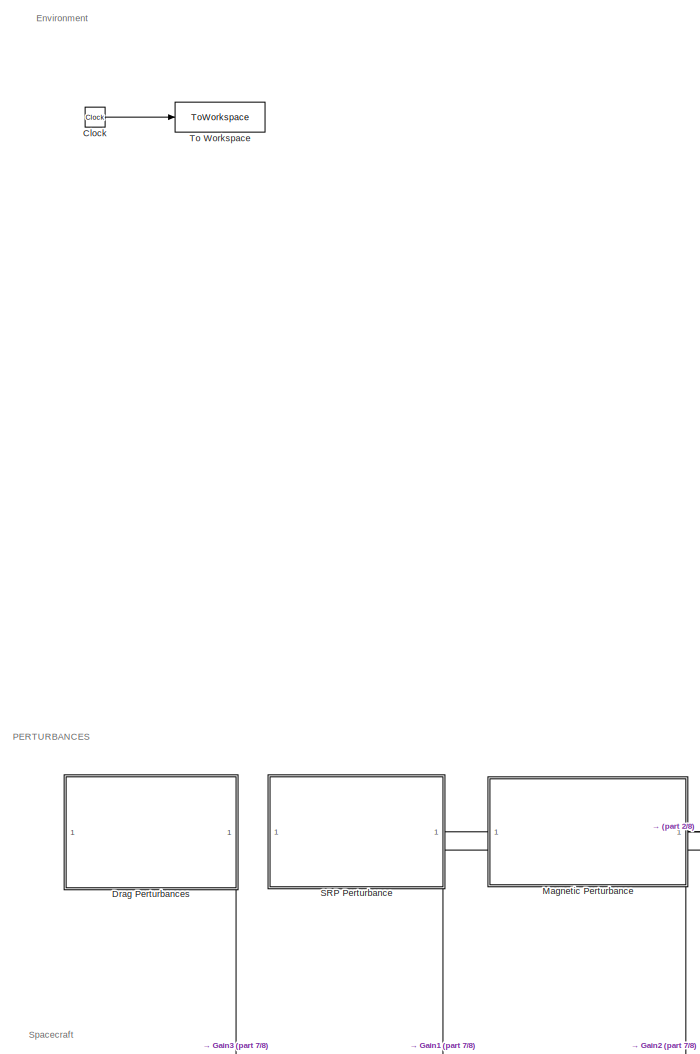
[diagram: root canvas - part 1/8, top left region]
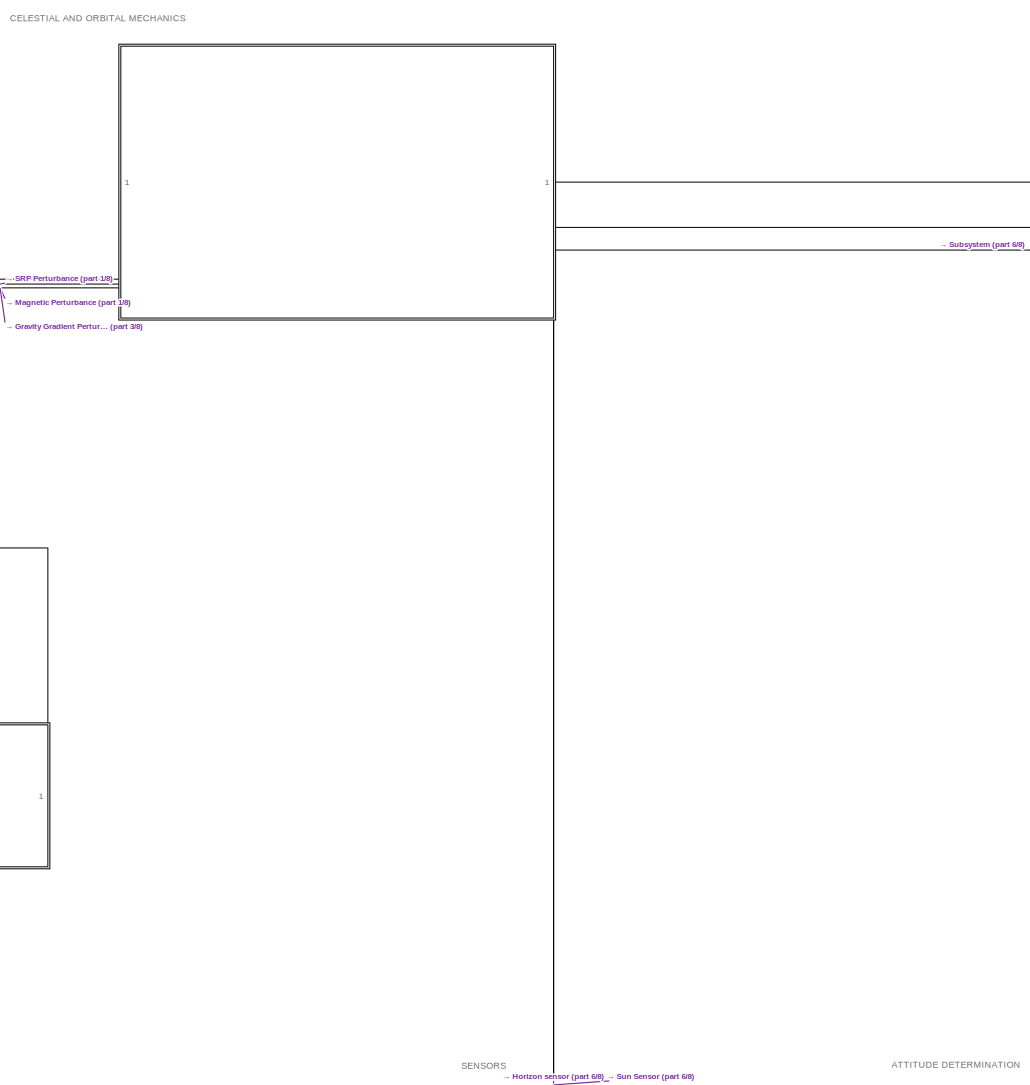
[diagram: root canvas - part 2/8, top center region]
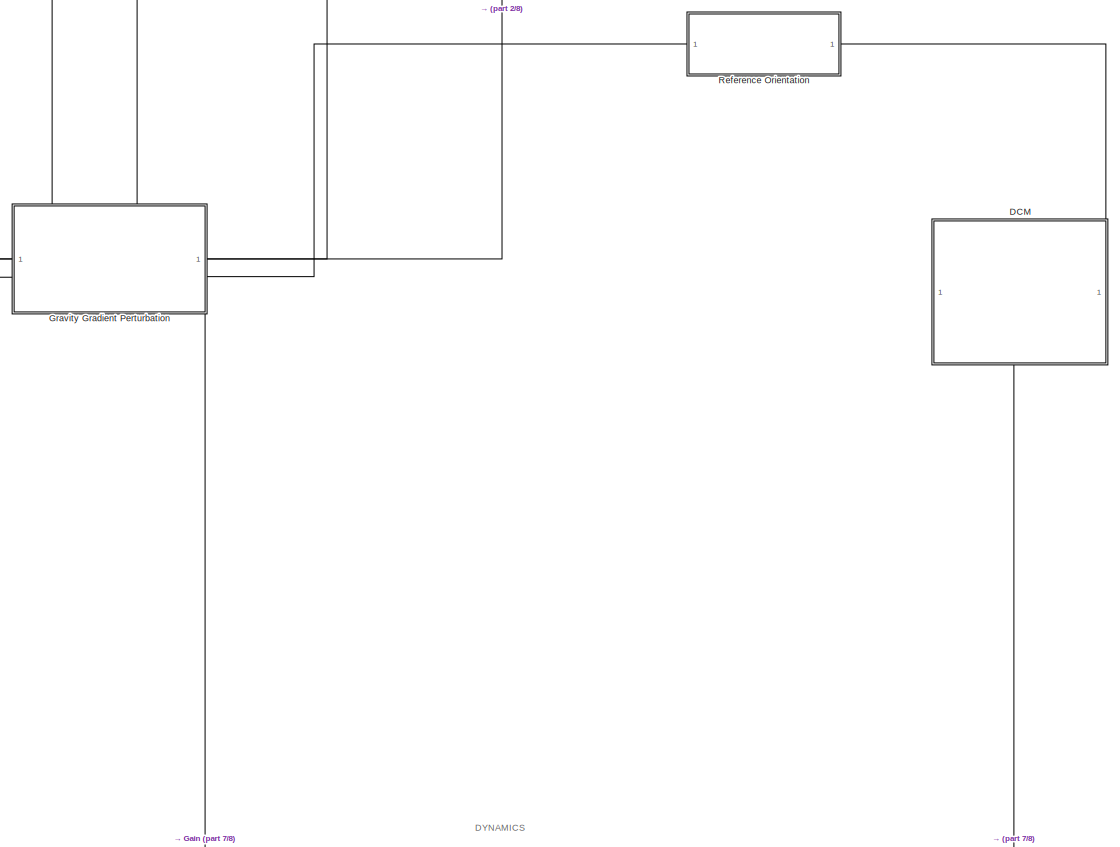
[diagram: root canvas - part 3/8, middle left region]
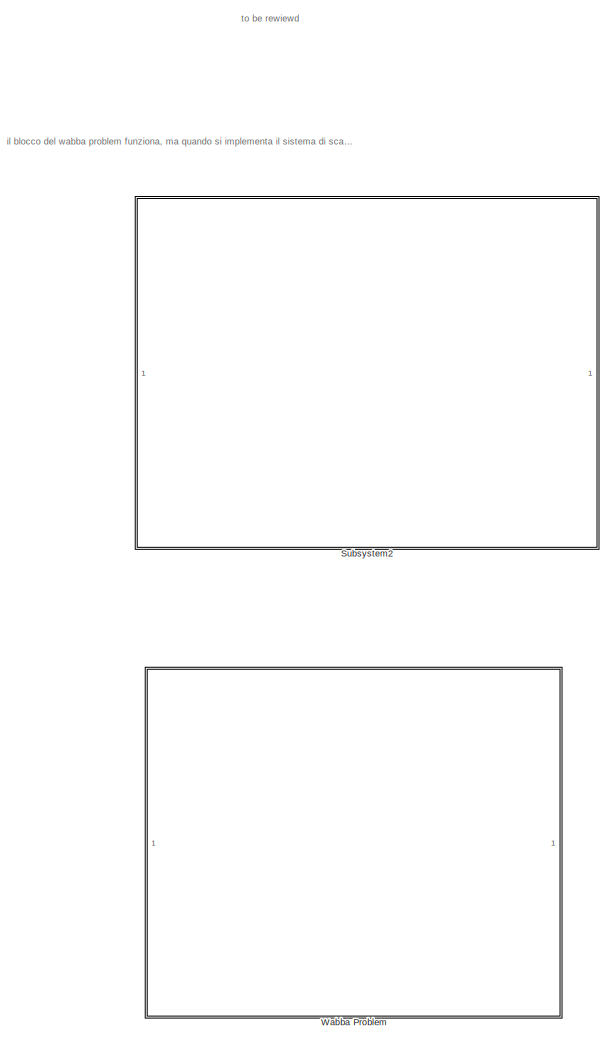
[diagram: root canvas - part 4/8, middle right region]
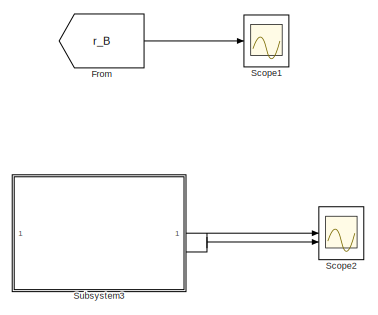
[diagram: root canvas - part 5/8, middle right region]
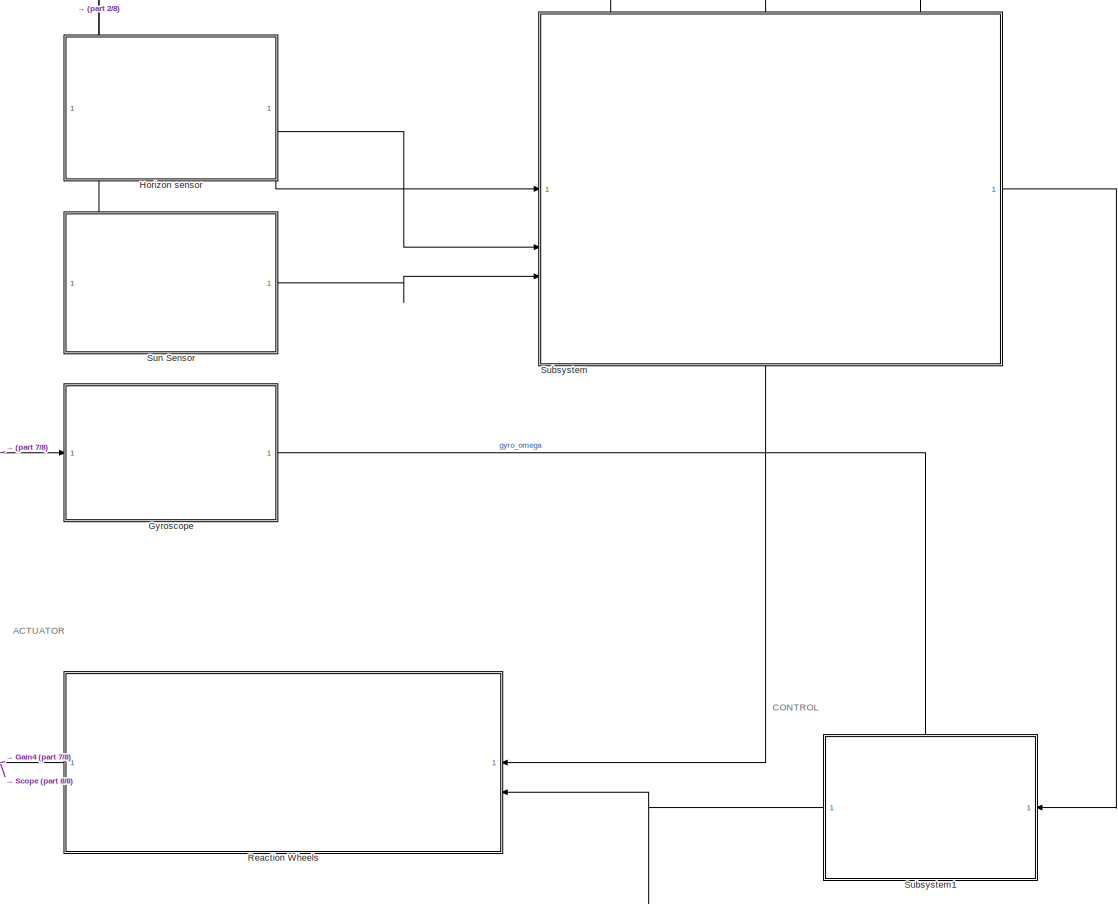
[diagram: root canvas - part 6/8, bottom center region]
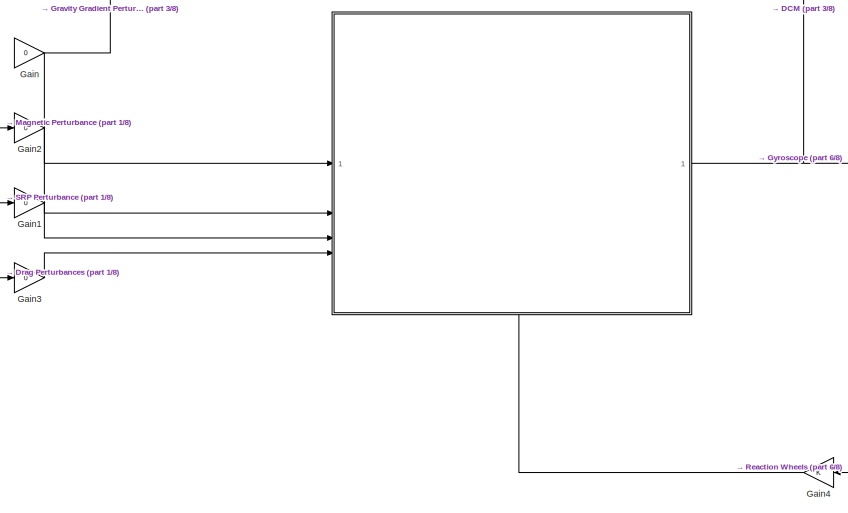
[diagram: root canvas - part 7/8, bottom left region]
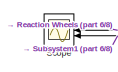
[diagram: root canvas - part 8/8, bottom center region]
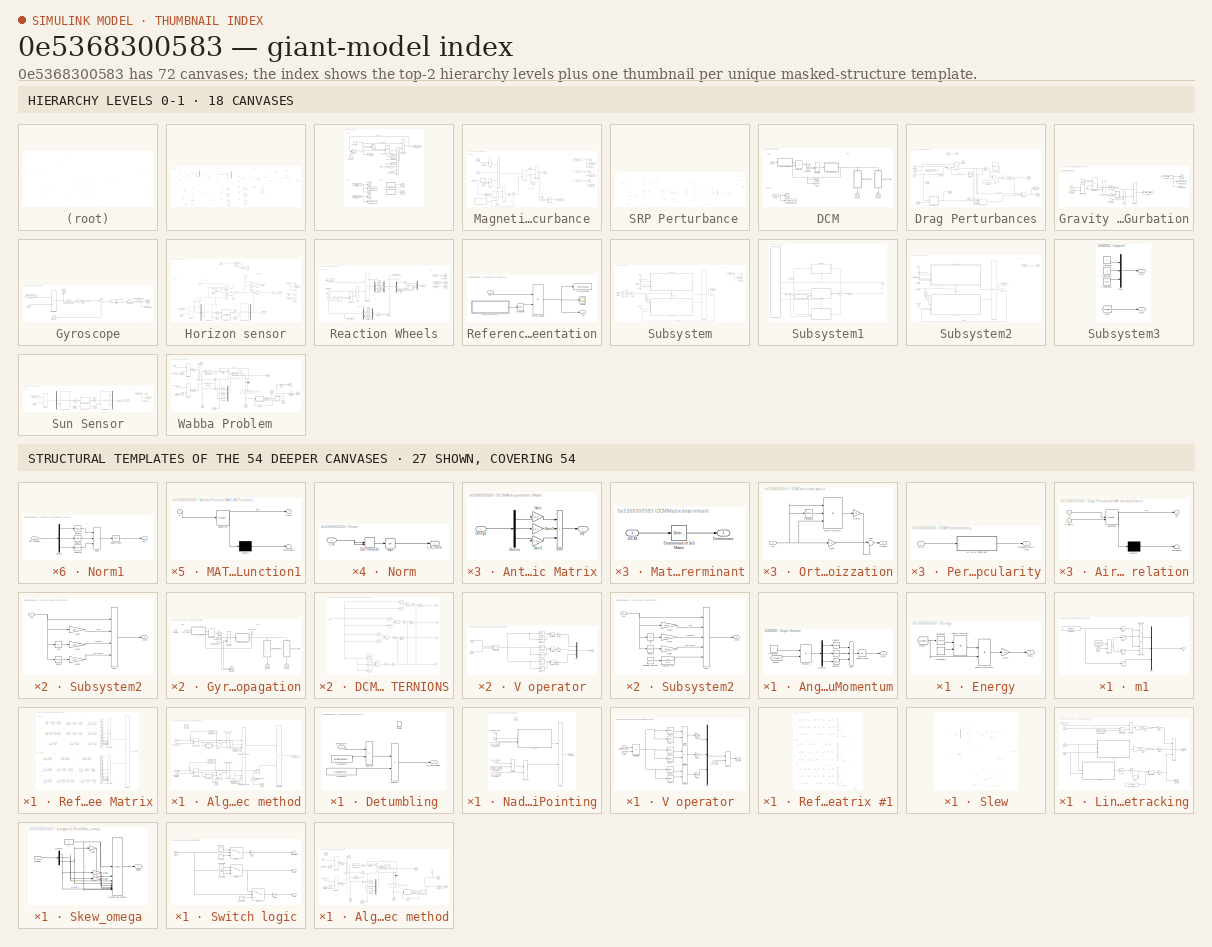
[diagram: thumbnail index - top-2 hierarchy levels (18 canvases) + 27 structural-template representatives of the remaining 54 canvases]
MODEL slx_0e5368300583
KIND model
CONFIG AbsTol = auto
CONFIG EnableMultiTasking = off
CONFIG FixedStep = 0.1
CONFIG MaxStep = auto
CONFIG MinStep = auto
CONFIG RelTol = 1e-3
CONFIG SampleTimeConstraint = Unconstrained
CONFIG SolverName = ode8
CONFIG StartTime = 0.0
CONFIG StopTime = 30000
BLOCK [SubSystem]  
  NameLocation = top
  PortSchema = {"entries":[{"content":{"sides":[{"content":{"connectorIds":["Out6","Out7","Out8"]},"type":"ConnectorPlacement.EquallySpacedRectSide","uuid":"e47ba2f2-6418-4f5c-a13b-aa90bdbafa09"},{"content":{"connectorIds":["Out1","Out2","Out3"],"side":"RIGHT"},"type":"ConnectorPlacement.EquallySpacedRectSide","uuid":"03bc7c76-661c-4c4e-84cf-6f77fb49d6cb"},{"content":{"connectorIds":[],"side":"TOP"},"type":"Conn...<+426ch>
BLOCK [SubSystem]   
  PortSchema = {"entries":[{"content":{"sides":[{"content":{"connectorIds":["In1","In2","In3","In4"]},"type":"ConnectorPlacement.EquallySpacedRectSide","uuid":"aab80584-571d-4a71-b544-a0aeb6cc6c33"},{"content":{"connectorIds":["Out1"],"side":"RIGHT"},"type":"ConnectorPlacement.EquallySpacedRectSide","uuid":"24834e7f-96cf-4bd4-9d1e-2a40a9329077"},{"content":{"connectorIds":[],"side":"TOP"},"type":"ConnectorPlacem...<+407ch>
BLOCK [Inport]   /AirDrag_Perturbation
  Port = 4
BLOCK [SubSystem]   /Angular  Momentum
BLOCK [Constant]   /Angular  Momentum/Constant1
  Value = I
BLOCK [Demux]   /Angular  Momentum/Demux
  Outputs = 3
BLOCK [From]   /Angular  Momentum/From2
  GotoTag = Omega
  TagVisibility = global
BLOCK [Outport]   /Angular  Momentum/Out1
BLOCK [Product]   /Angular  Momentum/Product1
  Multiplication = Matrix(*)
BLOCK [Math]   /Angular  Momentum/Square
  Operator = square
BLOCK [Sqrt]   /Angular  Momentum/Square Root
BLOCK [Math]   /Angular  Momentum/Square1
  Operator = square
BLOCK [Math]   /Angular  Momentum/Square2
  Operator = square
BLOCK [Sum]   /Angular  Momentum/Sum
  IconShape = rectangular
  Inputs = +++
BLOCK [Constant]   /Constant
  Value = I
BLOCK [Constant]   /Constant1
  NameLocation = right
  Value = w0
BLOCK [Inport]   /Control_Torque
  Port = 5
BLOCK [Reference]   /Cross Product  REF=matrix_library/Cross Product
  LibrarySourceBlock = simulink/Matrix\nOperations/Cross Product
  SourceBlock = matrix_library/Cross Product
  SourceType = CrossProduct
BLOCK [SubSystem]   /Energy
BLOCK [Constant]   /Energy/Constant1
  Value = I
BLOCK [From]   /Energy/From2
  GotoTag = Omega
  TagVisibility = global
BLOCK [Gain]   /Energy/Gain
  Gain = 0.5
BLOCK [Product]   /Energy/Matrix Multiply
  Multiplication = Matrix(*)
BLOCK [Product]   /Energy/Matrix Multiply1
  Multiplication = Matrix(*)
BLOCK [Outport]   /Energy/Out1
BLOCK [Math]   /Energy/Transpose
  Operator = transpose
BLOCK [From]   /From
  GotoTag = Omega
  TagVisibility = global
BLOCK [From]   /From1
  GotoTag = Omega_dot
BLOCK [Inport]   /GG_Perturbation
BLOCK [Goto]   /Goto
  GotoTag = Omega_dot
BLOCK [Goto]   /Goto1
  GotoTag = Omega
  TagVisibility = global
BLOCK [Integrator]   /Integrator1
  InitialCondition = w0
  InitialConditionSource = external
BLOCK [Inport]   /Magnetic_Perturbation
  Port = 2
BLOCK [Product]   /Matrix Divide
  Inputs = /*
  Multiplication = Matrix(*)
BLOCK [Outport]   /Omega
BLOCK [Product]   /Product
  Multiplication = Matrix(*)
BLOCK [Inport]   /SRP_Perturbation
  Port = 3
BLOCK [Scope]   /Scope
  Floating = off
  NumInputPorts = 1
  ScopeSpecificationString = Simulink.scopes.TimeScopeBlockCfg('CurrentConfiguration', extmgr.ConfigurationSet(extmgr.Configuration('Core','General UI',true),extmgr.Configuration('Core','Source UI',true),extmgr.Configuration('Sources','WiredSimulink',true),extmgr.Configuration('Visuals','Time Domain',true,'SerializedDisplays',{struct('MinYLimReal','-29.42179','MaxYLimReal','39.92669','YLabelReal','','MinYLimMag','0.00000','Ma...<+1498ch>
BLOCK [Scope]   /Scope1
  Floating = off
  NumInputPorts = 1
  ScopeSpecificationString = Simulink.scopes.TimeScopeBlockCfg('CurrentConfiguration', extmgr.ConfigurationSet(extmgr.Configuration('Core','General UI',true),extmgr.Configuration('Core','Source UI',true),extmgr.Configuration('Sources','WiredSimulink',true,'DataLoggingVariableName','ScopeData1'),extmgr.Configuration('Visuals','Time Domain',true,'SerializedDisplays',{struct('MinYLimReal','-1.00000','MaxYLimReal','1.00000','YLab...<+1404ch>
BLOCK [Scope]   /Scope2
  Floating = off
  NumInputPorts = 1
  ScopeSpecificationString = Simulink.scopes.TimeScopeBlockCfg('CurrentConfiguration', extmgr.ConfigurationSet(extmgr.Configuration('Core','General UI',true),extmgr.Configuration('Core','Source UI',true),extmgr.Configuration('Sources','WiredSimulink',true,'DataLoggingVariableName','ScopeData1'),extmgr.Configuration('Visuals','Time Domain',true,'SerializedDisplays',{struct('MinYLimReal','0.01898','MaxYLimReal','0.03898','YLabe...<+1407ch>
BLOCK [Scope]   /Scope3
  Floating = off
  NumInputPorts = 1
  ScopeSpecificationString = Simulink.scopes.TimeScopeBlockCfg('CurrentConfiguration', extmgr.ConfigurationSet(extmgr.Configuration('Core','General UI',true),extmgr.Configuration('Core','Source UI',true),extmgr.Configuration('Sources','WiredSimulink',true,'DataLoggingVariableName','ScopeData2'),extmgr.Configuration('Visuals','Time Domain',true,'SerializedDisplays',{struct('MinYLimReal','0.0015','MaxYLimReal','0.0035','YLabelR...<+1388ch>
BLOCK [Sum]   /Sum
  IconShape = rectangular
  Inputs = +-----
BLOCK [ToWorkspace]   /To Workspace
  FixptAsFi = on
  MaxDataPoints = inf
  SampleTime = -1
  SaveFormat = Timeseries
  VariableName = omega
BLOCK [ToWorkspace]   /To Workspace1
  FixptAsFi = on
  MaxDataPoints = inf
  SampleTime = -1
  SaveFormat = Timeseries
  VariableName = omega_dot
BLOCK [Clock]  /Clock
BLOCK [Constant]  /Constant
  Value = a
BLOCK [Constant]  /Constant1
  Value = (1-e^2)
BLOCK [Constant]  /Constant11
  Value = R_sun
BLOCK [Constant]  /Constant12
  Value = n_sun
BLOCK [Constant]  /Constant2
  Value = 3/2
BLOCK [Constant]  /Constant3
  Value = n
BLOCK [Constant]  /Constant4
BLOCK [Constant]  /Constant5
BLOCK [Constant]  /Constant6
  NameLocation = top
  Value = theta0
BLOCK [Trigonometry]  /Cos
  Operator = cos
BLOCK [Trigonometry]  /Cos1
  Operator = cos
BLOCK [Trigonometry]  /Cos2
  Operator = cos
BLOCK [Trigonometry]  /Cos3
  Operator = cos
BLOCK [Product]  /Divide1
  Inputs = /*
BLOCK [DotProduct]  /Dot Product
  OutDataTypeStr = Inherit: Inherit via internal rule
BLOCK [Outport]  /Earth Position - Body frame
  Port = 5
BLOCK [From]  /From
  GotoTag = DCM
  TagVisibility = global
BLOCK [From]  /From1
  GotoTag = Theta
  TagVisibility = global
BLOCK [From]  /From19
  GotoTag = S_B
  TagVisibility = global
BLOCK [From]  /From2
  GotoTag = Theta_dot
BLOCK [From]  /From3
  GotoTag = r_N
  TagVisibility = global
BLOCK [From]  /From4
  GotoTag = r_B
  TagVisibility = global
BLOCK [From]  /From5
  GotoTag = DCM
  TagVisibility = global
BLOCK [From]  /From6
  GotoTag = S_N
  TagVisibility = global
BLOCK [From]  /From8
  GotoTag = Eclipse_flag
BLOCK [Outport]  /GPS Position 1
  Port = 2
BLOCK [Outport]  /GPS Position2
  Port = 8
BLOCK [Gain]  /Gain
  Gain = (1-e^2)
BLOCK [Gain]  /Gain1
  Gain = e
BLOCK [Gain]  /Gain2
  Gain = e
BLOCK [Gain]  /Gain3
  Gain = cos(i)
BLOCK [Gain]  /Gain4
  Gain = sin(i)
BLOCK [Gain]  /Gain5
  Gain = cos(epsilon)
BLOCK [Gain]  /Gain6
  Gain = sin(epsilon)
BLOCK [Goto]  /Goto
  GotoTag = Theta
  TagVisibility = global
BLOCK [Goto]  /Goto1
  GotoTag = r_B
  TagVisibility = global
BLOCK [Goto]  /Goto2
  GotoTag = r_N
  NameLocation = left
  TagVisibility = global
BLOCK [Goto]  /Goto3
  GotoTag = Theta_dot
BLOCK [Goto]  /Goto4
  GotoTag = S_B
  TagVisibility = global
BLOCK [Goto]  /Goto5
  GotoTag = S_N
  TagVisibility = global
BLOCK [Goto]  /Goto6
  GotoTag = Eclipse_flag
BLOCK [Integrator]  /Integrator
  InitialConditionSource = external
  NameLocation = top
  WrappedStateLowerValue = 0
  WrappedStateUpperValue = 2*pi
BLOCK [Product]  /Matrix Multiply
  Multiplication = Matrix(*)
BLOCK [Product]  /Matrix Multiply4
  Multiplication = Matrix(*)
BLOCK [Mux]  /Mux
  DisplayOption = bar
  Inputs = 3
BLOCK [Mux]  /Mux1
  DisplayOption = bar
  Inputs = 3
BLOCK [SubSystem]  /Norm
BLOCK [DotProduct]  /Norm/Dot Product1
  OutDataTypeStr = Inherit: Inherit via internal rule
BLOCK [Sqrt]  /Norm/Sqrt
BLOCK [Inport]  /Norm/r_N
BLOCK [Outport]  /Norm/r_N_norm
BLOCK [Reference]  /Normalize Vector  REF=vrlib/Utilities/Normalize Vector
  SourceBlock = vrlib/Utilities/Normalize Vector
  SourceType = Normalize Vector
BLOCK [Constant]  /One
  OutDataTypeStr = Inherit: Inherit via back propagation
  Value = 0
BLOCK [Math]  /Power
  Operator = pow
BLOCK [Product]  /Product
  Inputs = */
BLOCK [Product]  /Product1
  Inputs = **/
BLOCK [Product]  /Product2
BLOCK [Product]  /Product3
BLOCK [Product]  /Product6
BLOCK [Product]  /Product7
BLOCK [Scope]  /Scope
  Floating = off
  NumInputPorts = 1
  ScopeSpecificationString = Simulink.scopes.TimeScopeBlockCfg('CurrentConfiguration', extmgr.ConfigurationSet(extmgr.Configuration('Core','General UI',true),extmgr.Configuration('Core','Source UI',true),extmgr.Configuration('Sources','WiredSimulink',true,'DataLoggingVariableName','ScopeData5'),extmgr.Configuration('Visuals','Time Domain',true,'SerializedDisplays',{struct('MinYLimReal','-1.39413','MaxYLimReal','12.54716','YLa...<+1736ch>
BLOCK [Scope]  /Scope1
  Floating = off
  NumInputPorts = 1
  ScopeSpecificationString = Simulink.scopes.TimeScopeBlockCfg('CurrentConfiguration', extmgr.ConfigurationSet(extmgr.Configuration('Core','General UI',true),extmgr.Configuration('Core','Source UI',true),extmgr.Configuration('Sources','WiredSimulink',true,'DataLoggingVariableName','ScopeData6'),extmgr.Configuration('Visuals','Time Domain',true,'SerializedDisplays',{struct('MinYLimReal','0.001826','MaxYLimReal','0.001838','YLa...<+1376ch>
BLOCK [Scope]  /Scope2
  Floating = off
  NumInputPorts = 1
  ScopeSpecificationString = Simulink.scopes.TimeScopeBlockCfg('CurrentConfiguration', extmgr.ConfigurationSet(extmgr.Configuration('Core','General UI',true),extmgr.Configuration('Core','Source UI',true),extmgr.Configuration('Sources','WiredSimulink',true,'DataLoggingVariableName','ScopeData7'),extmgr.Configuration('Visuals','Time Domain',true,'SerializedDisplays',{struct('MinYLimReal','-20096628.68905','MaxYLimReal','2042295...<+1821ch>
BLOCK [Scope]  /Scope3
  Floating = off
  NumInputPorts = 1
  ScopeSpecificationString = Simulink.scopes.TimeScopeBlockCfg('CurrentConfiguration', extmgr.ConfigurationSet(extmgr.Configuration('Core','General UI',true),extmgr.Configuration('Core','Source UI',true),extmgr.Configuration('Sources','WiredSimulink',true,'DataLoggingVariableName','ScopeData8'),extmgr.Configuration('Visuals','Time Domain',true,'SerializedDisplays',{struct('MinYLimReal','-20038233.5807','MaxYLimReal','19897402...<+1607ch>
BLOCK [Scope]  /Scope4
  Floating = off
  NumInputPorts = 1
  ScopeSpecificationString = Simulink.scopes.TimeScopeBlockCfg('CurrentConfiguration', extmgr.ConfigurationSet(extmgr.Configuration('Core','General UI',true),extmgr.Configuration('Core','Source UI',true),extmgr.Configuration('Sources','WiredSimulink',true,'DataLoggingVariableName','ScopeData4'),extmgr.Configuration('Visuals','Time Domain',true),extmgr.Configuration('Tools','Plot Navigation',true),extmgr.Configuration('Tools',...<+40ch>
BLOCK [Scope]  /Scope5
  Floating = off
  NumInputPorts = 1
  ScopeSpecificationString = Simulink.scopes.TimeScopeBlockCfg('CurrentConfiguration', extmgr.ConfigurationSet(extmgr.Configuration('Core','General UI',true),extmgr.Configuration('Core','Source UI',true),extmgr.Configuration('Sources','WiredSimulink',true,'DataLoggingVariableName','ScopeData4'),extmgr.Configuration('Visuals','Time Domain',true,'SerializedDisplays',{struct('MinYLimReal','2360993.491','MaxYLimReal','2383559.925...<+1481ch>
BLOCK [Scope]  /Scope6
  Floating = off
  NumInputPorts = 1
  ScopeSpecificationString = Simulink.scopes.TimeScopeBlockCfg
BLOCK [Trigonometry]  /Sin
BLOCK [Trigonometry]  /Sin1
  NameLocation = left
BLOCK [Math]  /Square
  Operator = square
BLOCK [SubSystem]  /Subsystem
BLOCK [DotProduct]  /Subsystem/Dot Product2
  OutDataTypeStr = Inherit: Inherit via internal rule
BLOCK [Inport]  /Subsystem/In1
BLOCK [Outport]  /Subsystem/Out1
BLOCK [Sqrt]  /Subsystem/Sqrt1
BLOCK [Sum]  /Sum
  Inputs = |++
BLOCK [Sum]  /Sum1
  Inputs = |++
BLOCK [Sum]  /Sum2
  Inputs = +-|
BLOCK [Outport]  /Sun position - Body frame
  Port = 4
BLOCK [Outport]  /Sun position - Body frame 2
  Port = 7
BLOCK [Outport]  /Sun position - Inertial frame 1
BLOCK [Switch]  /Switch
  Criteria = u2 > Threshold
  InputSameDT = off
  SaturateOnIntegerOverflow = off
BLOCK [Switch]  /Switch1
  Criteria = u2 > Threshold
  InputSameDT = off
  SaturateOnIntegerOverflow = off
  Threshold = R_Earth
BLOCK [ToWorkspace]  /To Workspace
  FixptAsFi = on
  MaxDataPoints = inf
  SampleTime = -1
  VariableName = Theta
BLOCK [ToWorkspace]  /To Workspace1
  FixptAsFi = on
  MaxDataPoints = inf
  SampleTime = -1
  VariableName = Theta_dot
BLOCK [ToWorkspace]  /To Workspace2
  FixptAsFi = on
  MaxDataPoints = inf
  SampleTime = -1
  VariableName = r_N
BLOCK [ToWorkspace]  /To Workspace3
  FixptAsFi = on
  MaxDataPoints = inf
  SampleTime = -1
  VariableName = r_B
BLOCK [ToWorkspace]  /To Workspace4
  FixptAsFi = on
  MaxDataPoints = inf
  SampleTime = -1
  VariableName = S_B
BLOCK [ToWorkspace]  /To Workspace5
  FixptAsFi = on
  MaxDataPoints = inf
  SampleTime = -1
  VariableName = S_N
BLOCK [ToWorkspace]  /To Workspace6
  FixptAsFi = on
  MaxDataPoints = inf
  SampleTime = -1
  VariableName = Eclipse_flag
BLOCK [Constant]  /Zero
  OutDataTypeStr = Inherit: Inherit via back propagation
BLOCK [Outport]  /eclipse_flag_1
  Port = 3
BLOCK [Outport]  /eclipse_flag_2
  Port = 6
BLOCK [SubSystem]  Magnetic Perturbance 
  NameLocation = top
  PortSchema = {"entries":[{"content":{"sides":[{"content":{"connectorIds":[]},"type":"ConnectorPlacement.EquallySpacedRectSide","uuid":"f02812cb-12c0-4612-9b94-50dc5ff6800f"},{"content":{"connectorIds":[],"side":"RIGHT"},"type":"ConnectorPlacement.EquallySpacedRectSide","uuid":"f399267d-7809-425c-9d5e-8a09b98f84d1"},{"content":{"connectorIds":["In1"],"side":"TOP"},"type":"ConnectorPlacement.EquallySpacedRectSid...<+384ch>
BLOCK [Constant]  Magnetic Perturbance /Constant4
  Value = R_Earth
BLOCK [Constant]  Magnetic Perturbance /Constant5
  Value = 3
BLOCK [Constant]  Magnetic Perturbance /Constant6
  Value = 3
BLOCK [Constant]  Magnetic Perturbance /Constant7
  Value = j_B
BLOCK [Constant]  Magnetic Perturbance /Constant8
  Value = H0
BLOCK [Reference]  Magnetic Perturbance /Cross Product1  REF=matrix_library/Cross Product
  LibrarySourceBlock = simulink/Matrix\nOperations/Cross Product
  SourceBlock = matrix_library/Cross Product
  SourceType = CrossProduct
BLOCK [DotProduct]  Magnetic Perturbance /Dot Product1
  OutDataTypeStr = Inherit: Inherit via internal rule
BLOCK [From]  Magnetic Perturbance /From1
  GotoTag = DCM
  TagVisibility = global
BLOCK [From]  Magnetic Perturbance /From3
  GotoTag = Magnetic_Perturbation
  TagVisibility = global
BLOCK [From]  Magnetic Perturbance /From4
  GotoTag = b_N
BLOCK [From]  Magnetic Perturbance /From5
  GotoTag = b_B
BLOCK [Inport]  Magnetic Perturbance /GPS Position1
BLOCK [Gain]  Magnetic Perturbance /Gain2
  Gain = 3
BLOCK [Goto]  Magnetic Perturbance /Goto3
  GotoTag = Magnetic_Perturbation
  TagVisibility = global
BLOCK [Goto]  Magnetic Perturbance /Goto4
  GotoTag = b_B
BLOCK [Goto]  Magnetic Perturbance /Goto5
  GotoTag = b_N
BLOCK [Outport]  Magnetic Perturbance /Magnetic Perturbation
BLOCK [Product]  Magnetic Perturbance /Matrix Multiply1
  Multiplication = Matrix(*)
BLOCK [SubSystem]  Magnetic Perturbance /Norm1
BLOCK [Demux]  Magnetic Perturbance /Norm1/Demux
  Outputs = 3
BLOCK [Inport]  Magnetic Perturbance /Norm1/GPS Position2
BLOCK [Outport]  Magnetic Perturbance /Norm1/Out1
BLOCK [Math]  Magnetic Perturbance /Norm1/Square
  Operator = square
BLOCK [Sqrt]  Magnetic Perturbance /Norm1/Square Root
BLOCK [Math]  Magnetic Perturbance /Norm1/Square1
  Operator = square
BLOCK [Math]  Magnetic Perturbance /Norm1/Square2
  Operator = square
BLOCK [Sum]  Magnetic Perturbance /Norm1/Sum
  IconShape = rectangular
  Inputs = +++
BLOCK [Reference]  Magnetic Perturbance /Normalize Vector1  REF=vrlib/Utilities/Normalize Vector
  SourceBlock = vrlib/Utilities/Normalize Vector
  SourceType = Normalize Vector
BLOCK [Math]  Magnetic Perturbance /Power2
  Operator = pow
BLOCK [Math]  Magnetic Perturbance /Power3
  Operator = pow
BLOCK [Product]  Magnetic Perturbance /Product3
  Inputs = **/
BLOCK [Product]  Magnetic Perturbance /Product4
  Multiplication = Matrix(*)
BLOCK [Product]  Magnetic Perturbance /Product5
BLOCK [Scope]  Magnetic Perturbance /Scope
  Floating = off
  NumInputPorts = 1
  ScopeSpecificationString = Simulink.scopes.TimeScopeBlockCfg('CurrentConfiguration', extmgr.ConfigurationSet(extmgr.Configuration('Core','General UI',true),extmgr.Configuration('Core','Source UI',true),extmgr.Configuration('Sources','WiredSimulink',true,'DataLoggingVariableName','ScopeData1'),extmgr.Configuration('Visuals','Time Domain',true,'SerializedDisplays',{struct('MinYLimReal','-0.0000001','MaxYLimReal','0.00000004',...<+1487ch>
BLOCK [Scope]  Magnetic Perturbance /Scope1
  Floating = off
  NumInputPorts = 1
  ScopeSpecificationString = Simulink.scopes.TimeScopeBlockCfg('CurrentConfiguration', extmgr.ConfigurationSet(extmgr.Configuration('Core','General UI',true),extmgr.Configuration('Core','Source UI',true),extmgr.Configuration('Sources','WiredSimulink',true,'DataLoggingVariableName','ScopeData2'),extmgr.Configuration('Visuals','Time Domain',true,'SerializedDisplays',{struct('MinYLimReal','-0.000029','MaxYLimReal','0.00002','YLa...<+1421ch>
BLOCK [Scope]  Magnetic Perturbance /Scope2
  Floating = off
  NumInputPorts = 1
  ScopeSpecificationString = Simulink.scopes.TimeScopeBlockCfg('CurrentConfiguration', extmgr.ConfigurationSet(extmgr.Configuration('Core','General UI',true),extmgr.Configuration('Core','Source UI',true),extmgr.Configuration('Sources','WiredSimulink',true,'DataLoggingVariableName','ScopeData3'),extmgr.Configuration('Visuals','Time Domain',true,'SerializedDisplays',{struct('MinYLimReal','-0.0000024','MaxYLimReal','0.0000024','...<+1431ch>
BLOCK [Sum]  Magnetic Perturbance /Sum1
  Inputs = |+-
BLOCK [ToWorkspace]  Magnetic Perturbance /To Workspace
  FixptAsFi = on
  MaxDataPoints = inf
  SampleTime = -1
  VariableName = Magnetic_Perturbation
BLOCK [ToWorkspace]  Magnetic Perturbance /To Workspace1
  FixptAsFi = on
  MaxDataPoints = inf
  SampleTime = -1
  SaveFormat = Timeseries
  VariableName = magnetic_field_N
BLOCK [ToWorkspace]  Magnetic Perturbance /To Workspace2
  FixptAsFi = on
  MaxDataPoints = inf
  SampleTime = -1
  SaveFormat = Timeseries
  VariableName = Magnetic_field_B
BLOCK [SubSystem]  Magnetic Perturbance /m1
BLOCK [Clock]  Magnetic Perturbance /m1/Clock
BLOCK [Constant]  Magnetic Perturbance /m1/Constant
  Value = Theta_m
BLOCK [Constant]  Magnetic Perturbance /m1/Constant1
  Value = w_Earth
BLOCK [Trigonometry]  Magnetic Perturbance /m1/Cos
  Operator = cos
BLOCK [Trigonometry]  Magnetic Perturbance /m1/Cos1
  Operator = cos
BLOCK [Mux]  Magnetic Perturbance /m1/Mux
  DisplayOption = bar
  Inputs = 3
BLOCK [Product]  Magnetic Perturbance /m1/Product
BLOCK [Product]  Magnetic Perturbance /m1/Product1
BLOCK [Product]  Magnetic Perturbance /m1/Product2
BLOCK [Trigonometry]  Magnetic Perturbance /m1/Sin
BLOCK [Trigonometry]  Magnetic Perturbance /m1/Sin1
BLOCK [Outport]  Magnetic Perturbance /m1/m
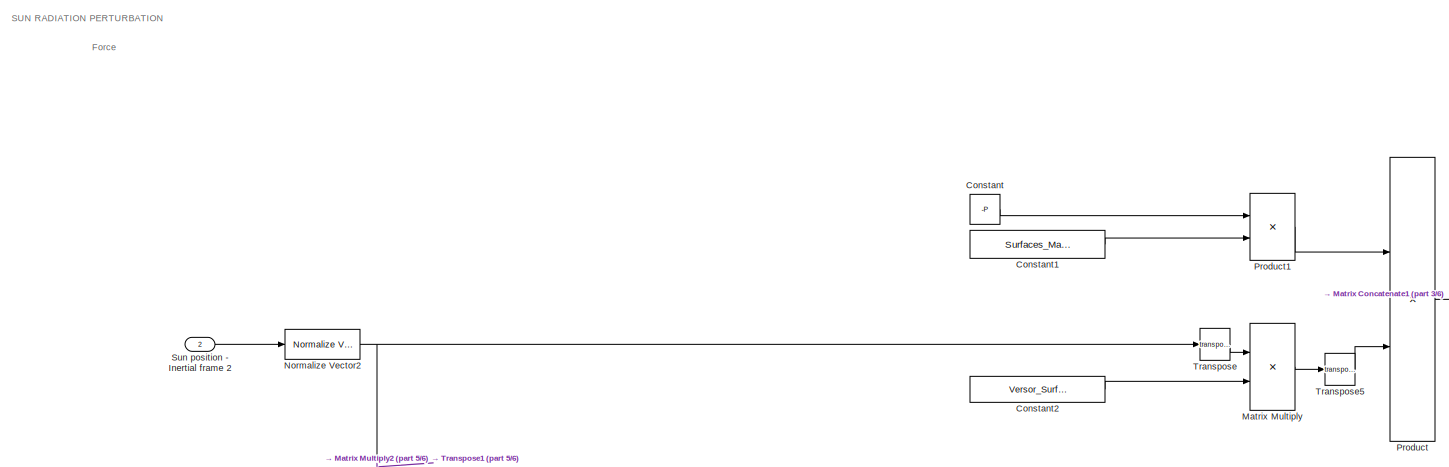
[diagram:  SRP Perturbance - part 1/6, top left region]
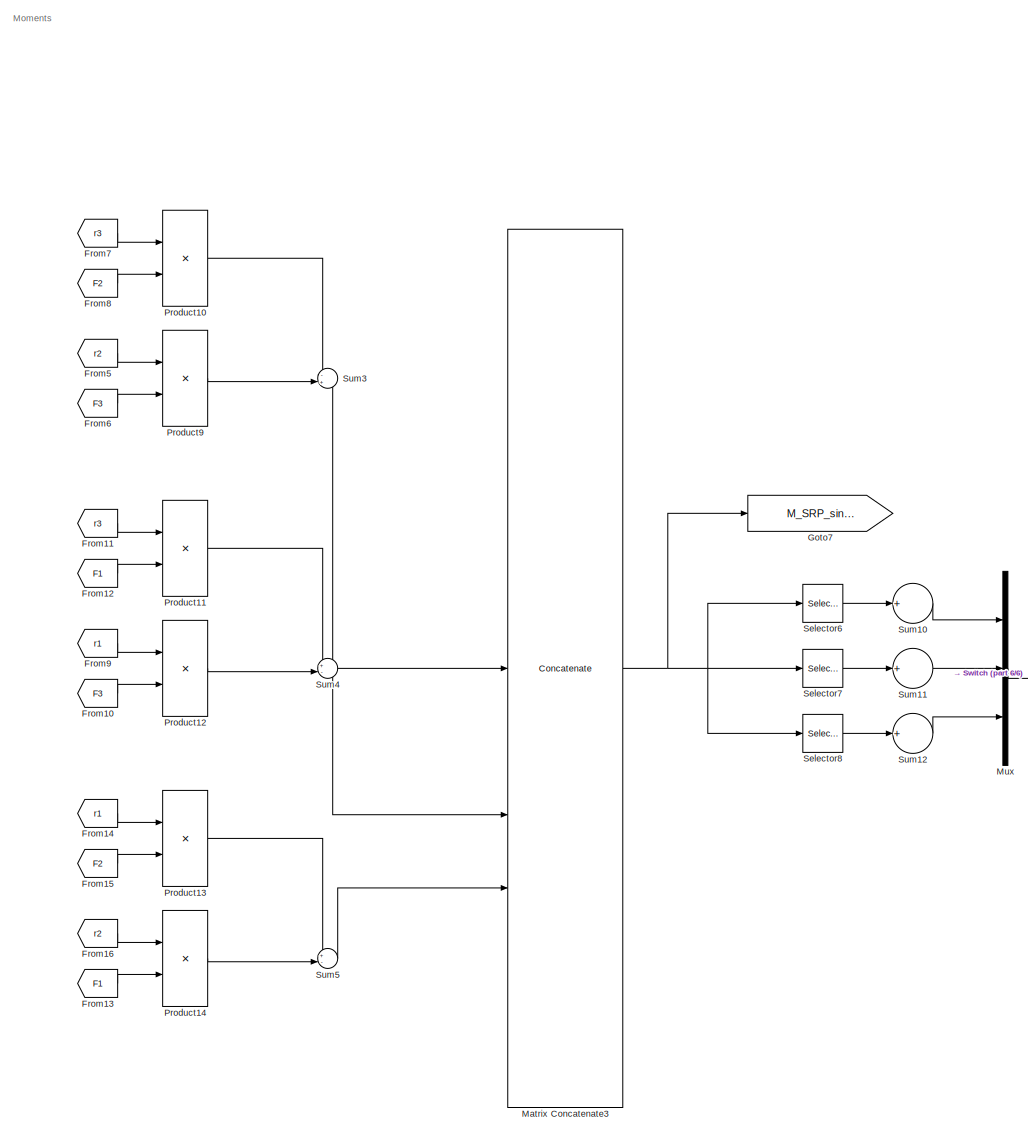
[diagram:  SRP Perturbance - part 2/6, right side, full height]
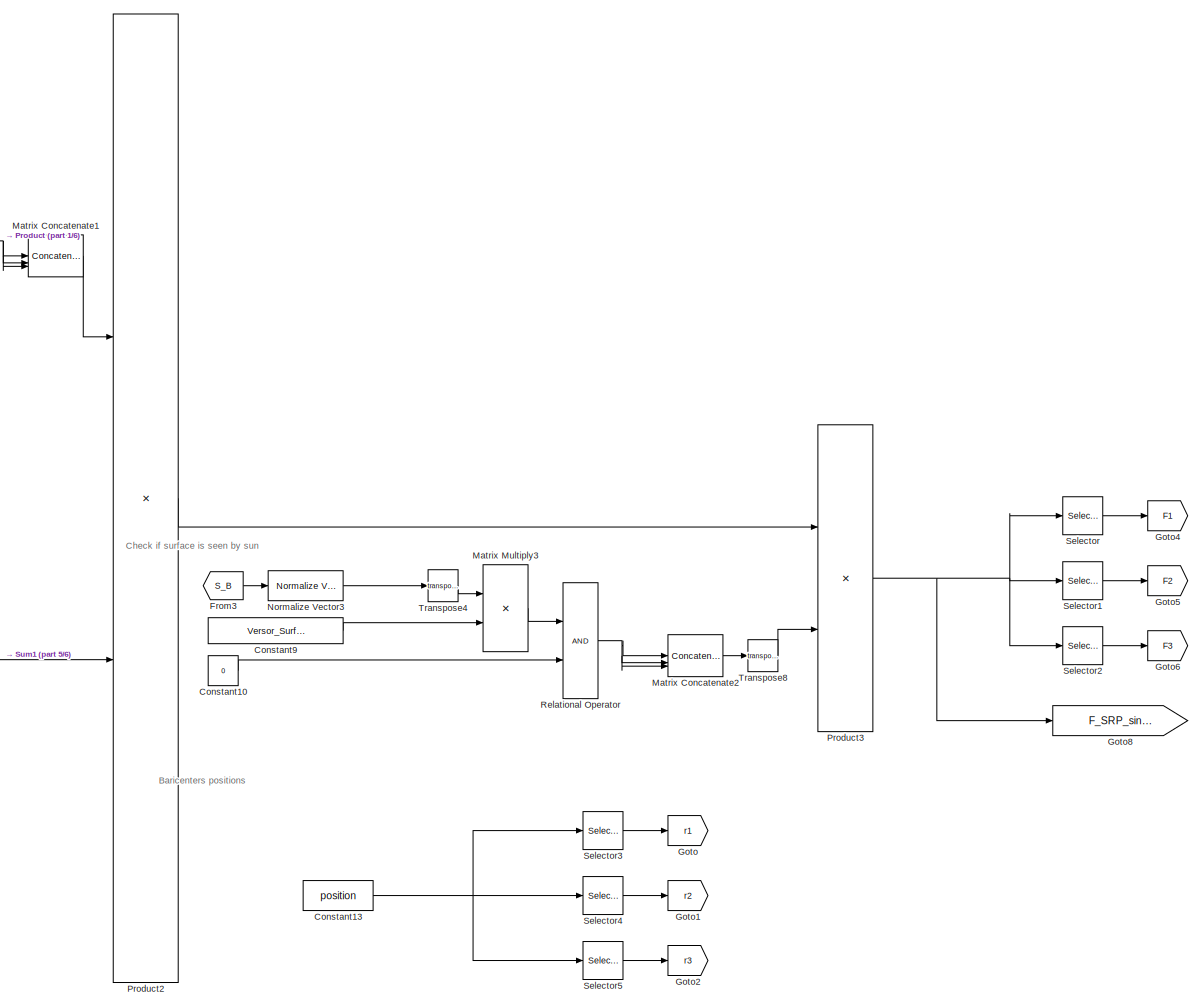
[diagram:  SRP Perturbance - part 3/6, center side, full height]
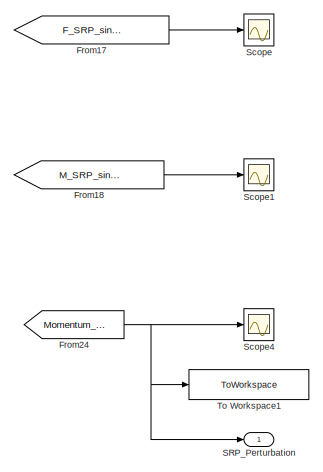
[diagram:  SRP Perturbance - part 4/6, top right region]
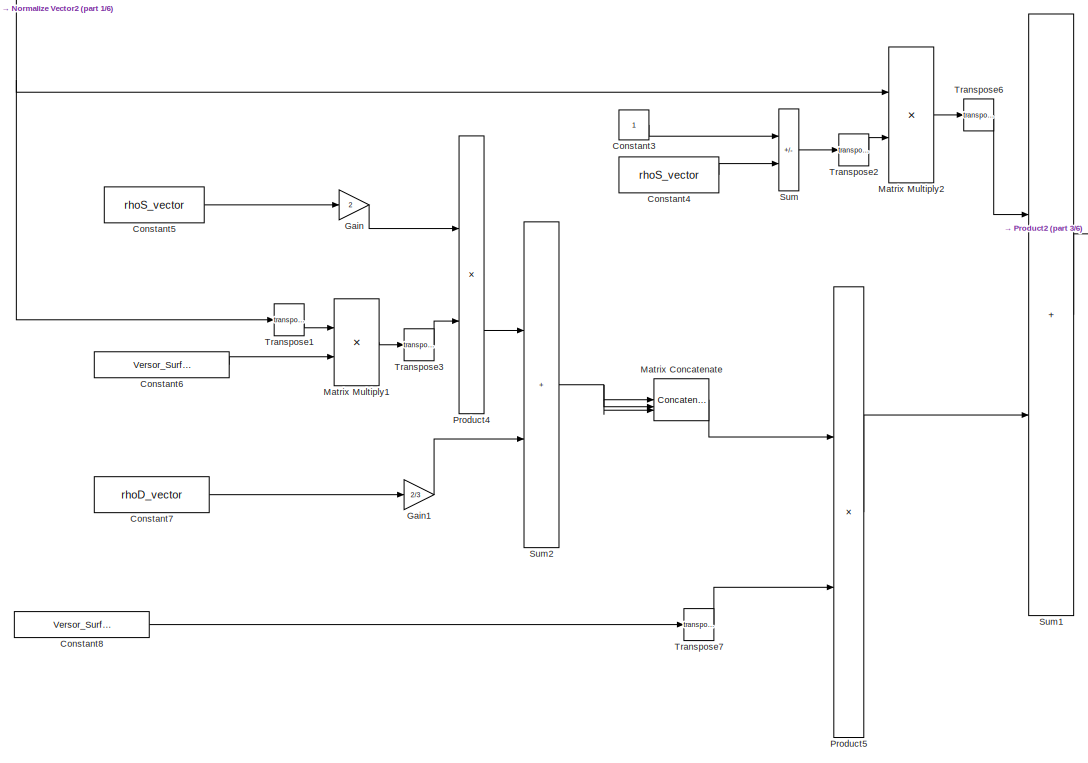
[diagram:  SRP Perturbance - part 5/6, bottom left region]
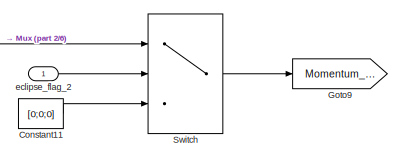
[diagram:  SRP Perturbance - part 6/6, middle right region]
BLOCK [SubSystem]  SRP Perturbance
  NameLocation = top
  PortSchema = {"entries":[{"content":{"sides":[{"content":{"connectorIds":[]},"type":"ConnectorPlacement.EquallySpacedRectSide","uuid":"e985e879-37b8-4f0c-a60b-74d5e4b5102c"},{"content":{"connectorIds":[],"side":"RIGHT"},"type":"ConnectorPlacement.EquallySpacedRectSide","uuid":"1f0cb419-685e-4dd3-ab14-45869a41b9c2"},{"content":{"connectorIds":["In1","In2"],"side":"TOP"},"type":"ConnectorPlacement.EquallySpacedR...<+390ch>
BLOCK [Constant]  SRP Perturbance/Constant
  Value = -P
BLOCK [Constant]  SRP Perturbance/Constant1
  Value = Surfaces_Matrix
BLOCK [Constant]  SRP Perturbance/Constant10
  Value = 0
BLOCK [Constant]  SRP Perturbance/Constant11
  Value = [0;0;0]
BLOCK [Constant]  SRP Perturbance/Constant13
  Value = position
BLOCK [Constant]  SRP Perturbance/Constant2
  Value = Versor_Surfaces_Matrix
BLOCK [Constant]  SRP Perturbance/Constant3
BLOCK [Constant]  SRP Perturbance/Constant4
  Value = rhoS_vector
BLOCK [Constant]  SRP Perturbance/Constant5
  Value = rhoS_vector
BLOCK [Constant]  SRP Perturbance/Constant6
  Value = Versor_Surfaces_Matrix
BLOCK [Constant]  SRP Perturbance/Constant7
  Value = rhoD_vector
BLOCK [Constant]  SRP Perturbance/Constant8
  Value = Versor_Surfaces_Matrix
BLOCK [Constant]  SRP Perturbance/Constant9
  Value = Versor_Surfaces_Matrix
BLOCK [From]  SRP Perturbance/From10
  GotoTag = F3
BLOCK [From]  SRP Perturbance/From11
  GotoTag = r3
BLOCK [From]  SRP Perturbance/From12
  GotoTag = F1
BLOCK [From]  SRP Perturbance/From13
  GotoTag = F1
BLOCK [From]  SRP Perturbance/From14
  GotoTag = r1
BLOCK [From]  SRP Perturbance/From15
  GotoTag = F2
BLOCK [From]  SRP Perturbance/From16
  GotoTag = r2
BLOCK [From]  SRP Perturbance/From17
  GotoTag = F_SRP_single_elements
BLOCK [From]  SRP Perturbance/From18
  GotoTag = M_SRP_single_elements
BLOCK [From]  SRP Perturbance/From24
  GotoTag = Momentum_SRP
  TagVisibility = global
BLOCK [From]  SRP Perturbance/From3
  GotoTag = S_B
  TagVisibility = global
BLOCK [From]  SRP Perturbance/From5
  GotoTag = r2
BLOCK [From]  SRP Perturbance/From6
  GotoTag = F3
BLOCK [From]  SRP Perturbance/From7
  GotoTag = r3
BLOCK [From]  SRP Perturbance/From8
  GotoTag = F2
BLOCK [From]  SRP Perturbance/From9
  GotoTag = r1
BLOCK [Gain]  SRP Perturbance/Gain
  Gain = 2
BLOCK [Gain]  SRP Perturbance/Gain1
  Gain = 2/3
BLOCK [Goto]  SRP Perturbance/Goto
  GotoTag = r1
BLOCK [Goto]  SRP Perturbance/Goto1
  GotoTag = r2
BLOCK [Goto]  SRP Perturbance/Goto2
  GotoTag = r3
BLOCK [Goto]  SRP Perturbance/Goto4
  GotoTag = F1
BLOCK [Goto]  SRP Perturbance/Goto5
  GotoTag = F2
BLOCK [Goto]  SRP Perturbance/Goto6
  GotoTag = F3
BLOCK [Goto]  SRP Perturbance/Goto7
  GotoTag = M_SRP_single_elements
BLOCK [Goto]  SRP Perturbance/Goto8
  GotoTag = F_SRP_single_elements
BLOCK [Goto]  SRP Perturbance/Goto9
  GotoTag = Momentum_SRP
  TagVisibility = global
BLOCK [Concatenate]  SRP Perturbance/Matrix Concatenate
  ConcatenateDimension = 2
  Mode = Multidimensional array
  NumInputs = 3
BLOCK [Concatenate]  SRP Perturbance/Matrix Concatenate1
  ConcatenateDimension = 2
  Mode = Multidimensional array
  NumInputs = 3
BLOCK [Concatenate]  SRP Perturbance/Matrix Concatenate2
  Mode = Multidimensional array
  NumInputs = 3
BLOCK [Concatenate]  SRP Perturbance/Matrix Concatenate3
  ConcatenateDimension = 2
  Mode = Multidimensional array
  NumInputs = 3
BLOCK [Product]  SRP Perturbance/Matrix Multiply
  Multiplication = Matrix(*)
BLOCK [Product]  SRP Perturbance/Matrix Multiply1
  Multiplication = Matrix(*)
BLOCK [Product]  SRP Perturbance/Matrix Multiply2
  Multiplication = Matrix(*)
BLOCK [Product]  SRP Perturbance/Matrix Multiply3
  Multiplication = Matrix(*)
BLOCK [Mux]  SRP Perturbance/Mux
  DisplayOption = bar
  Inputs = 3
BLOCK [Reference]  SRP Perturbance/Normalize Vector2  REF=vrlib/Utilities/Normalize Vector
  SourceBlock = vrlib/Utilities/Normalize Vector
  SourceType = Normalize Vector
BLOCK [Reference]  SRP Perturbance/Normalize Vector3  REF=vrlib/Utilities/Normalize Vector
  SourceBlock = vrlib/Utilities/Normalize Vector
  SourceType = Normalize Vector
BLOCK [Product]  SRP Perturbance/Product
BLOCK [Product]  SRP Perturbance/Product1
BLOCK [Product]  SRP Perturbance/Product10
BLOCK [Product]  SRP Perturbance/Product11
BLOCK [Product]  SRP Perturbance/Product12
BLOCK [Product]  SRP Perturbance/Product13
BLOCK [Product]  SRP Perturbance/Product14
BLOCK [Product]  SRP Perturbance/Product2
BLOCK [Product]  SRP Perturbance/Product3
BLOCK [Product]  SRP Perturbance/Product4
BLOCK [Product]  SRP Perturbance/Product5
BLOCK [Product]  SRP Perturbance/Product9
BLOCK [RelationalOperator]  SRP Perturbance/Relational Operator
  InputSameDT = off
  OutDataTypeStr = boolean
  RndMeth = Simplest
BLOCK [Outport]  SRP Perturbance/SRP_Perturbation
BLOCK [Scope]  SRP Perturbance/Scope
  Floating = off
  NumInputPorts = 1
  ScopeSpecificationString = Simulink.scopes.TimeScopeBlockCfg('CurrentConfiguration', extmgr.ConfigurationSet(extmgr.Configuration('Core','General UI',true),extmgr.Configuration('Core','Source UI',true),extmgr.Configuration('Sources','WiredSimulink',true,'DataLoggingVariableName','ScopeData1'),extmgr.Configuration('Visuals','Time Domain',true,'SerializedDisplays',{struct('MinYLimReal','-0.00000016','MaxYLimReal','0.00000002'...<+2508ch>
BLOCK [Scope]  SRP Perturbance/Scope1
  Floating = off
  NumInputPorts = 1
  ScopeSpecificationString = Simulink.scopes.TimeScopeBlockCfg('CurrentConfiguration', extmgr.ConfigurationSet(extmgr.Configuration('Core','General UI',true),extmgr.Configuration('Core','Source UI',true),extmgr.Configuration('Sources','WiredSimulink',true,'DataLoggingVariableName','ScopeData2'),extmgr.Configuration('Visuals','Time Domain',true,'SerializedDisplays',{struct('MinYLimReal','-0.000000000001','MaxYLimReal','0.00000...<+2402ch>
BLOCK [Scope]  SRP Perturbance/Scope4
  Floating = off
  NumInputPorts = 1
  ScopeSpecificationString = Simulink.scopes.TimeScopeBlockCfg('CurrentConfiguration', extmgr.ConfigurationSet(extmgr.Configuration('Core','General UI',true),extmgr.Configuration('Core','Source UI',true),extmgr.Configuration('Sources','WiredSimulink',true,'DataLoggingVariableName','ScopeData8'),extmgr.Configuration('Visuals','Time Domain',true,'SerializedDisplays',{struct('MinYLimReal','-0.000000033','MaxYLimReal','0.00000003...<+1643ch>
BLOCK [Selector]  SRP Perturbance/Selector
  IndexOptions = Select all,Index vector (dialog)
  Indices = 1,1
  InputPortWidth = 3
  NumberOfDimensions = 2
  OutputSizes = 1,1
BLOCK [Selector]  SRP Perturbance/Selector1
  IndexOptions = Select all,Index vector (dialog)
  Indices = 1,2
  InputPortWidth = 3
  NumberOfDimensions = 2
  OutputSizes = 1,1
BLOCK [Selector]  SRP Perturbance/Selector2
  IndexOptions = Select all,Index vector (dialog)
  Indices = 1,3
  InputPortWidth = 3
  NumberOfDimensions = 2
  OutputSizes = 1,1
BLOCK [Selector]  SRP Perturbance/Selector3
  IndexOptions = Select all,Index vector (dialog)
  Indices = 1,1
  InputPortWidth = 3
  NumberOfDimensions = 2
  OutputSizes = 1,1
BLOCK [Selector]  SRP Perturbance/Selector4
  IndexOptions = Select all,Index vector (dialog)
  Indices = 1,2
  InputPortWidth = 3
  NumberOfDimensions = 2
  OutputSizes = 1,1
BLOCK [Selector]  SRP Perturbance/Selector5
  IndexOptions = Select all,Index vector (dialog)
  Indices = 1,3
  InputPortWidth = 3
  NumberOfDimensions = 2
  OutputSizes = 1,1
BLOCK [Selector]  SRP Perturbance/Selector6
  IndexOptions = Select all,Index vector (dialog)
  Indices = [1 3],1
  InputPortWidth = 3
  NumberOfDimensions = 2
  OutputSizes = 1,1
BLOCK [Selector]  SRP Perturbance/Selector7
  IndexOptions = Select all,Index vector (dialog)
  Indices = [1 3],2
  InputPortWidth = 3
  NumberOfDimensions = 2
  OutputSizes = 1,1
BLOCK [Selector]  SRP Perturbance/Selector8
  IndexOptions = Select all,Index vector (dialog)
  Indices = [1 3],3
  InputPortWidth = 3
  NumberOfDimensions = 2
  OutputSizes = 1,1
BLOCK [Sum]  SRP Perturbance/Sum
  IconShape = rectangular
  Inputs = +|-
BLOCK [Sum]  SRP Perturbance/Sum1
  IconShape = rectangular
  Inputs = +|+
BLOCK [Sum]  SRP Perturbance/Sum10
  Inputs = +
BLOCK [Sum]  SRP Perturbance/Sum11
  Inputs = +
BLOCK [Sum]  SRP Perturbance/Sum12
  Inputs = +
BLOCK [Sum]  SRP Perturbance/Sum2
  IconShape = rectangular
  Inputs = +|+
BLOCK [Sum]  SRP Perturbance/Sum3
  Inputs = -+|
BLOCK [Sum]  SRP Perturbance/Sum4
  Inputs = +-|
BLOCK [Sum]  SRP Perturbance/Sum5
  Inputs = +-|
BLOCK [Inport]  SRP Perturbance/Sun position - Inertial frame 2
  Port = 2
BLOCK [Switch]  SRP Perturbance/Switch
  Criteria = u2 > Threshold
  InputSameDT = off
  SaturateOnIntegerOverflow = off
BLOCK [ToWorkspace]  SRP Perturbance/To Workspace1
  FixptAsFi = on
  MaxDataPoints = inf
  SampleTime = -1
  VariableName = momentum_SRP
BLOCK [Math]  SRP Perturbance/Transpose
  Operator = transpose
BLOCK [Math]  SRP Perturbance/Transpose1
  Operator = transpose
BLOCK [Math]  SRP Perturbance/Transpose2
  Operator = transpose
BLOCK [Math]  SRP Perturbance/Transpose3
  Operator = transpose
BLOCK [Math]  SRP Perturbance/Transpose4
  Operator = transpose
BLOCK [Math]  SRP Perturbance/Transpose5
  Operator = transpose
BLOCK [Math]  SRP Perturbance/Transpose6
  Operator = transpose
BLOCK [Math]  SRP Perturbance/Transpose7
  Operator = transpose
BLOCK [Math]  SRP Perturbance/Transpose8
  Operator = transpose
BLOCK [Inport]  SRP Perturbance/eclipse_flag_2
BLOCK [Clock] Clock
BLOCK [SubSystem] DCM
  NameLocation = right
  PortSchema = {"entries":[{"content":{"sides":[{"content":{"connectorIds":[]},"type":"ConnectorPlacement.EquallySpacedRectSide","uuid":"36de77ec-8153-48fc-ae5a-ad0b0e2d3ce0"},{"content":{"connectorIds":[],"side":"RIGHT"},"type":"ConnectorPlacement.EquallySpacedRectSide","uuid":"5bb36846-76d5-425c-bf3c-97c4283359fa"},{"content":{"connectorIds":["Out1"],"side":"TOP"},"type":"ConnectorPlacement.EquallySpacedRectSi...<+384ch>
BLOCK [SubSystem] DCM/Anti-symmetric Matrix
  NameLocation = top
BLOCK [Demux] DCM/Anti-symmetric Matrix/Demux
  Outputs = 3
BLOCK [Gain] DCM/Anti-symmetric Matrix/Gain
  Gain = [0,0,0;0,0,-1;0,1,0]
BLOCK [Gain] DCM/Anti-symmetric Matrix/Gain1
  Gain = [0,0,1;0,0,0;-1,0,0]
BLOCK [Gain] DCM/Anti-symmetric Matrix/Gain2
  Gain = [0,-1,0;1,0,0;0,0,0]
BLOCK [Inport] DCM/Anti-symmetric Matrix/Omega
BLOCK [Sum] DCM/Anti-symmetric Matrix/Sum
  IconShape = rectangular
  Inputs = +++
BLOCK [Outport] DCM/Anti-symmetric Matrix/[w]^
BLOCK [Constant] DCM/Constant1
  Value = A0
BLOCK [Outport] DCM/DCM
BLOCK [From] DCM/From
  GotoTag = DCM
  TagVisibility = global
BLOCK [Gain] DCM/Gain1
  Gain = -1
BLOCK [Goto] DCM/Goto
  GotoTag = DCM
  TagVisibility = global
BLOCK [Integrator] DCM/Integrator2
  InitialConditionSource = external
BLOCK [Product] DCM/Matrix Multiply1
  Multiplication = Matrix(*)
BLOCK [SubSystem] DCM/Matrix determinant
BLOCK [Inport] DCM/Matrix determinant/DCM
BLOCK [Outport] DCM/Matrix determinant/Determinant
BLOCK [Reference] DCM/Matrix determinant/Determinant of 3x3 Matrix  REF=sharedutil/Determinant of
3x3 Matrix
  LibrarySourceBlock = aerolibutil/Determinant of\n3x3 Matrix
  SourceBlock = sharedutil/Determinant of\n3x3 Matrix
  SourceType = Determinant of 3x3 Matrix
BLOCK [Inport] DCM/Omega
BLOCK [SubSystem] DCM/Ortonormalizzation
  NameLocation = top
BLOCK [Gain] DCM/Ortonormalizzation/Gain
  Gain = 1.5
BLOCK [Gain] DCM/Ortonormalizzation/Gain1
  Gain = 0.5
BLOCK [Inport] DCM/Ortonormalizzation/In1
BLOCK [Product] DCM/Ortonormalizzation/Matrix Multiply
  Inputs = 3
  Multiplication = Matrix(*)
BLOCK [Outport] DCM/Ortonormalizzation/Output
  NameLocation = top
BLOCK [Sum] DCM/Ortonormalizzation/Sum
  Inputs = |+-
BLOCK [Math] DCM/Ortonormalizzation/Transpose
  Operator = transpose
BLOCK [SubSystem] DCM/Perpendicularity
BLOCK [Inport] DCM/Perpendicularity/DCM
BLOCK [SubSystem] DCM/Perpendicularity/MATLAB Function2
  ErrorFcn = Stateflow.Translate.translate
  LibrarySourceBlock = simulink/User-Defined\nFunctions/MATLAB Function
  PermitHierarchicalResolution = ExplicitOnly
  SFBlockType = MATLAB Function
  TreatAsAtomicUnit = on
BLOCK [Demux] DCM/Perpendicularity/MATLAB Function2/ Demux 
  Outputs = 1
BLOCK [S-Function] DCM/Perpendicularity/MATLAB Function2/ SFunction 
  EnableBusSupport = on
  FunctionName = sf_sfun
  PortCounts = [1 2]
  SFcnIsStateOwnerBlock = off
  SFunctionDeploymentMode = off
  Tag = Stateflow S-Function 5
BLOCK [Terminator] DCM/Perpendicularity/MATLAB Function2/ Terminator 
BLOCK [Inport] DCM/Perpendicularity/MATLAB Function2/DCM
BLOCK [Outport] DCM/Perpendicularity/MATLAB Function2/perpendicularity_flag
BLOCK [Outport] DCM/Perpendicularity/Perpendicularity flag
BLOCK [Scope] DCM/Scope
  Floating = off
  NumInputPorts = 1
  ScopeSpecificationString = Simulink.scopes.TimeScopeBlockCfg('CurrentConfiguration', extmgr.ConfigurationSet(extmgr.Configuration('Core','General UI',true),extmgr.Configuration('Core','Source UI',true),extmgr.Configuration('Sources','WiredSimulink',true,'DataLoggingVariableName','ScopeData3'),extmgr.Configuration('Visuals','Time Domain',true,'SerializedDisplays',{struct('MinYLimReal','-1.25','MaxYLimReal','1.25','YLabelReal...<+1875ch>
BLOCK [Scope] DCM/Scope1
  Floating = off
  NameLocation = left
  NumInputPorts = 1
  ScopeSpecificationString = Simulink.scopes.TimeScopeBlockCfg('CurrentConfiguration', extmgr.ConfigurationSet(extmgr.Configuration('Core','General UI',true),extmgr.Configuration('Core','Source UI',true),extmgr.Configuration('Sources','WiredSimulink',true,'DataLoggingVariableName','ScopeData6'),extmgr.Configuration('Visuals','Time Domain',true,'SerializedDisplays',{struct('MinYLimReal','0.9999999999999993','MaxYLimReal','1.00...<+1492ch>
BLOCK [Scope] DCM/Scope2
  Floating = off
  NameLocation = left
  NumInputPorts = 1
  ScopeSpecificationString = Simulink.scopes.TimeScopeBlockCfg('CurrentConfiguration', extmgr.ConfigurationSet(extmgr.Configuration('Core','General UI',true),extmgr.Configuration('Core','Source UI',true),extmgr.Configuration('Sources','WiredSimulink',true,'DataLoggingVariableName','ScopeData7'),extmgr.Configuration('Visuals','Time Domain',true,'SerializedDisplays',{struct('MinYLimReal','-0.000000000005','MaxYLimReal','0.00000...<+1506ch>
BLOCK [ToWorkspace] DCM/To Workspace
  FixptAsFi = on
  MaxDataPoints = inf
  SampleTime = -1
  SaveFormat = Structure With Time
  VariableName = DCM
BLOCK [SubSystem] Drag Perturbances
  PortSchema = {"entries":[{"content":{"sides":[{"content":{"connectorIds":[]},"type":"ConnectorPlacement.EquallySpacedRectSide","uuid":"890f3e81-eae3-4d82-b131-a6b55e2e4e7e"},{"content":{"connectorIds":[],"side":"RIGHT"},"type":"ConnectorPlacement.EquallySpacedRectSide","uuid":"fd77badb-3975-40f3-b2ef-8bc06b5f839c"},{"content":{"connectorIds":[],"side":"TOP"},"type":"ConnectorPlacement.EquallySpacedRectSide","u...<+379ch>
BLOCK [Product] Drag Perturbances/ 
  Multiplication = Matrix(*)
BLOCK [Product] Drag Perturbances/   
  Multiplication = Matrix(*)
BLOCK [Sum] Drag Perturbances/Add
  IconShape = rectangular
BLOCK [SubSystem] Drag Perturbances/Air density relation
  ErrorFcn = Stateflow.Translate.translate
  PermitHierarchicalResolution = ExplicitOnly
  SFBlockType = MATLAB Function
  TreatAsAtomicUnit = on
BLOCK [Demux] Drag Perturbances/Air density relation/ Demux 
  Outputs = 1
BLOCK [S-Function] Drag Perturbances/Air density relation/ SFunction 
  EnableBusSupport = on
  FunctionName = sf_sfun
  PortCounts = [2 2]
  SFcnIsStateOwnerBlock = off
  SFunctionDeploymentMode = off
  Tag = Stateflow S-Function 7
BLOCK [Terminator] Drag Perturbances/Air density relation/ Terminator 
BLOCK [Inport] Drag Perturbances/Air density relation/R_Earth
  Port = 2
BLOCK [Inport] Drag Perturbances/Air density relation/r_N
BLOCK [Outport] Drag Perturbances/Air density relation/rho
  VectorParamsAs1DForOutWhenUnconnected = off
BLOCK [Constant] Drag Perturbances/Constant
  Value = 0
BLOCK [Constant] Drag Perturbances/Constant2
  Value = R_Earth
BLOCK [Constant] Drag Perturbances/Constant5
  Value = n
BLOCK [Constant] Drag Perturbances/Constant7
  Value = C_d
BLOCK [Constant] Drag Perturbances/Constant8
  Value = -0.5
BLOCK [Reference] Drag Perturbances/Cross Product  REF=vrlib/Utilities/Cross Product
  SourceBlock = vrlib/Utilities/Cross Product
  SourceType = Cross Product
BLOCK [Product] Drag Perturbances/Divide
  Inputs = */
BLOCK [Product] Drag Perturbances/Drag Force
  Inputs = ***
BLOCK [Product] Drag Perturbances/Dynamic Pressure
  Inputs = *****
BLOCK [Constant] Drag Perturbances/Earth Rotation Velocity
  Value = [0; 0; w_Earth]
BLOCK [From] Drag Perturbances/From
  GotoTag = r_N
  TagVisibility = global
BLOCK [From] Drag Perturbances/From1
  GotoTag = DCM
  TagVisibility = global
BLOCK [Goto] Drag Perturbances/Goto1
  GotoTag = Drag_Force
BLOCK [MinMax] Drag Perturbances/Max of Elements
  Function = max
BLOCK [SubSystem] Drag Perturbances/Norm1
BLOCK [Demux] Drag Perturbances/Norm1/Demux
  Outputs = 3
BLOCK [Inport] Drag Perturbances/Norm1/In1
BLOCK [Outport] Drag Perturbances/Norm1/Out1
BLOCK [Math] Drag Perturbances/Norm1/Square
  Operator = square
BLOCK [Sqrt] Drag Perturbances/Norm1/Square Root
BLOCK [Math] Drag Perturbances/Norm1/Square1
  Operator = square
BLOCK [Math] Drag Perturbances/Norm1/Square2
  Operator = square
BLOCK [Sum] Drag Perturbances/Norm1/Sum
  IconShape = rectangular
  Inputs = +++
BLOCK [Outport] Drag Perturbances/Out1
BLOCK [Product] Drag Perturbances/Product
  Multiplication = Matrix(*)
BLOCK [Scope] Drag Perturbances/Scope
  Floating = off
  NumInputPorts = 1
  ScopeSpecificationString = Simulink.scopes.TimeScopeBlockCfg('CurrentConfiguration', extmgr.ConfigurationSet(extmgr.Configuration('Core','General UI',true),extmgr.Configuration('Core','Source UI',true),extmgr.Configuration('Sources','WiredSimulink',true,'DataLoggingVariableName','ScopeData1'),extmgr.Configuration('Visuals','Time Domain',true,'SerializedDisplays',{struct('MinYLimReal','-0.0000000000000000000000067','MaxYLimR...<+1678ch>
BLOCK [Scope] Drag Perturbances/Scope1
  Floating = off
  NumInputPorts = 1
  ScopeSpecificationString = Simulink.scopes.TimeScopeBlockCfg('CurrentConfiguration', extmgr.ConfigurationSet(extmgr.Configuration('Core','General UI',true),extmgr.Configuration('Core','Source UI',true),extmgr.Configuration('Sources','WiredSimulink',true,'DataLoggingVariableName','ScopeData2'),extmgr.Configuration('Visuals','Time Domain',true,'SerializedDisplays',{struct('MinYLimReal','-855375.00000','MaxYLimReal','7698375.0...<+1568ch>
BLOCK [Scope] Drag Perturbances/Scope2
  Floating = off
  NumInputPorts = 1
  ScopeSpecificationString = Simulink.scopes.TimeScopeBlockCfg('CurrentConfiguration', extmgr.ConfigurationSet(extmgr.Configuration('Core','General UI',true),extmgr.Configuration('Core','Source UI',true),extmgr.Configuration('Sources','WiredSimulink',true,'DataLoggingVariableName','ScopeData3'),extmgr.Configuration('Visuals','Time Domain',true,'SerializedDisplays',{struct('MinYLimReal','-0.09855','MaxYLimReal','0.10255','YLab...<+1449ch>
BLOCK [Scope] Drag Perturbances/Scope3
  Floating = off
  NumInputPorts = 1
  ScopeSpecificationString = Simulink.scopes.TimeScopeBlockCfg('CurrentConfiguration', extmgr.ConfigurationSet(extmgr.Configuration('Core','General UI',true),extmgr.Configuration('Core','Source UI',true),extmgr.Configuration('Sources','WiredSimulink',true,'DataLoggingVariableName','ScopeData4'),extmgr.Configuration('Visuals','Time Domain',true,'SerializedDisplays',{struct('MinYLimReal','-0.000000000000000009','MaxYLimReal','0...<+1609ch>
BLOCK [Scope] Drag Perturbances/Scope4
  Floating = off
  NumInputPorts = 1
  ScopeSpecificationString = Simulink.scopes.TimeScopeBlockCfg('CurrentConfiguration', extmgr.ConfigurationSet(extmgr.Configuration('Core','General UI',true),extmgr.Configuration('Core','Source UI',true),extmgr.Configuration('Sources','WiredSimulink',true,'DataLoggingVariableName','ScopeData5'),extmgr.Configuration('Visuals','Time Domain',true,'SerializedDisplays',{struct('MinYLimReal','-623.15386','MaxYLimReal','623.52356','...<+1537ch>
BLOCK [Constant] Drag Perturbances/Surfaces
  Value = [A1, A2, A3, A1, A2, A3]
BLOCK [Constant] Drag Perturbances/versor matrix
  Value = [1 0 0; 0 1 0; 0 0 1; -1 0 0; 0 -1 0; 0 0 -1]
BLOCK [From] From
  GotoTag = r_B
  TagVisibility = global
BLOCK [Gain] Gain
  Gain = 0
BLOCK [Gain] Gain1
  Gain = 0
BLOCK [Gain] Gain2
  Gain = 0
BLOCK [Gain] Gain3
  Gain = 0
BLOCK [Gain] Gain4
  NameLocation = top
BLOCK [SubSystem] Gravity Gradient Perturbation
  NameLocation = top
  PortSchema = {"entries":[{"content":{"sides":[{"content":{"connectorIds":[]},"type":"ConnectorPlacement.EquallySpacedRectSide","uuid":"0f339a99-129b-4972-909e-aa08984290af"},{"content":{"connectorIds":[],"side":"RIGHT"},"type":"ConnectorPlacement.EquallySpacedRectSide","uuid":"c349fcfc-19e0-4c37-99ec-428747fba93f"},{"content":{"connectorIds":["In1","In2"],"side":"TOP"},"type":"ConnectorPlacement.EquallySpacedR...<+390ch>
BLOCK [Inport] Gravity Gradient Perturbation/A_BL
  Port = 2
BLOCK [Constant] Gravity Gradient Perturbation/Constant
  Value = [1;0;0]
BLOCK [Constant] Gravity Gradient Perturbation/Constant1
  Value = 3
BLOCK [Constant] Gravity Gradient Perturbation/Constant3
  Value = I
BLOCK [Reference] Gravity Gradient Perturbation/Cross Product2  REF=matrix_library/Cross Product
  LibrarySourceBlock = simulink/Matrix\nOperations/Cross Product
  SourceBlock = matrix_library/Cross Product
  SourceType = CrossProduct
BLOCK [From] Gravity Gradient Perturbation/From
  GotoTag = GG_Perturbation
  TagVisibility = global
BLOCK [Outport] Gravity Gradient Perturbation/GG Perturbation
BLOCK [Inport] Gravity Gradient Perturbation/GPS Position2
BLOCK [Gain] Gravity Gradient Perturbation/Gain1
  Gain = 3*G*M_Earth
BLOCK [Goto] Gravity Gradient Perturbation/Goto2
  GotoTag = GG_Perturbation
  TagVisibility = global
BLOCK [Product] Gravity Gradient Perturbation/Matrix Multiply
  Multiplication = Matrix(*)
BLOCK [Product] Gravity Gradient Perturbation/Matrix Multiply1
  Multiplication = Matrix(*)
BLOCK [SubSystem] Gravity Gradient Perturbation/Norm
BLOCK [Demux] Gravity Gradient Perturbation/Norm/Demux
  Outputs = 3
BLOCK [Inport] Gravity Gradient Perturbation/Norm/In1
BLOCK [Outport] Gravity Gradient Perturbation/Norm/Out1
BLOCK [Math] Gravity Gradient Perturbation/Norm/Square
  Operator = square
BLOCK [Sqrt] Gravity Gradient Perturbation/Norm/Square Root
BLOCK [Math] Gravity Gradient Perturbation/Norm/Square1
  Operator = square
BLOCK [Math] Gravity Gradient Perturbation/Norm/Square2
  Operator = square
BLOCK [Sum] Gravity Gradient Perturbation/Norm/Sum
  IconShape = rectangular
  Inputs = +++
BLOCK [Math] Gravity Gradient Perturbation/Power
  Operator = pow
BLOCK [Product] Gravity Gradient Perturbation/Product
  Inputs = */
BLOCK [Scope] Gravity Gradient Perturbation/Scope
  Floating = off
  NumInputPorts = 1
  ScopeSpecificationString = Simulink.scopes.TimeScopeBlockCfg('CurrentConfiguration', extmgr.ConfigurationSet(extmgr.Configuration('Core','General UI',true),extmgr.Configuration('Core','Source UI',true),extmgr.Configuration('Sources','WiredSimulink',true,'DataLoggingVariableName','ScopeData7'),extmgr.Configuration('Visuals','Time Domain',true,'SerializedDisplays',{struct('MinYLimReal','-0.0000000046','MaxYLimReal','0.0000000...<+1918ch>
BLOCK [ToWorkspace] Gravity Gradient Perturbation/To Workspace
  FixptAsFi = on
  MaxDataPoints = inf
  SampleTime = -1
  VariableName = GG_perturbation
BLOCK [SubSystem] Gyroscope
BLOCK [Bias] Gyroscope/Bias
  Bias = Gyroscope.bias_gyro
  SaturateOnIntegerOverflow = off
BLOCK [Constant] Gyroscope/Constant
  Value = Gyroscope.A_epsilon
BLOCK [Reference] Gyroscope/Degrees to Radians  REF=simulink_extras/Transformations/Degrees to
Radians
  SourceBlock = simulink_extras/Transformations/Degrees to\nRadians
  SourceType = DegreesToRadians
BLOCK [Gain] Gyroscope/Gain
  Gain = Gyroscope.Gain
BLOCK [Outport] Gyroscope/Gyro_omega
BLOCK [Product] Gyroscope/Matrix Multiply1
  Multiplication = Matrix(*)
BLOCK [Inport] Gyroscope/Omega
BLOCK [Reference] Gyroscope/Radians to Degrees  REF=simulink_extras/Transformations/Radians
to Degrees
  SourceBlock = simulink_extras/Transformations/Radians\nto Degrees
  SourceType = RadiansToDegrees
BLOCK [Scope] Gyroscope/Scope
  Floating = off
  NumInputPorts = 1
  ScopeSpecificationString = Simulink.scopes.TimeScopeBlockCfg('CurrentConfiguration', extmgr.ConfigurationSet(extmgr.Configuration('Core','General UI',true),extmgr.Configuration('Core','Source UI',true),extmgr.Configuration('Sources','WiredSimulink',true,'DataLoggingVariableName','ScopeData5'),extmgr.Configuration('Visuals','Time Domain',true,'SerializedDisplays',{struct('MinYLimReal','-6.6774','MaxYLimReal','8.52533','YLabe...<+1478ch>
BLOCK [Scope] Gyroscope/Scope1
  Floating = off
  NameLocation = right
  NumInputPorts = 1
  ScopeSpecificationString = Simulink.scopes.TimeScopeBlockCfg('CurrentConfiguration', extmgr.ConfigurationSet(extmgr.Configuration('Core','General UI',true),extmgr.Configuration('Core','Source UI',true),extmgr.Configuration('Sources','WiredSimulink',true),extmgr.Configuration('Visuals','Time Domain',true,'SerializedDisplays',{struct('MinYLimReal','-2.66259','MaxYLimReal','0.817','YLabelReal','','MinYLimMag','0.00000','MaxYLi...<+1412ch>
BLOCK [Sum] Gyroscope/Sum
  Inputs = |++
BLOCK [RandomNumber] Gyroscope/White Noise
  Mean = Gyroscope.ARW_mean_value
  SampleTime = Gyroscope.sample_time
  Variance = 0.0001
BLOCK [ZeroOrderHold] Gyroscope/Zero-Order Hold
  SampleTime = -1
BLOCK [SubSystem] Horizon sensor
BLOCK [Trigonometry] Horizon sensor/Acos
  Operator = acos
BLOCK [Trigonometry] Horizon sensor/Atan2
  Commented = on
  Operator = atan2
BLOCK [Reference] Horizon sensor/Cartesian to Spherical  REF=simulink_extras/Transformations/Cartesian to
Spherical
  SourceBlock = simulink_extras/Transformations/Cartesian to\nSpherical
  SourceType = Cart2Sph
BLOCK [Constant] Horizon sensor/Constant
  Value = HS.Misalignment_matrix
BLOCK [Constant] Horizon sensor/Constant1
  Value = [-1,0,0]
BLOCK [Constant] Horizon sensor/Constant2
  Value = [0;0;0]
BLOCK [Constant] Horizon sensor/Constant3
BLOCK [Constant] Horizon sensor/Constant4
  Value = 0
BLOCK [Reference] Horizon sensor/Cross Product  REF=matrix_library/Cross Product
  Commented = on
  LibrarySourceBlock = simulink/Matrix\nOperations/Cross Product
  SourceBlock = matrix_library/Cross Product
  SourceType = CrossProduct
BLOCK [Reference] Horizon sensor/Degrees to Radians2  REF=simulink_extras/Transformations/Degrees to
Radians
  SourceBlock = simulink_extras/Transformations/Degrees to\nRadians
  SourceType = DegreesToRadians
BLOCK [Reference] Horizon sensor/Degrees to Radians3  REF=simulink_extras/Transformations/Degrees to
Radians
  SourceBlock = simulink_extras/Transformations/Degrees to\nRadians
  SourceType = DegreesToRadians
BLOCK [Demux] Horizon sensor/Demux
  Outputs = 3
BLOCK [DotProduct] Horizon sensor/Dot Product
  OutDataTypeStr = Inherit: Inherit via internal rule
BLOCK [DotProduct] Horizon sensor/Dot Product1
  Commented = on
  OutDataTypeStr = Inherit: Inherit via internal rule
BLOCK [Outport] Horizon sensor/Earth Flag
  Port = 2
BLOCK [Inport] Horizon sensor/Earth Position - Body frame
BLOCK [From] Horizon sensor/From
  GotoTag = HS_r_B
BLOCK [From] Horizon sensor/From1
  GotoTag = Perturbated_r_B
BLOCK [From] Horizon sensor/From2
  GotoTag = Earth_flag
BLOCK [From] Horizon sensor/From3
  GotoTag = DCM
  TagVisibility = global
BLOCK [Gain] Horizon sensor/Gain
  Gain = -1
  NameLocation = right
BLOCK [Goto] Horizon sensor/Goto
  GotoTag = Perturbated_r_B
BLOCK [Goto] Horizon sensor/Goto1
  GotoTag = HS_r_B
BLOCK [Goto] Horizon sensor/Goto2
  GotoTag = Earth_flag
BLOCK [Outport] Horizon sensor/HS_r_B
BLOCK [Product] Horizon sensor/Matrix Multiply1
  Multiplication = Matrix(*)
BLOCK [Product] Horizon sensor/Matrix Multiply2
  Multiplication = Matrix(*)
BLOCK [Mux] Horizon sensor/Mux
  DisplayOption = bar
  Inputs = 3
BLOCK [SubSystem] Horizon sensor/Norm
BLOCK [Demux] Horizon sensor/Norm/Demux
  Outputs = 3
BLOCK [Inport] Horizon sensor/Norm/In1
BLOCK [Outport] Horizon sensor/Norm/Out1
BLOCK [Math] Horizon sensor/Norm/Square
  Operator = square
BLOCK [Sqrt] Horizon sensor/Norm/Square Root
BLOCK [Math] Horizon sensor/Norm/Square1
  Operator = square
BLOCK [Math] Horizon sensor/Norm/Square2
  Operator = square
BLOCK [Sum] Horizon sensor/Norm/Sum
  IconShape = rectangular
  Inputs = +++
BLOCK [SubSystem] Horizon sensor/Norm1
BLOCK [Demux] Horizon sensor/Norm1/Demux
  Outputs = 3
BLOCK [Inport] Horizon sensor/Norm1/In1
BLOCK [Outport] Horizon sensor/Norm1/Out1
BLOCK [Math] Horizon sensor/Norm1/Square
  Operator = square
BLOCK [Sqrt] Horizon sensor/Norm1/Square Root
BLOCK [Math] Horizon sensor/Norm1/Square1
  Operator = square
BLOCK [Math] Horizon sensor/Norm1/Square2
  Operator = square
BLOCK [Sum] Horizon sensor/Norm1/Sum
  IconShape = rectangular
  Inputs = +++
BLOCK [SubSystem] Horizon sensor/Norm3
  Commented = on
BLOCK [Demux] Horizon sensor/Norm3/Demux
  Outputs = 3
BLOCK [Inport] Horizon sensor/Norm3/In1
BLOCK [Outport] Horizon sensor/Norm3/Out1
BLOCK [Math] Horizon sensor/Norm3/Square
  Operator = square
BLOCK [Sqrt] Horizon sensor/Norm3/Square Root
BLOCK [Math] Horizon sensor/Norm3/Square1
  Operator = square
BLOCK [Math] Horizon sensor/Norm3/Square2
  Operator = square
BLOCK [Sum] Horizon sensor/Norm3/Sum
  IconShape = rectangular
  Inputs = +++
BLOCK [Product] Horizon sensor/Product
  Inputs = *//
BLOCK [Reference] Horizon sensor/Radians to Degrees2  REF=simulink_extras/Transformations/Radians
to Degrees
  SourceBlock = simulink_extras/Transformations/Radians\nto Degrees
  SourceType = RadiansToDegrees
BLOCK [Reference] Horizon sensor/Radians to Degrees3  REF=simulink_extras/Transformations/Radians
to Degrees
  SourceBlock = simulink_extras/Transformations/Radians\nto Degrees
  SourceType = RadiansToDegrees
BLOCK [Scope] Horizon sensor/Scope
  Floating = off
  NumInputPorts = 1
  ScopeSpecificationString = Simulink.scopes.TimeScopeBlockCfg('CurrentConfiguration', extmgr.ConfigurationSet(extmgr.Configuration('Core','General UI',true),extmgr.Configuration('Core','Source UI',true),extmgr.Configuration('Sources','WiredSimulink',true,'DataLoggingVariableName','ScopeData1'),extmgr.Configuration('Visuals','Time Domain',true),extmgr.Configuration('Tools','Plot Navigation',true),extmgr.Configuration('Tools',...<+40ch>
BLOCK [Scope] Horizon sensor/Scope1
  Floating = off
  NumInputPorts = 1
  ScopeSpecificationString = Simulink.scopes.TimeScopeBlockCfg('CurrentConfiguration', extmgr.ConfigurationSet(extmgr.Configuration('Core','General UI',true),extmgr.Configuration('Core','Source UI',true),extmgr.Configuration('Sources','WiredSimulink',true,'DataLoggingVariableName','ScopeData11'),extmgr.Configuration('Visuals','Time Domain',true),extmgr.Configuration('Tools','Plot Navigation',true),extmgr.Configuration('Tools'...<+41ch>
BLOCK [Scope] Horizon sensor/Scope2
  Floating = off
  NumInputPorts = 1
  ScopeSpecificationString = Simulink.scopes.TimeScopeBlockCfg('CurrentConfiguration', extmgr.ConfigurationSet(extmgr.Configuration('Core','General UI',true),extmgr.Configuration('Core','Source UI',true),extmgr.Configuration('Sources','WiredSimulink',true,'DataLoggingVariableName','ScopeData1'),extmgr.Configuration('Visuals','Time Domain',true,'SerializedDisplays',{struct('MinYLimReal','-0.125','MaxYLimReal','1.125','YLabelRe...<+1383ch>
BLOCK [Scope] Horizon sensor/Scope3
  Floating = off
  NameLocation = right
  NumInputPorts = 1
  ScopeSpecificationString = Simulink.scopes.TimeScopeBlockCfg('CurrentConfiguration', extmgr.ConfigurationSet(extmgr.Configuration('Core','General UI',true),extmgr.Configuration('Core','Source UI',true),extmgr.Configuration('Sources','WiredSimulink',true,'DataLoggingVariableName','ScopeData2'),extmgr.Configuration('Visuals','Time Domain',true,'SerializedDisplays',{struct('MinYLimReal','-0.36763','MaxYLimReal','3.33648','YLab...<+1436ch>
BLOCK [Scope] Horizon sensor/Scope4
  Floating = off
  NameLocation = left
  NumInputPorts = 1
  ScopeSpecificationString = Simulink.scopes.TimeScopeBlockCfg('CurrentConfiguration', extmgr.ConfigurationSet(extmgr.Configuration('Core','General UI',true),extmgr.Configuration('Core','Source UI',true),extmgr.Configuration('Sources','WiredSimulink',true,'DataLoggingVariableName','ScopeData3'),extmgr.Configuration('Visuals','Time Domain',true,'SerializedDisplays',{struct('MinYLimReal','-20209611.41184','MaxYLimReal','2009721...<+1491ch>
BLOCK [Scope] Horizon sensor/Scope5
  Floating = off
  NameLocation = right
  NumInputPorts = 1
  ScopeSpecificationString = Simulink.scopes.TimeScopeBlockCfg('CurrentConfiguration', extmgr.ConfigurationSet(extmgr.Configuration('Core','General UI',true),extmgr.Configuration('Core','Source UI',true),extmgr.Configuration('Sources','WiredSimulink',true,'DataLoggingVariableName','ScopeData4'),extmgr.Configuration('Visuals','Time Domain',true,'SerializedDisplays',{struct('MinYLimReal','-20097214.88784','MaxYLimReal','2020961...<+1500ch>
BLOCK [Scope] Horizon sensor/Scope6
  Floating = off
  NameLocation = top
  NumInputPorts = 1
  ScopeSpecificationString = Simulink.scopes.TimeScopeBlockCfg('CurrentConfiguration', extmgr.ConfigurationSet(extmgr.Configuration('Core','General UI',true),extmgr.Configuration('Core','Source UI',true),extmgr.Configuration('Sources','WiredSimulink',true,'DataLoggingVariableName','ScopeData5'),extmgr.Configuration('Visuals','Time Domain',true),extmgr.Configuration('Tools','Plot Navigation',true),extmgr.Configuration('Tools',...<+40ch>
BLOCK [Reference] Horizon sensor/Spherical to Cartesian  REF=simulink_extras/Transformations/Spherical to
Cartesian
  SourceBlock = simulink_extras/Transformations/Spherical to\nCartesian
  SourceType = Sph2Cart
BLOCK [SubSystem] Horizon sensor/Subsystem2
BLOCK [Abs] Horizon sensor/Subsystem2/Abs
  SaturateOnIntegerOverflow = off
BLOCK [Gain] Horizon sensor/Subsystem2/Gain
  Gain = 1e-4
BLOCK [Gain] Horizon sensor/Subsystem2/Gain1
  Gain = 1e-4
BLOCK [Gain] Horizon sensor/Subsystem2/Gain2
  Gain = 1e-4
BLOCK [Inport] Horizon sensor/Subsystem2/In1
BLOCK [Outport] Horizon sensor/Subsystem2/Out1
BLOCK [Math] Horizon sensor/Subsystem2/Square
  Operator = square
BLOCK [Sum] Horizon sensor/Subsystem2/Sum
  IconShape = rectangular
  Inputs = ++++
BLOCK [SubSystem] Horizon sensor/Subsystem3
BLOCK [Abs] Horizon sensor/Subsystem3/Abs
  SaturateOnIntegerOverflow = off
BLOCK [Gain] Horizon sensor/Subsystem3/Gain
  Gain = 1e-4
BLOCK [Gain] Horizon sensor/Subsystem3/Gain1
  Gain = 1e-4
BLOCK [Gain] Horizon sensor/Subsystem3/Gain2
  Gain = 1e-4
BLOCK [Inport] Horizon sensor/Subsystem3/In1
BLOCK [Outport] Horizon sensor/Subsystem3/Out1
BLOCK [Math] Horizon sensor/Subsystem3/Square
  Operator = square
BLOCK [Sum] Horizon sensor/Subsystem3/Sum
  IconShape = rectangular
  Inputs = ++++
BLOCK [Switch] Horizon sensor/Switch
  InputSameDT = off
  SaturateOnIntegerOverflow = off
  Threshold = HS.FOV/2
BLOCK [Switch] Horizon sensor/Switch1
  InputSameDT = off
  SaturateOnIntegerOverflow = off
  Threshold = HS.FOV/2
BLOCK [ToWorkspace] Horizon sensor/To Workspace
  FixptAsFi = on
  MaxDataPoints = inf
  SampleTime = -1
  SaveFormat = Timeseries
  VariableName = HS_r_B
BLOCK [Math] Horizon sensor/Transpose
  Commented = on
  Operator = transpose
BLOCK [ZeroOrderHold] Horizon sensor/Zero-Order Hold1
  SampleTime = HS.sample_time
BLOCK [SubSystem] Reaction Wheels
  NameLocation = top
BLOCK [Constant] Reaction Wheels/ 
  Value = RW.A
BLOCK [Product] Reaction Wheels/  
  Multiplication = Matrix(*)
BLOCK [Constant] Reaction Wheels/Constant
  Value = RW.A_pseudo_inv
BLOCK [Constant] Reaction Wheels/Constant3
  NameLocation = top
  Value = RW.IC
BLOCK [Inport] Reaction Wheels/Control moment
  Port = 2
BLOCK [Reference] Reaction Wheels/Cross Product1  REF=matrix_library/Cross Product
  LibrarySourceBlock = simulink/Matrix\nOperations/Cross Product
  SourceBlock = matrix_library/Cross Product
  SourceType = CrossProduct
BLOCK [Demux] Reaction Wheels/Demux
BLOCK [Demux] Reaction Wheels/Demux1
BLOCK [Demux] Reaction Wheels/Demux2
  NameLocation = top
BLOCK [From] Reaction Wheels/From
  GotoTag = h_r_dot
BLOCK [From] Reaction Wheels/From1
  GotoTag = h_r_4dir
BLOCK [From] Reaction Wheels/From2
  GotoTag = h_r_dot_4dir
BLOCK [Gain] Reaction Wheels/Gain
  Gain = 1/sqrt(3)
BLOCK [Goto] Reaction Wheels/Goto
  GotoTag = h_r_dot_4dir
BLOCK [Goto] Reaction Wheels/Goto1
  GotoTag = h_r_4dir
BLOCK [Goto] Reaction Wheels/Goto2
  GotoTag = h_r_dot
BLOCK [Integrator] Reaction Wheels/Integrator
  InitialConditionSource = external
  NameLocation = top
BLOCK [Product] Reaction Wheels/Matrix Multiply
  Multiplication = Matrix(*)
BLOCK [Mux] Reaction Wheels/Mux
  DisplayOption = bar
  Inputs = 3
BLOCK [Mux] Reaction Wheels/Mux1
  DisplayOption = bar
BLOCK [Mux] Reaction Wheels/Mux2
  DisplayOption = bar
  NameLocation = top
BLOCK [Saturate] Reaction Wheels/Saturation
  LowerLimit = -RW.Max_torque_saturation
  UpperLimit = RW.Max_torque_saturation
BLOCK [Saturate] Reaction Wheels/Saturation1
  LowerLimit = -RW.Max_torque_saturation
  UpperLimit = RW.Max_torque_saturation
BLOCK [Saturate] Reaction Wheels/Saturation2
  LowerLimit = -RW.Max_torque_saturation
  UpperLimit = RW.Max_torque_saturation
BLOCK [Saturate] Reaction Wheels/Saturation3
  LowerLimit = -RW.Max_torque_saturation
  UpperLimit = RW.Max_torque_saturation
BLOCK [Saturate] Reaction Wheels/Saturation4
  LowerLimit = -RW.Max_ang_mom_saturation
  NameLocation = top
  UpperLimit = RW.Max_ang_mom_saturation
BLOCK [Saturate] Reaction Wheels/Saturation5
  LowerLimit = -RW.Max_ang_mom_saturation
  NameLocation = top
  UpperLimit = RW.Max_ang_mom_saturation
BLOCK [Saturate] Reaction Wheels/Saturation6
  LowerLimit = -RW.Max_ang_mom_saturation
  NameLocation = top
  UpperLimit = RW.Max_ang_mom_saturation
BLOCK [Saturate] Reaction Wheels/Saturation7
  LowerLimit = -RW.Max_ang_mom_saturation
  NameLocation = top
  UpperLimit = RW.Max_ang_mom_saturation
BLOCK [Scope] Reaction Wheels/Scope
  Floating = off
  NumInputPorts = 1
  ScopeSpecificationString = Simulink.scopes.TimeScopeBlockCfg('CurrentConfiguration', extmgr.ConfigurationSet(extmgr.Configuration('Core','General UI',true),extmgr.Configuration('Core','Source UI',true),extmgr.Configuration('Sources','WiredSimulink',true,'DataLoggingVariableName','ScopeData10'),extmgr.Configuration('Visuals','Time Domain',true,'SerializedDisplays',{struct('MinYLimReal','-0.00394','MaxYLimReal','0.00394','YLa...<+1378ch>
BLOCK [Scope] Reaction Wheels/Scope1
  Floating = off
  NumInputPorts = 1
  ScopeSpecificationString = Simulink.scopes.TimeScopeBlockCfg('CurrentConfiguration', extmgr.ConfigurationSet(extmgr.Configuration('Core','General UI',true),extmgr.Configuration('Core','Source UI',true),extmgr.Configuration('Sources','WiredSimulink',true,'DataLoggingVariableName','ScopeData11'),extmgr.Configuration('Visuals','Time Domain',true,'SerializedDisplays',{struct('MinYLimReal','-1.00000','MaxYLimReal','1.00000','YLa...<+1413ch>
BLOCK [Scope] Reaction Wheels/Scope2
  Floating = off
  NumInputPorts = 1
  ScopeSpecificationString = Simulink.scopes.TimeScopeBlockCfg('CurrentConfiguration', extmgr.ConfigurationSet(extmgr.Configuration('Core','General UI',true),extmgr.Configuration('Core','Source UI',true),extmgr.Configuration('Sources','WiredSimulink',true,'DataLoggingVariableName','ScopeData12'),extmgr.Configuration('Visuals','Time Domain',true,'SerializedDisplays',{struct('MinYLimReal','-0.0025','MaxYLimReal','0.0025','YLabe...<+1406ch>
BLOCK [Sum] Reaction Wheels/Sum
  IconShape = rectangular
BLOCK [Sum] Reaction Wheels/Sum1
  Inputs = |++
BLOCK [Sum] Reaction Wheels/Sum2
  Inputs = |++
BLOCK [Sum] Reaction Wheels/Sum3
  Inputs = |++
BLOCK [Outport] Reaction Wheels/h_r_dot
BLOCK [Inport] Reaction Wheels/omega_gyro
BLOCK [SubSystem] Reference Orientation
BLOCK [Outport] Reference Orientation/A_BL
BLOCK [Inport] Reference Orientation/DCM
BLOCK [Product] Reference Orientation/Matrix Multiply
  Multiplication = Matrix(*)
BLOCK [SubSystem] Reference Orientation/Reference Matrix
BLOCK [Outport] Reference Orientation/Reference Matrix/A_LN
BLOCK [Constant] Reference Orientation/Reference Matrix/Constant
  Value = i
BLOCK [Constant] Reference Orientation/Reference Matrix/Constant1
  Value = 0
BLOCK [Constant] Reference Orientation/Reference Matrix/Constant10
BLOCK [Constant] Reference Orientation/Reference Matrix/Constant11
  Value = i
BLOCK [Constant] Reference Orientation/Reference Matrix/Constant12
  Value = i
BLOCK [Constant] Reference Orientation/Reference Matrix/Constant13
  Value = i
BLOCK [Constant] Reference Orientation/Reference Matrix/Constant2
  Value = 0
BLOCK [Constant] Reference Orientation/Reference Matrix/Constant3
  Value = 0
BLOCK [Constant] Reference Orientation/Reference Matrix/Constant4
  Value = 0
BLOCK [Constant] Reference Orientation/Reference Matrix/Constant5
  Value = 0
BLOCK [Constant] Reference Orientation/Reference Matrix/Constant6
  Value = 0
BLOCK [Constant] Reference Orientation/Reference Matrix/Constant7
  Value = 0
BLOCK [Constant] Reference Orientation/Reference Matrix/Constant8
BLOCK [Constant] Reference Orientation/Reference Matrix/Constant9
  Value = 0
BLOCK [Trigonometry] Reference Orientation/Reference Matrix/Cos
  Operator = cos
BLOCK [Trigonometry] Reference Orientation/Reference Matrix/Cos1
  Operator = cos
BLOCK [Trigonometry] Reference Orientation/Reference Matrix/Cos2
  Operator = cos
BLOCK [Trigonometry] Reference Orientation/Reference Matrix/Cos3
  Operator = cos
BLOCK [Reference] Reference Orientation/Reference Matrix/Create 3x3 Matrix  REF=sharedutil/Create 3x3 Matrix
  LibrarySourceBlock = aerolibutil/Create 3x3 Matrix
  SourceBlock = sharedutil/Create 3x3 Matrix
  SourceType = Create 3x3 Matrix
BLOCK [Reference] Reference Orientation/Reference Matrix/Create 3x3 Matrix1  REF=sharedutil/Create 3x3 Matrix
  LibrarySourceBlock = aerolibutil/Create 3x3 Matrix
  SourceBlock = sharedutil/Create 3x3 Matrix
  SourceType = Create 3x3 Matrix
BLOCK [From] Reference Orientation/Reference Matrix/From
  GotoTag = A_11
BLOCK [From] Reference Orientation/Reference Matrix/From1
  GotoTag = A_12
BLOCK [From] Reference Orientation/Reference Matrix/From10
  GotoTag = Theta
  TagVisibility = global
BLOCK [From] Reference Orientation/Reference Matrix/From11
  GotoTag = Theta
  TagVisibility = global
BLOCK [From] Reference Orientation/Reference Matrix/From12
  GotoTag = Theta
  TagVisibility = global
BLOCK [From] Reference Orientation/Reference Matrix/From13
  GotoTag = B_11
BLOCK [From] Reference Orientation/Reference Matrix/From14
  GotoTag = B_12
BLOCK [From] Reference Orientation/Reference Matrix/From18
  GotoTag = B_13
BLOCK [From] Reference Orientation/Reference Matrix/From19
  GotoTag = B_21
BLOCK [From] Reference Orientation/Reference Matrix/From2
  GotoTag = A_13
BLOCK [From] Reference Orientation/Reference Matrix/From20
  GotoTag = B_22
BLOCK [From] Reference Orientation/Reference Matrix/From21
  GotoTag = B_23
BLOCK [From] Reference Orientation/Reference Matrix/From22
  GotoTag = B_31
BLOCK [From] Reference Orientation/Reference Matrix/From23
  GotoTag = B_32
BLOCK [From] Reference Orientation/Reference Matrix/From24
  GotoTag = B_33
BLOCK [From] Reference Orientation/Reference Matrix/From3
  GotoTag = A_21
BLOCK [From] Reference Orientation/Reference Matrix/From4
  GotoTag = A_22
BLOCK [From] Reference Orientation/Reference Matrix/From5
  GotoTag = A_23
BLOCK [From] Reference Orientation/Reference Matrix/From6
  GotoTag = A_31
BLOCK [From] Reference Orientation/Reference Matrix/From7
  GotoTag = A_32
BLOCK [From] Reference Orientation/Reference Matrix/From8
  GotoTag = A_33
BLOCK [From] Reference Orientation/Reference Matrix/From9
  GotoTag = Theta
  TagVisibility = global
BLOCK [Gain] Reference Orientation/Reference Matrix/Gain
  Gain = -1
BLOCK [Gain] Reference Orientation/Reference Matrix/Gain1
  Gain = -1
BLOCK [Goto] Reference Orientation/Reference Matrix/Goto
  GotoTag = A_11
BLOCK [Goto] Reference Orientation/Reference Matrix/Goto1
  GotoTag = A_12
BLOCK [Goto] Reference Orientation/Reference Matrix/Goto10
  GotoTag = B_23
BLOCK [Goto] Reference Orientation/Reference Matrix/Goto11
  GotoTag = B_31
BLOCK [Goto] Reference Orientation/Reference Matrix/Goto12
  GotoTag = B_21
BLOCK [Goto] Reference Orientation/Reference Matrix/Goto13
  GotoTag = B_13
BLOCK [Goto] Reference Orientation/Reference Matrix/Goto14
  GotoTag = B_12
BLOCK [Goto] Reference Orientation/Reference Matrix/Goto15
  GotoTag = B_32
BLOCK [Goto] Reference Orientation/Reference Matrix/Goto16
  GotoTag = B_22
BLOCK [Goto] Reference Orientation/Reference Matrix/Goto17
  GotoTag = B_11
BLOCK [Goto] Reference Orientation/Reference Matrix/Goto2
  GotoTag = A_13
BLOCK [Goto] Reference Orientation/Reference Matrix/Goto3
  GotoTag = A_23
BLOCK [Goto] Reference Orientation/Reference Matrix/Goto4
  GotoTag = A_32
BLOCK [Goto] Reference Orientation/Reference Matrix/Goto5
  GotoTag = A_31
BLOCK [Goto] Reference Orientation/Reference Matrix/Goto6
  GotoTag = A_21
BLOCK [Goto] Reference Orientation/Reference Matrix/Goto7
  GotoTag = A_22
BLOCK [Goto] Reference Orientation/Reference Matrix/Goto8
  GotoTag = A_33
BLOCK [Goto] Reference Orientation/Reference Matrix/Goto9
  GotoTag = B_33
BLOCK [Product] Reference Orientation/Reference Matrix/Matrix Multiply
  Multiplication = Matrix(*)
BLOCK [Trigonometry] Reference Orientation/Reference Matrix/Sin
BLOCK [Trigonometry] Reference Orientation/Reference Matrix/Sin1
BLOCK [Trigonometry] Reference Orientation/Reference Matrix/Sin2
BLOCK [Trigonometry] Reference Orientation/Reference Matrix/Sin3
BLOCK [Scope] Reference Orientation/Scope
  Floating = off
  NumInputPorts = 1
  ScopeSpecificationString = Simulink.scopes.TimeScopeBlockCfg('CurrentConfiguration', extmgr.ConfigurationSet(extmgr.Configuration('Core','General UI',true),extmgr.Configuration('Core','Source UI',true),extmgr.Configuration('Sources','WiredSimulink',true,'DataLoggingVariableName','ScopeData1'),extmgr.Configuration('Visuals','Time Domain',true,'SerializedDisplays',{struct('MinYLimReal','-1.25','MaxYLimReal','1.25','YLabelReal...<+1589ch>
BLOCK [ToWorkspace] Reference Orientation/To Workspace
  FixptAsFi = on
  MaxDataPoints = inf
  SampleTime = -1
  VariableName = err
BLOCK [Math] Reference Orientation/Transpose
  Operator = transpose
BLOCK [Scope] Scope
  Floating = off
  NameLocation = top
  NumInputPorts = 2
  ScopeSpecificationString = Simulink.scopes.TimeScopeBlockCfg('CurrentConfiguration', extmgr.ConfigurationSet(extmgr.Configuration('Core','General UI',true),extmgr.Configuration('Core','Source UI',true),extmgr.Configuration('Sources','WiredSimulink',true,'DataLoggingVariableName','ScopeData1'),extmgr.Configuration('Visuals','Time Domain',true,'SerializedDisplays',{struct('MinYLimReal','0.0000000026','MaxYLimReal','0.00000000...<+1707ch>
BLOCK [Scope] Scope1
  Floating = off
  NumInputPorts = 1
  ScopeSpecificationString = Simulink.scopes.TimeScopeBlockCfg('CurrentConfiguration', extmgr.ConfigurationSet(extmgr.Configuration('Core','General UI',true),extmgr.Configuration('Core','Source UI',true),extmgr.Configuration('Sources','WiredSimulink',true,'DataLoggingVariableName','ScopeData6'),extmgr.Configuration('Visuals','Time Domain',true,'SerializedDisplays',{struct('MinYLimReal','-20097214.88784','MaxYLimReal','2020961...<+1565ch>
BLOCK [Scope] Scope2
  Floating = off
  NumInputPorts = 2
  ScopeSpecificationString = Simulink.scopes.TimeScopeBlockCfg('CurrentConfiguration', extmgr.ConfigurationSet(extmgr.Configuration('Core','General UI',true),extmgr.Configuration('Core','Source UI',true),extmgr.Configuration('Sources','WiredSimulink',true,'DataLoggingVariableName','ScopeData7'),extmgr.Configuration('Visuals','Time Domain',true,'SerializedDisplays',{struct('MinYLimReal','-0.00034','MaxYLimReal','0.00052','YLab...<+1543ch>
BLOCK [SubSystem] Subsystem
  PortSchema = {"entries":[{"content":{"sides":[{"content":{"connectorIds":["In1","In2","In3"]},"type":"ConnectorPlacement.EquallySpacedRectSide","uuid":"904c8655-8bda-40bc-8851-83b785dfa15e"},{"content":{"connectorIds":["Out1"],"side":"RIGHT"},"type":"ConnectorPlacement.EquallySpacedRectSide","uuid":"2c7420fa-7058-46da-8085-0ee08a188acb"},{"content":{"connectorIds":["In4","In5","In6"],"side":"TOP"},"type":"Conn...<+418ch>
BLOCK [Logic] Subsystem/AND
  AllPortsSameDT = off
  IconShape = distinctive
  OutDataTypeStr = boolean
BLOCK [SubSystem] Subsystem/Algebraic method
  NameLocation = top
BLOCK [Outport] Subsystem/Algebraic method/Calculated DCM
BLOCK [Reference] Subsystem/Algebraic method/Cross Product  REF=matrix_library/Cross Product
  LibrarySourceBlock = simulink/Matrix\nOperations/Cross Product
  SourceBlock = matrix_library/Cross Product
  SourceType = CrossProduct
BLOCK [Reference] Subsystem/Algebraic method/Cross Product1  REF=matrix_library/Cross Product
  LibrarySourceBlock = simulink/Matrix\nOperations/Cross Product
  SourceBlock = matrix_library/Cross Product
  SourceType = CrossProduct
BLOCK [Reference] Subsystem/Algebraic method/Cross Product2  REF=matrix_library/Cross Product
  LibrarySourceBlock = simulink/Matrix\nOperations/Cross Product
  SourceBlock = matrix_library/Cross Product
  SourceType = CrossProduct
BLOCK [Reference] Subsystem/Algebraic method/Cross Product3  REF=matrix_library/Cross Product
  LibrarySourceBlock = simulink/Matrix\nOperations/Cross Product
  SourceBlock = matrix_library/Cross Product
  SourceType = CrossProduct
BLOCK [Reference] Subsystem/Algebraic method/Determinant of 3x3 Matrix  REF=sharedutil/Determinant of
3x3 Matrix
  LibrarySourceBlock = aerolibutil/Determinant of\n3x3 Matrix
  NameLocation = left
  SourceBlock = sharedutil/Determinant of\n3x3 Matrix
  SourceType = Determinant of 3x3 Matrix
BLOCK [Product] Subsystem/Algebraic method/Divide
  Inputs = */
BLOCK [Product] Subsystem/Algebraic method/Divide1
  Inputs = */
BLOCK [EnablePort] Subsystem/Algebraic method/Enable
BLOCK [Inport] Subsystem/Algebraic method/GPS Position
  Port = 4
BLOCK [Inport] Subsystem/Algebraic method/HS_r_B
BLOCK [Concatenate] Subsystem/Algebraic method/Matrix Concatenate
  ConcatenateDimension = 2
  Mode = Multidimensional array
  NumInputs = 3
BLOCK [Concatenate] Subsystem/Algebraic method/Matrix Concatenate1
  ConcatenateDimension = 2
  Mode = Multidimensional array
  NumInputs = 3
BLOCK [Product] Subsystem/Algebraic method/Matrix Multiply
  Multiplication = Matrix(*)
BLOCK [SubSystem] Subsystem/Algebraic method/Norm
BLOCK [DotProduct] Subsystem/Algebraic method/Norm/Dot Product1
  OutDataTypeStr = Inherit: Inherit via internal rule
BLOCK [Sqrt] Subsystem/Algebraic method/Norm/Sqrt
BLOCK [Inport] Subsystem/Algebraic method/Norm/in
BLOCK [Outport] Subsystem/Algebraic method/Norm/norm
BLOCK [SubSystem] Subsystem/Algebraic method/Norm1
BLOCK [DotProduct] Subsystem/Algebraic method/Norm1/Dot Product1
  OutDataTypeStr = Inherit: Inherit via internal rule
BLOCK [Sqrt] Subsystem/Algebraic method/Norm1/Sqrt
BLOCK [Inport] Subsystem/Algebraic method/Norm1/in
BLOCK [Outport] Subsystem/Algebraic method/Norm1/norm
BLOCK [Reference] Subsystem/Algebraic method/Normalize Vector  REF=vrlib/Utilities/Normalize Vector
  SourceBlock = vrlib/Utilities/Normalize Vector
  SourceType = Normalize Vector
BLOCK [Reference] Subsystem/Algebraic method/Normalize Vector1  REF=vrlib/Utilities/Normalize Vector
  SourceBlock = vrlib/Utilities/Normalize Vector
  SourceType = Normalize Vector
BLOCK [Reference] Subsystem/Algebraic method/Normalize Vector2  REF=vrlib/Utilities/Normalize Vector
  SourceBlock = vrlib/Utilities/Normalize Vector
  SourceType = Normalize Vector
BLOCK [Reference] Subsystem/Algebraic method/Normalize Vector3  REF=vrlib/Utilities/Normalize Vector
  SourceBlock = vrlib/Utilities/Normalize Vector
  SourceType = Normalize Vector
BLOCK [Scope] Subsystem/Algebraic method/Scope
  Floating = off
  NumInputPorts = 1
  ScopeSpecificationString = Simulink.scopes.TimeScopeBlockCfg('CurrentConfiguration', extmgr.ConfigurationSet(extmgr.Configuration('Core','General UI',true),extmgr.Configuration('Core','Source UI',true),extmgr.Configuration('Sources','WiredSimulink',true,'DataLoggingVariableName','ScopeData4'),extmgr.Configuration('Visuals','Time Domain',true,'SerializedDisplays',{struct('MinYLimReal','0.9','MaxYLimReal','2.00000','YLabelRea...<+1366ch>
BLOCK [Scope] Subsystem/Algebraic method/Scope1
  Floating = off
  NumInputPorts = 1
  ScopeSpecificationString = Simulink.scopes.TimeScopeBlockCfg('CurrentConfiguration', extmgr.ConfigurationSet(extmgr.Configuration('Core','General UI',true),extmgr.Configuration('Core','Source UI',true),extmgr.Configuration('Sources','WiredSimulink',true,'DataLoggingVariableName','ScopeData5'),extmgr.Configuration('Visuals','Time Domain',true,'SerializedDisplays',{struct('MinYLimReal','-1.24938','MaxYLimReal','1.24439','YLab...<+1756ch>
BLOCK [Inport] Subsystem/Algebraic method/Sun Position - Inerital frame
  Port = 3
BLOCK [Inport] Subsystem/Algebraic method/SunSensor_s_B
  Port = 2
BLOCK [Math] Subsystem/Algebraic method/Transpose
  Operator = transpose
BLOCK [Bias] Subsystem/Bias
  Bias = 1
  NameLocation = left
  SaturateOnIntegerOverflow = off
BLOCK [Constant] Subsystem/Constant
BLOCK [Constant] Subsystem/Constant1
  Value = -1
BLOCK [Delay] Subsystem/Delay
  DelayLength = 1
  InputPortMap = u0
BLOCK [Delay] Subsystem/Delay2
  DelayLength = 1
  InputPortMap = u0
BLOCK [Inport] Subsystem/Earth Flag
  Port = 2
BLOCK [Outport] Subsystem/Extimated_DCM
BLOCK [From] Subsystem/From
  GotoTag = Extimated_DCM
BLOCK [Inport] Subsystem/GPS Position
  Port = 5
BLOCK [Gain] Subsystem/Gain
  Gain = -1
  NameLocation = left
BLOCK [Gain] Subsystem/Gain1
  Gain = 0.5
  NameLocation = left
BLOCK [Goto] Subsystem/Goto
  GotoTag = Extimated_DCM
BLOCK [SubSystem] Subsystem/Gyro propagation
  TreatAsAtomicUnit = on
BLOCK [SubSystem] Subsystem/Gyro propagation/Anti-symmetric Matrix
  NameLocation = top
BLOCK [Demux] Subsystem/Gyro propagation/Anti-symmetric Matrix/Demux
  Outputs = 3
BLOCK [Gain] Subsystem/Gyro propagation/Anti-symmetric Matrix/Gain
  Gain = [0,0,0;0,0,-1;0,1,0]
BLOCK [Gain] Subsystem/Gyro propagation/Anti-symmetric Matrix/Gain1
  Gain = [0,0,1;0,0,0;-1,0,0]
BLOCK [Gain] Subsystem/Gyro propagation/Anti-symmetric Matrix/Gain2
  Gain = [0,-1,0;1,0,0;0,0,0]
BLOCK [Inport] Subsystem/Gyro propagation/Anti-symmetric Matrix/Omega
BLOCK [Sum] Subsystem/Gyro propagation/Anti-symmetric Matrix/Sum
  IconShape = rectangular
  Inputs = +++
BLOCK [Outport] Subsystem/Gyro propagation/Anti-symmetric Matrix/[w]^
BLOCK [Inport] Subsystem/Gyro propagation/Calculated DCM
  Port = 3
BLOCK [EnablePort] Subsystem/Gyro propagation/Enable
BLOCK [Gain] Subsystem/Gyro propagation/Gain1
  Gain = -1
BLOCK [Outport] Subsystem/Gyro propagation/Gyro_DCM
  NameLocation = top
BLOCK [Inport] Subsystem/Gyro propagation/Gyro_Omega
  Port = 2
BLOCK [Integrator] Subsystem/Gyro propagation/Integrator2
  ExternalReset = level
  InitialConditionSource = external
BLOCK [Product] Subsystem/Gyro propagation/Matrix Multiply1
  Multiplication = Matrix(*)
BLOCK [SubSystem] Subsystem/Gyro propagation/Matrix determinant
BLOCK [Inport] Subsystem/Gyro propagation/Matrix determinant/DCM
BLOCK [Outport] Subsystem/Gyro propagation/Matrix determinant/Determinant
BLOCK [Reference] Subsystem/Gyro propagation/Matrix determinant/Determinant of 3x3 Matrix  REF=sharedutil/Determinant of
3x3 Matrix
  LibrarySourceBlock = aerolibutil/Determinant of\n3x3 Matrix
  SourceBlock = sharedutil/Determinant of\n3x3 Matrix
  SourceType = Determinant of 3x3 Matrix
BLOCK [SubSystem] Subsystem/Gyro propagation/Ortonormalizzation
  NameLocation = top
BLOCK [Gain] Subsystem/Gyro propagation/Ortonormalizzation/Gain
  Gain = 1.5
BLOCK [Gain] Subsystem/Gyro propagation/Ortonormalizzation/Gain1
  Gain = 0.5
BLOCK [Inport] Subsystem/Gyro propagation/Ortonormalizzation/In1
BLOCK [Product] Subsystem/Gyro propagation/Ortonormalizzation/Matrix Multiply
  Inputs = 3
  Multiplication = Matrix(*)
BLOCK [Outport] Subsystem/Gyro propagation/Ortonormalizzation/Output
  NameLocation = top
BLOCK [Sum] Subsystem/Gyro propagation/Ortonormalizzation/Sum
  Inputs = |+-
BLOCK [Math] Subsystem/Gyro propagation/Ortonormalizzation/Transpose
  Operator = transpose
BLOCK [SubSystem] Subsystem/Gyro propagation/Perpendicularity
BLOCK [Inport] Subsystem/Gyro propagation/Perpendicularity/DCM
BLOCK [SubSystem] Subsystem/Gyro propagation/Perpendicularity/MATLAB Function2
  ErrorFcn = Stateflow.Translate.translate
  LibrarySourceBlock = simulink/User-Defined\nFunctions/MATLAB Function
  PermitHierarchicalResolution = ExplicitOnly
  SFBlockType = MATLAB Function
  TreatAsAtomicUnit = on
BLOCK [Demux] Subsystem/Gyro propagation/Perpendicularity/MATLAB Function2/ Demux 
  Outputs = 1
BLOCK [S-Function] Subsystem/Gyro propagation/Perpendicularity/MATLAB Function2/ SFunction 
  EnableBusSupport = on
  FunctionName = sf_sfun
  PortCounts = [1 2]
  SFcnIsStateOwnerBlock = off
  SFunctionDeploymentMode = off
  Tag = Stateflow S-Function 4
BLOCK [Terminator] Subsystem/Gyro propagation/Perpendicularity/MATLAB Function2/ Terminator 
BLOCK [Inport] Subsystem/Gyro propagation/Perpendicularity/MATLAB Function2/DCM
BLOCK [Outport] Subsystem/Gyro propagation/Perpendicularity/MATLAB Function2/perpendicularity_flag
BLOCK [Outport] Subsystem/Gyro propagation/Perpendicularity/Perpendicularity flag
BLOCK [Scope] Subsystem/Gyro propagation/Scope
  Floating = off
  NameLocation = left
  NumInputPorts = 1
  ScopeSpecificationString = Simulink.scopes.TimeScopeBlockCfg('CurrentConfiguration', extmgr.ConfigurationSet(extmgr.Configuration('Core','General UI',true),extmgr.Configuration('Core','Source UI',true),extmgr.Configuration('Sources','WiredSimulink',true,'DataLoggingVariableName','ScopeData9'),extmgr.Configuration('Visuals','Time Domain',true),extmgr.Configuration('Tools','Plot Navigation',true),extmgr.Configuration('Tools',...<+40ch>  <repeated x3 — deduplicated; at blocks: Scope, Scope8>
BLOCK [Scope] Subsystem/Gyro propagation/Scope1
  Floating = off
  NameLocation = left
  NumInputPorts = 1
  ScopeSpecificationString = Simulink.scopes.TimeScopeBlockCfg('CurrentConfiguration', extmgr.ConfigurationSet(extmgr.Configuration('Core','General UI',true),extmgr.Configuration('Core','Source UI',true),extmgr.Configuration('Sources','WiredSimulink',true,'DataLoggingVariableName','ScopeData10'),extmgr.Configuration('Visuals','Time Domain',true),extmgr.Configuration('Tools','Plot Navigation',true),extmgr.Configuration('Tools'...<+41ch>
BLOCK [Scope] Subsystem/Gyro propagation/Scope2
  Floating = off
  NumInputPorts = 2
  ScopeSpecificationString = Simulink.scopes.TimeScopeBlockCfg('CurrentConfiguration', extmgr.ConfigurationSet(extmgr.Configuration('Core','General UI',true),extmgr.Configuration('Core','Source UI',true),extmgr.Configuration('Sources','WiredSimulink',true,'DataLoggingVariableName','ScopeData6'),extmgr.Configuration('Visuals','Time Domain',true,'SerializedDisplays',{struct('MinYLimReal','-1.25','MaxYLimReal','1.25','YLabelReal...<+1625ch>
BLOCK [Inport] Subsystem/Gyro propagation/reset signal
BLOCK [Inport] Subsystem/Gyro_omega
  Port = 7
BLOCK [Inport] Subsystem/HS_r_B
BLOCK [Merge] Subsystem/Merge
BLOCK [Scope] Subsystem/Scope
  Floating = off
  NumInputPorts = 1
  ScopeSpecificationString = Simulink.scopes.TimeScopeBlockCfg('CurrentConfiguration', extmgr.ConfigurationSet(extmgr.Configuration('Core','General UI',true),extmgr.Configuration('Core','Source UI',true),extmgr.Configuration('Sources','WiredSimulink',true,'DataLoggingVariableName','ScopeData4'),extmgr.Configuration('Visuals','Time Domain',true,'SerializedDisplays',{struct('MinYLimReal','-1.25','MaxYLimReal','1.25','YLabelReal...<+2055ch>
BLOCK [Inport] Subsystem/Sun position - Inertial frame
  Port = 6
BLOCK [Inport] Subsystem/SunSensor_s_B
  Port = 3
BLOCK [Switch] Subsystem/Switch
  Criteria = u2 > Threshold
  InputSameDT = off
  SaturateOnIntegerOverflow = off
BLOCK [ToWorkspace] Subsystem/To Workspace
  FixptAsFi = on
  MaxDataPoints = inf
  SampleTime = -1
  SaveFormat = Timeseries
  VariableName = Extimated_DCM
BLOCK [Inport] Subsystem/eclipse flag
  Port = 4
BLOCK [SubSystem] Subsystem1
  NameLocation = top
  PortSchema = {"entries":[{"content":{"sides":[{"content":{"connectorIds":["In1"]},"type":"ConnectorPlacement.EquallySpacedRectSide","uuid":"bcca36cf-8ac8-4df2-8c27-820de1fbb3ba"},{"content":{"connectorIds":["Out1"],"side":"RIGHT"},"type":"ConnectorPlacement.EquallySpacedRectSide","uuid":"8624ce1f-10a4-46ad-9e5b-1a912f6d00ca"},{"content":{"connectorIds":["In2"],"side":"TOP"},"type":"ConnectorPlacement.EquallySp...<+245ch>
BLOCK [SubSystem] Subsystem1/Detumbling
  Commented = on
BLOCK [Constant] Subsystem1/Detumbling/Constant1
  Value = k_d_detumbling
BLOCK [Constant] Subsystem1/Detumbling/Constant2
  Value = omega_detumbling
BLOCK [EnablePort] Subsystem1/Detumbling/Enable
BLOCK [Outport] Subsystem1/Detumbling/M_detumbling
  InitialOutput = [0 0 0]
  OutputWhenDisabled = reset
BLOCK [Product] Subsystem1/Detumbling/Product3
BLOCK [Sum] Subsystem1/Detumbling/Subtract
  IconShape = rectangular
  Inputs = +-
BLOCK [Inport] Subsystem1/Detumbling/omega_gyro
BLOCK [Inport] Subsystem1/Extimated_DCM
  NameLocation = top
BLOCK [Inport] Subsystem1/Gyro_omega
  Port = 2
BLOCK [Outport] Subsystem1/M_control
BLOCK [SubSystem] Subsystem1/Nadir Pointing
  Commented = on
BLOCK [Inport] Subsystem1/Nadir Pointing/A_LN
  Port = 3
BLOCK [Constant] Subsystem1/Nadir Pointing/Constant1
  Value = k_d_nadir
BLOCK [Constant] Subsystem1/Nadir Pointing/Constant2
  Value = omega_nadir
BLOCK [Constant] Subsystem1/Nadir Pointing/Constant3
  Value = k_p_nadir
BLOCK [EnablePort] Subsystem1/Nadir Pointing/Enable
BLOCK [Inport] Subsystem1/Nadir Pointing/Extimated_DCM
  Port = 2
BLOCK [Inport] Subsystem1/Nadir Pointing/Gyro_omega
BLOCK [Outport] Subsystem1/Nadir Pointing/M_nadir
  InitialOutput = [0 0 0]
  OutputWhenDisabled = reset
BLOCK [Product] Subsystem1/Nadir Pointing/Product3
BLOCK [Sum] Subsystem1/Nadir Pointing/Subtract
  IconShape = rectangular
  Inputs = +-
BLOCK [Sum] Subsystem1/Nadir Pointing/Sum
  IconShape = rectangular
BLOCK [SubSystem] Subsystem1/Nadir Pointing/V operator
BLOCK [Selector] Subsystem1/Nadir Pointing/V operator/-alpha_x
  IndexOptions = Index vector (dialog),Index vector (dialog)
  Indices = 3,2
  InputPortWidth = 3
  NumberOfDimensions = 2
  OutputSizes = 1,1
BLOCK [Selector] Subsystem1/Nadir Pointing/V operator/-alpha_y
  IndexOptions = Index vector (dialog),Index vector (dialog)
  Indices = 1,3
  InputPortWidth = 3
  NumberOfDimensions = 2
  OutputSizes = 1,1
BLOCK [Selector] Subsystem1/Nadir Pointing/V operator/-alpha_z
  IndexOptions = Index vector (dialog),Index vector (dialog)
  Indices = 2,1
  InputPortWidth = 3
  NumberOfDimensions = 2
  OutputSizes = 1,1
BLOCK [Inport] Subsystem1/Nadir Pointing/V operator/A_NL
  Port = 2
BLOCK [Inport] Subsystem1/Nadir Pointing/V operator/Extimated_DCM
BLOCK [Gain] Subsystem1/Nadir Pointing/V operator/Gain2
  Gain = 0.5
BLOCK [Gain] Subsystem1/Nadir Pointing/V operator/Gain3
  Gain = 0.5
BLOCK [Gain] Subsystem1/Nadir Pointing/V operator/Gain4
  Gain = 0.5
BLOCK [Outport] Subsystem1/Nadir Pointing/V operator/M_nadir
BLOCK [Product] Subsystem1/Nadir Pointing/V operator/Matrix Multiply
  Multiplication = Matrix(*)
BLOCK [Mux] Subsystem1/Nadir Pointing/V operator/Mux
  DisplayOption = bar
  Inputs = 3
BLOCK [Product] Subsystem1/Nadir Pointing/V operator/Product
BLOCK [Sum] Subsystem1/Nadir Pointing/V operator/Subtract1
  IconShape = rectangular
  Inputs = +-
BLOCK [Sum] Subsystem1/Nadir Pointing/V operator/Subtract2
  IconShape = rectangular
  Inputs = +-
BLOCK [Sum] Subsystem1/Nadir Pointing/V operator/Subtract3
  IconShape = rectangular
  Inputs = +-
BLOCK [Selector] Subsystem1/Nadir Pointing/V operator/alpha_x
  IndexOptions = Index vector (dialog),Index vector (dialog)
  Indices = 2,3
  InputPortWidth = 3
  NumberOfDimensions = 2
  OutputSizes = 1,1
BLOCK [Selector] Subsystem1/Nadir Pointing/V operator/alpha_y
  IndexOptions = Index vector (dialog),Index vector (dialog)
  Indices = 3,1
  InputPortWidth = 3
  NumberOfDimensions = 2
  OutputSizes = 1,1
BLOCK [Selector] Subsystem1/Nadir Pointing/V operator/alpha_z
  IndexOptions = Index vector (dialog),Index vector (dialog)
  Indices = 1,2
  InputPortWidth = 3
  NumberOfDimensions = 2
  OutputSizes = 1,1
BLOCK [Inport] Subsystem1/Nadir Pointing/V operator/k_p_nadir
  Port = 3
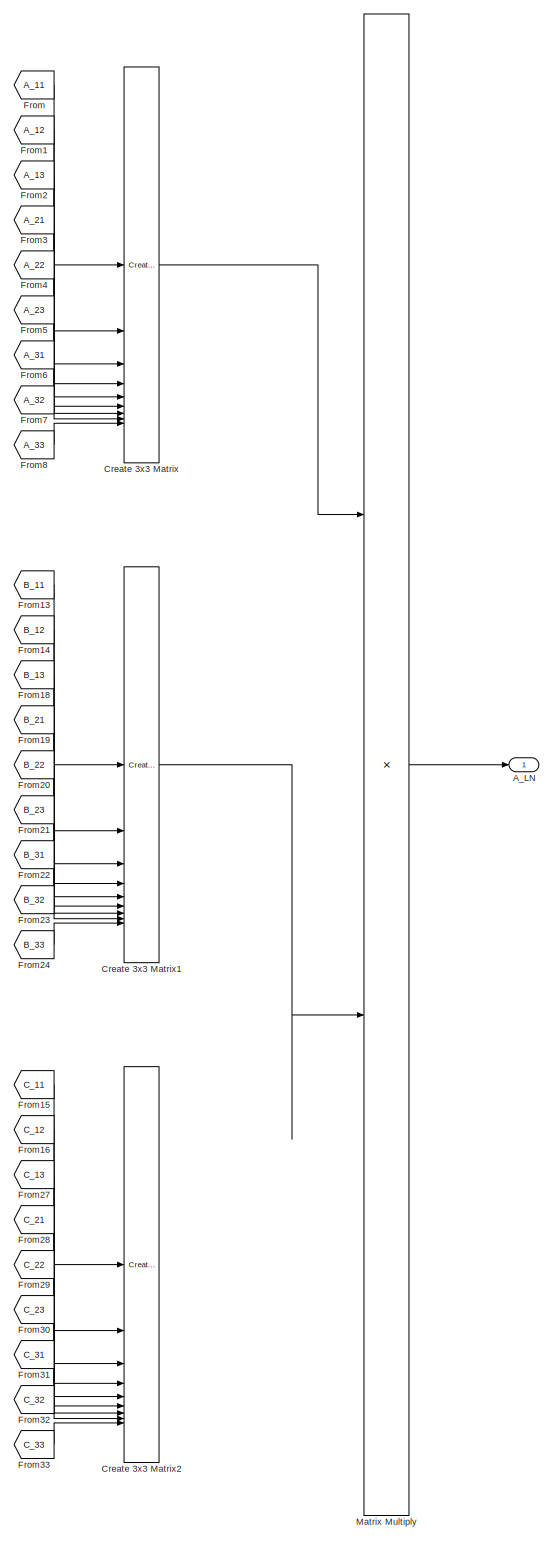
[diagram: Subsystem1/Reference Matrix #1 - part 1/3, right side, full height]
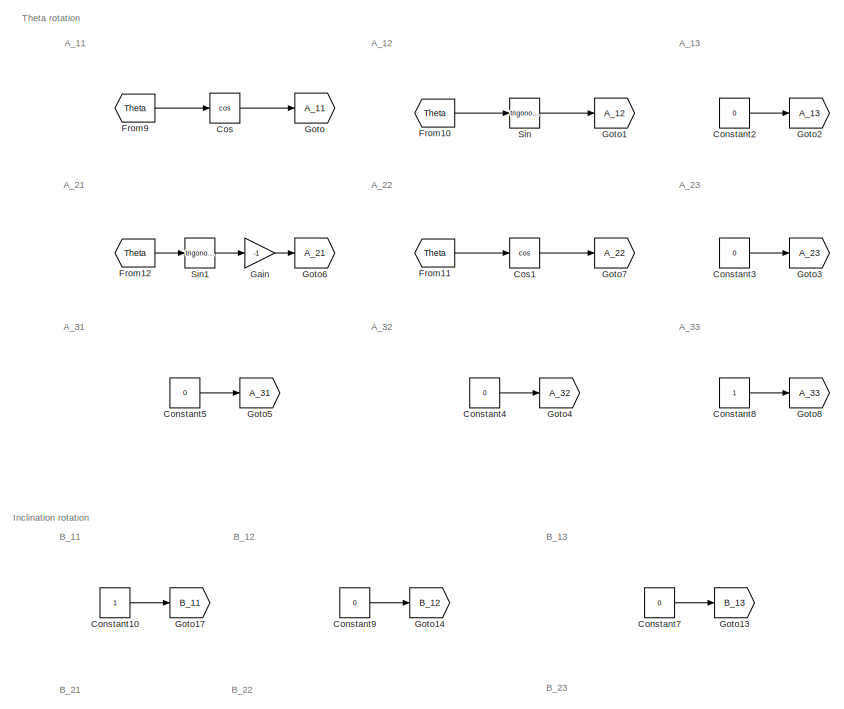
[diagram: Subsystem1/Reference Matrix #1 - part 2/3, top left region]
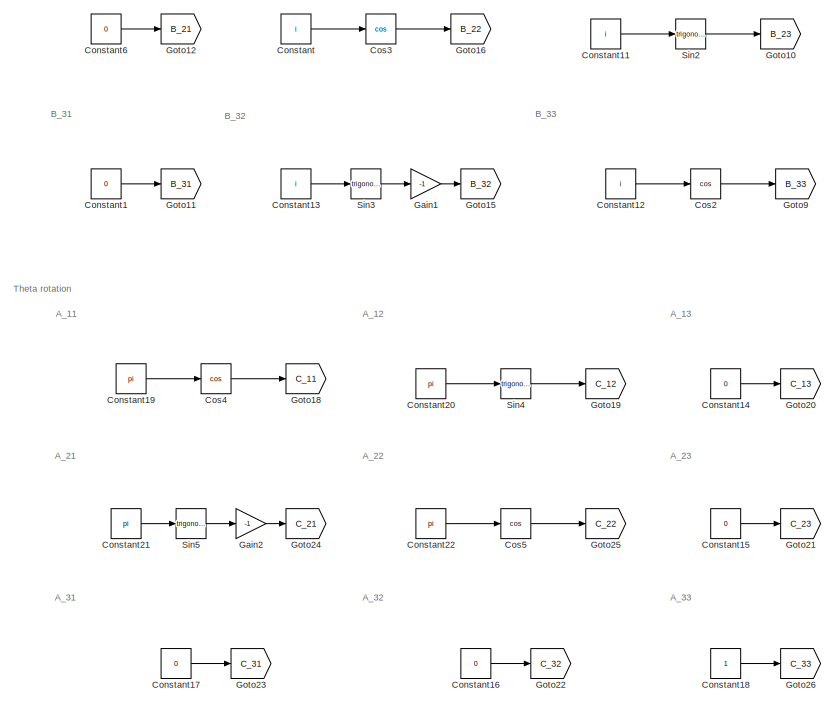
[diagram: Subsystem1/Reference Matrix #1 - part 3/3, bottom left region]
BLOCK [SubSystem] Subsystem1/Reference Matrix #1
BLOCK [Outport] Subsystem1/Reference Matrix #1/A_LN
BLOCK [Constant] Subsystem1/Reference Matrix #1/Constant
  Value = i
BLOCK [Constant] Subsystem1/Reference Matrix #1/Constant1
  Value = 0
BLOCK [Constant] Subsystem1/Reference Matrix #1/Constant10
BLOCK [Constant] Subsystem1/Reference Matrix #1/Constant11
  Value = i
BLOCK [Constant] Subsystem1/Reference Matrix #1/Constant12
  Value = i
BLOCK [Constant] Subsystem1/Reference Matrix #1/Constant13
  Value = i
BLOCK [Constant] Subsystem1/Reference Matrix #1/Constant14
  Commented = on
  Value = 0
BLOCK [Constant] Subsystem1/Reference Matrix #1/Constant15
  Commented = on
  Value = 0
BLOCK [Constant] Subsystem1/Reference Matrix #1/Constant16
  Commented = on
  Value = 0
BLOCK [Constant] Subsystem1/Reference Matrix #1/Constant17
  Commented = on
  Value = 0
BLOCK [Constant] Subsystem1/Reference Matrix #1/Constant18
  Commented = on
BLOCK [Constant] Subsystem1/Reference Matrix #1/Constant19
  Commented = on
  Value = pi
BLOCK [Constant] Subsystem1/Reference Matrix #1/Constant2
  Value = 0
BLOCK [Constant] Subsystem1/Reference Matrix #1/Constant20
  Commented = on
  Value = pi
BLOCK [Constant] Subsystem1/Reference Matrix #1/Constant21
  Commented = on
  Value = pi
BLOCK [Constant] Subsystem1/Reference Matrix #1/Constant22
  Commented = on
  Value = pi
BLOCK [Constant] Subsystem1/Reference Matrix #1/Constant3
  Value = 0
BLOCK [Constant] Subsystem1/Reference Matrix #1/Constant4
  Value = 0
BLOCK [Constant] Subsystem1/Reference Matrix #1/Constant5
  Value = 0
BLOCK [Constant] Subsystem1/Reference Matrix #1/Constant6
  Value = 0
BLOCK [Constant] Subsystem1/Reference Matrix #1/Constant7
  Value = 0
BLOCK [Constant] Subsystem1/Reference Matrix #1/Constant8
BLOCK [Constant] Subsystem1/Reference Matrix #1/Constant9
  Value = 0
BLOCK [Trigonometry] Subsystem1/Reference Matrix #1/Cos
  Operator = cos
BLOCK [Trigonometry] Subsystem1/Reference Matrix #1/Cos1
  Operator = cos
BLOCK [Trigonometry] Subsystem1/Reference Matrix #1/Cos2
  Operator = cos
BLOCK [Trigonometry] Subsystem1/Reference Matrix #1/Cos3
  Operator = cos
BLOCK [Trigonometry] Subsystem1/Reference Matrix #1/Cos4
  Commented = on
  Operator = cos
BLOCK [Trigonometry] Subsystem1/Reference Matrix #1/Cos5
  Commented = on
  Operator = cos
BLOCK [Reference] Subsystem1/Reference Matrix #1/Create 3x3 Matrix  REF=sharedutil/Create 3x3 Matrix
  LibrarySourceBlock = aerolibutil/Create 3x3 Matrix
  SourceBlock = sharedutil/Create 3x3 Matrix
  SourceType = Create 3x3 Matrix
BLOCK [Reference] Subsystem1/Reference Matrix #1/Create 3x3 Matrix1  REF=sharedutil/Create 3x3 Matrix
  LibrarySourceBlock = aerolibutil/Create 3x3 Matrix
  SourceBlock = sharedutil/Create 3x3 Matrix
  SourceType = Create 3x3 Matrix
BLOCK [Reference] Subsystem1/Reference Matrix #1/Create 3x3 Matrix2  REF=sharedutil/Create 3x3 Matrix
  Commented = on
  LibrarySourceBlock = aerolibutil/Create 3x3 Matrix
  SourceBlock = sharedutil/Create 3x3 Matrix
  SourceType = Create 3x3 Matrix
BLOCK [From] Subsystem1/Reference Matrix #1/From
  GotoTag = A_11
BLOCK [From] Subsystem1/Reference Matrix #1/From1
  GotoTag = A_12
BLOCK [From] Subsystem1/Reference Matrix #1/From10
  GotoTag = Theta
  TagVisibility = global
BLOCK [From] Subsystem1/Reference Matrix #1/From11
  GotoTag = Theta
  TagVisibility = global
BLOCK [From] Subsystem1/Reference Matrix #1/From12
  GotoTag = Theta
  TagVisibility = global
BLOCK [From] Subsystem1/Reference Matrix #1/From13
  GotoTag = B_11
BLOCK [From] Subsystem1/Reference Matrix #1/From14
  GotoTag = B_12
BLOCK [From] Subsystem1/Reference Matrix #1/From15
  Commented = on
  GotoTag = C_11
BLOCK [From] Subsystem1/Reference Matrix #1/From16
  Commented = on
  GotoTag = C_12
BLOCK [From] Subsystem1/Reference Matrix #1/From18
  GotoTag = B_13
BLOCK [From] Subsystem1/Reference Matrix #1/From19
  GotoTag = B_21
BLOCK [From] Subsystem1/Reference Matrix #1/From2
  GotoTag = A_13
BLOCK [From] Subsystem1/Reference Matrix #1/From20
  GotoTag = B_22
BLOCK [From] Subsystem1/Reference Matrix #1/From21
  GotoTag = B_23
BLOCK [From] Subsystem1/Reference Matrix #1/From22
  GotoTag = B_31
BLOCK [From] Subsystem1/Reference Matrix #1/From23
  GotoTag = B_32
BLOCK [From] Subsystem1/Reference Matrix #1/From24
  GotoTag = B_33
BLOCK [From] Subsystem1/Reference Matrix #1/From27
  Commented = on
  GotoTag = C_13
BLOCK [From] Subsystem1/Reference Matrix #1/From28
  Commented = on
  GotoTag = C_21
BLOCK [From] Subsystem1/Reference Matrix #1/From29
  Commented = on
  GotoTag = C_22
BLOCK [From] Subsystem1/Reference Matrix #1/From3
  GotoTag = A_21
BLOCK [From] Subsystem1/Reference Matrix #1/From30
  Commented = on
  GotoTag = C_23
BLOCK [From] Subsystem1/Reference Matrix #1/From31
  Commented = on
  GotoTag = C_31
BLOCK [From] Subsystem1/Reference Matrix #1/From32
  Commented = on
  GotoTag = C_32
BLOCK [From] Subsystem1/Reference Matrix #1/From33
  Commented = on
  GotoTag = C_33
BLOCK [From] Subsystem1/Reference Matrix #1/From4
  GotoTag = A_22
BLOCK [From] Subsystem1/Reference Matrix #1/From5
  GotoTag = A_23
BLOCK [From] Subsystem1/Reference Matrix #1/From6
  GotoTag = A_31
BLOCK [From] Subsystem1/Reference Matrix #1/From7
  GotoTag = A_32
BLOCK [From] Subsystem1/Reference Matrix #1/From8
  GotoTag = A_33
BLOCK [From] Subsystem1/Reference Matrix #1/From9
  GotoTag = Theta
  TagVisibility = global
BLOCK [Gain] Subsystem1/Reference Matrix #1/Gain
  Gain = -1
BLOCK [Gain] Subsystem1/Reference Matrix #1/Gain1
  Gain = -1
BLOCK [Gain] Subsystem1/Reference Matrix #1/Gain2
  Commented = on
  Gain = -1
BLOCK [Goto] Subsystem1/Reference Matrix #1/Goto
  GotoTag = A_11
BLOCK [Goto] Subsystem1/Reference Matrix #1/Goto1
  GotoTag = A_12
BLOCK [Goto] Subsystem1/Reference Matrix #1/Goto10
  GotoTag = B_23
BLOCK [Goto] Subsystem1/Reference Matrix #1/Goto11
  GotoTag = B_31
BLOCK [Goto] Subsystem1/Reference Matrix #1/Goto12
  GotoTag = B_21
BLOCK [Goto] Subsystem1/Reference Matrix #1/Goto13
  GotoTag = B_13
BLOCK [Goto] Subsystem1/Reference Matrix #1/Goto14
  GotoTag = B_12
BLOCK [Goto] Subsystem1/Reference Matrix #1/Goto15
  GotoTag = B_32
BLOCK [Goto] Subsystem1/Reference Matrix #1/Goto16
  GotoTag = B_22
BLOCK [Goto] Subsystem1/Reference Matrix #1/Goto17
  GotoTag = B_11
BLOCK [Goto] Subsystem1/Reference Matrix #1/Goto18
  Commented = on
  GotoTag = C_11
BLOCK [Goto] Subsystem1/Reference Matrix #1/Goto19
  Commented = on
  GotoTag = C_12
BLOCK [Goto] Subsystem1/Reference Matrix #1/Goto2
  GotoTag = A_13
BLOCK [Goto] Subsystem1/Reference Matrix #1/Goto20
  Commented = on
  GotoTag = C_13
BLOCK [Goto] Subsystem1/Reference Matrix #1/Goto21
  Commented = on
  GotoTag = C_23
BLOCK [Goto] Subsystem1/Reference Matrix #1/Goto22
  Commented = on
  GotoTag = C_32
BLOCK [Goto] Subsystem1/Reference Matrix #1/Goto23
  Commented = on
  GotoTag = C_31
BLOCK [Goto] Subsystem1/Reference Matrix #1/Goto24
  Commented = on
  GotoTag = C_21
BLOCK [Goto] Subsystem1/Reference Matrix #1/Goto25
  Commented = on
  GotoTag = C_22
BLOCK [Goto] Subsystem1/Reference Matrix #1/Goto26
  Commented = on
  GotoTag = C_33
BLOCK [Goto] Subsystem1/Reference Matrix #1/Goto3
  GotoTag = A_23
BLOCK [Goto] Subsystem1/Reference Matrix #1/Goto4
  GotoTag = A_32
BLOCK [Goto] Subsystem1/Reference Matrix #1/Goto5
  GotoTag = A_31
BLOCK [Goto] Subsystem1/Reference Matrix #1/Goto6
  GotoTag = A_21
BLOCK [Goto] Subsystem1/Reference Matrix #1/Goto7
  GotoTag = A_22
BLOCK [Goto] Subsystem1/Reference Matrix #1/Goto8
  GotoTag = A_33
BLOCK [Goto] Subsystem1/Reference Matrix #1/Goto9
  GotoTag = B_33
BLOCK [Product] Subsystem1/Reference Matrix #1/Matrix Multiply
  Multiplication = Matrix(*)
BLOCK [Trigonometry] Subsystem1/Reference Matrix #1/Sin
BLOCK [Trigonometry] Subsystem1/Reference Matrix #1/Sin1
BLOCK [Trigonometry] Subsystem1/Reference Matrix #1/Sin2
BLOCK [Trigonometry] Subsystem1/Reference Matrix #1/Sin3
BLOCK [Trigonometry] Subsystem1/Reference Matrix #1/Sin4
  Commented = on
BLOCK [Trigonometry] Subsystem1/Reference Matrix #1/Sin5
  Commented = on
BLOCK [Scope] Subsystem1/Scope
  Floating = off
  NameLocation = left
  NumInputPorts = 2
  ScopeSpecificationString = Simulink.scopes.TimeScopeBlockCfg('CurrentConfiguration', extmgr.ConfigurationSet(extmgr.Configuration('Core','General UI',true),extmgr.Configuration('Core','Source UI',true),extmgr.Configuration('Sources','WiredSimulink',true,'DataLoggingVariableName','ScopeData8'),extmgr.Configuration('Visuals','Time Domain',true,'SerializedDisplays',{struct('MinYLimReal','-0.09257','MaxYLimReal','0.14253','YLab...<+1437ch>
BLOCK [SubSystem] Subsystem1/Slew
  Commented = on
BLOCK [Inport] Subsystem1/Slew/A_LN
  Port = 2
BLOCK [Abs] Subsystem1/Slew/Abs
  SaturateOnIntegerOverflow = off
BLOCK [Constant] Subsystem1/Slew/Constant
  Commented = on
  Value = omega_slew
BLOCK [Constant] Subsystem1/Slew/Constant1
  Value = eye(4)
BLOCK [Constant] Subsystem1/Slew/Constant2
  Value = [0 1 0 0; -1 0 0 0; 0 0 0 -1; 0 0 1 0]
BLOCK [Constant] Subsystem1/Slew/Constant3
  Value = [0 0 -1 0; 0 0 0 -1; 1 0 0 0; 0 1 0 0]
BLOCK [Constant] Subsystem1/Slew/Constant4
  Value = [ 0 0 0 -1; 0 0 1 0; 0 -1 0 0; 1 0 0 0]
BLOCK [Constant] Subsystem1/Slew/Constant5
  Value = omega_slew
BLOCK [Constant] Subsystem1/Slew/Constant6
  Commented = on
  Value = I
BLOCK [Constant] Subsystem1/Slew/Constant7
  Commented = on
  Value = I
BLOCK [Reference] Subsystem1/Slew/Cross Product  REF=matrix_library/Cross Product
  Commented = on
  LibrarySourceBlock = simulink/Matrix\nOperations/Cross Product
  SourceBlock = matrix_library/Cross Product
  SourceType = CrossProduct
BLOCK [SubSystem] Subsystem1/Slew/DCM (Attitude Determination) to QUATERNIONS
  Commented = on
BLOCK [Selector] Subsystem1/Slew/DCM (Attitude Determination) to QUATERNIONS/A11
  IndexOptions = Index vector (dialog),Index vector (dialog)
  Indices = 1,1
  InputPortWidth = 1
  NumberOfDimensions = 2
  OutputSizes = 1,1
BLOCK [Selector] Subsystem1/Slew/DCM (Attitude Determination) to QUATERNIONS/A12
  IndexOptions = Index vector (dialog),Index vector (dialog)
  Indices = 1,2
  InputPortWidth = 3
  NumberOfDimensions = 2
  OutputSizes = 1,1
BLOCK [Selector] Subsystem1/Slew/DCM (Attitude Determination) to QUATERNIONS/A13
  IndexOptions = Index vector (dialog),Index vector (dialog)
  Indices = 1,3
  InputPortWidth = 3
  NumberOfDimensions = 2
  OutputSizes = 1,1
BLOCK [Selector] Subsystem1/Slew/DCM (Attitude Determination) to QUATERNIONS/A21
  IndexOptions = Index vector (dialog),Index vector (dialog)
  Indices = 2,1
  InputPortWidth = 3
  NumberOfDimensions = 2
  OutputSizes = 1,1
BLOCK [Selector] Subsystem1/Slew/DCM (Attitude Determination) to QUATERNIONS/A22
  IndexOptions = Index vector (dialog),Index vector (dialog)
  Indices = 2,2
  InputPortWidth = 3
  NumberOfDimensions = 2
  OutputSizes = 1,1
BLOCK [Selector] Subsystem1/Slew/DCM (Attitude Determination) to QUATERNIONS/A23
  IndexOptions = Index vector (dialog),Index vector (dialog)
  Indices = 2,3
  InputPortWidth = 3
  NumberOfDimensions = 2
  OutputSizes = 1,1
BLOCK [Selector] Subsystem1/Slew/DCM (Attitude Determination) to QUATERNIONS/A31
  IndexOptions = Index vector (dialog),Index vector (dialog)
  Indices = 3,1
  InputPortWidth = 3
  NumberOfDimensions = 2
  OutputSizes = 1,1
BLOCK [Selector] Subsystem1/Slew/DCM (Attitude Determination) to QUATERNIONS/A32
  IndexOptions = Index vector (dialog),Index vector (dialog)
  Indices = 3,2
  InputPortWidth = 3
  NumberOfDimensions = 2
  OutputSizes = 1,1
BLOCK [Selector] Subsystem1/Slew/DCM (Attitude Determination) to QUATERNIONS/A33
  IndexOptions = Index vector (dialog),Index vector (dialog)
  Indices = 3,3
  InputPortWidth = 3
  NumberOfDimensions = 2
  OutputSizes = 1,1
BLOCK [Constant] Subsystem1/Slew/DCM (Attitude Determination) to QUATERNIONS/Constant8
BLOCK [Product] Subsystem1/Slew/DCM (Attitude Determination) to QUATERNIONS/Divide6
  Inputs = */
BLOCK [Product] Subsystem1/Slew/DCM (Attitude Determination) to QUATERNIONS/Divide7
  Inputs = */
BLOCK [Product] Subsystem1/Slew/DCM (Attitude Determination) to QUATERNIONS/Divide8
  Inputs = */
BLOCK [Gain] Subsystem1/Slew/DCM (Attitude Determination) to QUATERNIONS/Gain2
  Gain = 0.5
BLOCK [Gain] Subsystem1/Slew/DCM (Attitude Determination) to QUATERNIONS/Gain3
  Gain = 1/4
BLOCK [Gain] Subsystem1/Slew/DCM (Attitude Determination) to QUATERNIONS/Gain4
  Gain = 1/4
BLOCK [Gain] Subsystem1/Slew/DCM (Attitude Determination) to QUATERNIONS/Gain5
  Gain = 1/4
BLOCK [Inport] Subsystem1/Slew/DCM (Attitude Determination) to QUATERNIONS/In1
BLOCK [Outport] Subsystem1/Slew/DCM (Attitude Determination) to QUATERNIONS/Q1
BLOCK [Outport] Subsystem1/Slew/DCM (Attitude Determination) to QUATERNIONS/Q2
  Port = 2
BLOCK [Outport] Subsystem1/Slew/DCM (Attitude Determination) to QUATERNIONS/Q3
  Port = 3
BLOCK [Outport] Subsystem1/Slew/DCM (Attitude Determination) to QUATERNIONS/Q4
  Port = 4
BLOCK [Sqrt] Subsystem1/Slew/DCM (Attitude Determination) to QUATERNIONS/Sqrt
BLOCK [Sum] Subsystem1/Slew/DCM (Attitude Determination) to QUATERNIONS/Sum2
  IconShape = rectangular
  Inputs = ++++
BLOCK [Sum] Subsystem1/Slew/DCM (Attitude Determination) to QUATERNIONS/Sum3
  IconShape = rectangular
  Inputs = +-
BLOCK [Sum] Subsystem1/Slew/DCM (Attitude Determination) to QUATERNIONS/Sum4
  IconShape = rectangular
  Inputs = +-
BLOCK [Sum] Subsystem1/Slew/DCM (Attitude Determination) to QUATERNIONS/Sum5
  IconShape = rectangular
  Inputs = +-
BLOCK [Demux] Subsystem1/Slew/Demux
BLOCK [Reference] Subsystem1/Slew/Direction Cosine Matrix to Quaternions  REF=sharedtransform/Direction Cosine Matrix 
to Quaternions
  LibrarySourceBlock = aerolibtransform2/Direction Cosine Matrix \nto Quaternions
  SourceBlock = sharedtransform/Direction Cosine Matrix \nto Quaternions
  SourceType = DCM2Quaternion
BLOCK [Reference] Subsystem1/Slew/Direction Cosine Matrix to Quaternions1  REF=sharedtransform/Direction Cosine Matrix 
to Quaternions
  LibrarySourceBlock = aerolibtransform2/Direction Cosine Matrix \nto Quaternions
  SourceBlock = sharedtransform/Direction Cosine Matrix \nto Quaternions
  SourceType = DCM2Quaternion
BLOCK [Product] Subsystem1/Slew/Divide1
  Inputs = **
BLOCK [Product] Subsystem1/Slew/Divide2
  Inputs = **
BLOCK [Product] Subsystem1/Slew/Divide3
  Inputs = **
BLOCK [Product] Subsystem1/Slew/Divide4
  Inputs = **
BLOCK [Product] Subsystem1/Slew/Divide5
  Inputs = */
BLOCK [Product] Subsystem1/Slew/Divide6
  Inputs = **
BLOCK [EnablePort] Subsystem1/Slew/Enable
BLOCK [Inport] Subsystem1/Slew/Extimated_DCM
  Port = 3
BLOCK [Gain] Subsystem1/Slew/Gain
  Gain = -k_p_slew
BLOCK [Gain] Subsystem1/Slew/Gain1
  Gain = k_d_slew
BLOCK [Gain] Subsystem1/Slew/Gain2
  Commented = on
  Gain = -1
BLOCK [Gain] Subsystem1/Slew/Gain3
  Gain = -1
BLOCK [SubSystem] Subsystem1/Slew/Linear tracking
  Commented = on
BLOCK [Inport] Subsystem1/Slew/Linear tracking/A_(B//N)_m
  Port = 2
BLOCK [Inport] Subsystem1/Slew/Linear tracking/A_(N//L)
  Port = 3
BLOCK [Inport] Subsystem1/Slew/Linear tracking/A_err
  Port = 4
BLOCK [Constant] Subsystem1/Slew/Linear tracking/Constant1
  Value = omega_slew
BLOCK [Constant] Subsystem1/Slew/Linear tracking/Constant2
  Value = k_i_slew
BLOCK [Delay] Subsystem1/Slew/Linear tracking/Delay
  DelayLength = 1
  InputPortMap = u0
  NameLocation = top
BLOCK [Gain] Subsystem1/Slew/Linear tracking/Gain
  Gain = [1 1 1]*k_d_slew
BLOCK [Gain] Subsystem1/Slew/Linear tracking/Gain1
  Gain = -1
BLOCK [Gain] Subsystem1/Slew/Linear tracking/Gain2
  Gain = [1 1 1]*k_p_slew
BLOCK [Gain] Subsystem1/Slew/Linear tracking/Gain3
  Gain = -1
BLOCK [Gain] Subsystem1/Slew/Linear tracking/Gain4
  Gain = -1
BLOCK [InitialCondition] Subsystem1/Slew/Linear tracking/IC
  Value = [0,0,0]
BLOCK [Outport] Subsystem1/Slew/Linear tracking/M_linear
BLOCK [Product] Subsystem1/Slew/Linear tracking/Matrix Multiply
BLOCK [Product] Subsystem1/Slew/Linear tracking/Matrix Multiply1
  Multiplication = Matrix(*)
BLOCK [Scope] Subsystem1/Slew/Linear tracking/Scope
  Floating = off
  NumInputPorts = 1
  ScopeSpecificationString = Simulink.scopes.TimeScopeBlockCfg('CurrentConfiguration', extmgr.ConfigurationSet(extmgr.Configuration('Core','General UI',true),extmgr.Configuration('Core','Source UI',true),extmgr.Configuration('Sources','WiredSimulink',true,'DataLoggingVariableName','ScopeData10'),extmgr.Configuration('Visuals','Time Domain',true,'SerializedDisplays',{struct('MinYLimReal','-1.00000','MaxYLimReal','1.00000','YLa...<+1419ch>
BLOCK [Sum] Subsystem1/Slew/Linear tracking/Subtract
  IconShape = rectangular
  Inputs = +-
BLOCK [Sum] Subsystem1/Slew/Linear tracking/Sum
  IconShape = rectangular
  Inputs = +++
BLOCK [Sum] Subsystem1/Slew/Linear tracking/Sum1
  Inputs = |++
BLOCK [SubSystem] Subsystem1/Slew/Linear tracking/V operator
BLOCK [Selector] Subsystem1/Slew/Linear tracking/V operator/-alpha_x
  IndexOptions = Index vector (dialog),Index vector (dialog)
  Indices = 3,2
  InputPortWidth = 3
  NumberOfDimensions = 2
  OutputSizes = 1,1
BLOCK [Selector] Subsystem1/Slew/Linear tracking/V operator/-alpha_y
  IndexOptions = Index vector (dialog),Index vector (dialog)
  Indices = 1,3
  InputPortWidth = 3
  NumberOfDimensions = 2
  OutputSizes = 1,1
BLOCK [Selector] Subsystem1/Slew/Linear tracking/V operator/-alpha_z
  IndexOptions = Index vector (dialog),Index vector (dialog)
  Indices = 2,1
  InputPortWidth = 3
  NumberOfDimensions = 2
  OutputSizes = 1,1
BLOCK [Inport] Subsystem1/Slew/Linear tracking/V operator/A_(N//L)
  Port = 2
BLOCK [Inport] Subsystem1/Slew/Linear tracking/V operator/A_m
BLOCK [Gain] Subsystem1/Slew/Linear tracking/V operator/Gain2
  Gain = 0.5
BLOCK [Gain] Subsystem1/Slew/Linear tracking/V operator/Gain3
  Gain = 0.5
BLOCK [Gain] Subsystem1/Slew/Linear tracking/V operator/Gain4
  Gain = 0.5
BLOCK [Outport] Subsystem1/Slew/Linear tracking/V operator/M2
BLOCK [Product] Subsystem1/Slew/Linear tracking/V operator/Matrix Multiply
  Multiplication = Matrix(*)
BLOCK [Mux] Subsystem1/Slew/Linear tracking/V operator/Mux
  DisplayOption = bar
  Inputs = 3
BLOCK [Sum] Subsystem1/Slew/Linear tracking/V operator/Subtract1
  IconShape = rectangular
  Inputs = +-
BLOCK [Sum] Subsystem1/Slew/Linear tracking/V operator/Subtract2
  IconShape = rectangular
  Inputs = +-
BLOCK [Sum] Subsystem1/Slew/Linear tracking/V operator/Subtract3
  IconShape = rectangular
  Inputs = +-
BLOCK [Selector] Subsystem1/Slew/Linear tracking/V operator/alpha_x
  IndexOptions = Index vector (dialog),Index vector (dialog)
  Indices = 2,3
  InputPortWidth = 3
  NumberOfDimensions = 2
  OutputSizes = 1,1
BLOCK [Selector] Subsystem1/Slew/Linear tracking/V operator/alpha_y
  IndexOptions = Index vector (dialog),Index vector (dialog)
  Indices = 3,1
  InputPortWidth = 3
  NumberOfDimensions = 2
  OutputSizes = 1,1
BLOCK [Selector] Subsystem1/Slew/Linear tracking/V operator/alpha_z
  IndexOptions = Index vector (dialog),Index vector (dialog)
  Indices = 1,2
  InputPortWidth = 3
  NumberOfDimensions = 2
  OutputSizes = 1,1
BLOCK [SubSystem] Subsystem1/Slew/Linear tracking/V operator2
BLOCK [Selector] Subsystem1/Slew/Linear tracking/V operator2/-alpha_x
  IndexOptions = Index vector (dialog),Index vector (dialog)
  Indices = 3,2
  InputPortWidth = 3
  NumberOfDimensions = 2
  OutputSizes = 1,1
BLOCK [Selector] Subsystem1/Slew/Linear tracking/V operator2/-alpha_y
  IndexOptions = Index vector (dialog),Index vector (dialog)
  Indices = 1,3
  InputPortWidth = 3
  NumberOfDimensions = 2
  OutputSizes = 1,1
BLOCK [Selector] Subsystem1/Slew/Linear tracking/V operator2/-alpha_z
  IndexOptions = Index vector (dialog),Index vector (dialog)
  Indices = 2,1
  InputPortWidth = 3
  NumberOfDimensions = 2
  OutputSizes = 1,1
BLOCK [Inport] Subsystem1/Slew/Linear tracking/V operator2/A_(N//L)
  Port = 2
BLOCK [Inport] Subsystem1/Slew/Linear tracking/V operator2/A_m
BLOCK [Gain] Subsystem1/Slew/Linear tracking/V operator2/Gain2
  Gain = 0.5
BLOCK [Gain] Subsystem1/Slew/Linear tracking/V operator2/Gain3
  Gain = 0.5
BLOCK [Gain] Subsystem1/Slew/Linear tracking/V operator2/Gain4
  Gain = 0.5
BLOCK [Product] Subsystem1/Slew/Linear tracking/V operator2/Matrix Multiply
  Multiplication = Matrix(*)
BLOCK [Mux] Subsystem1/Slew/Linear tracking/V operator2/Mux
  DisplayOption = bar
  Inputs = 3
BLOCK [Sum] Subsystem1/Slew/Linear tracking/V operator2/Subtract1
  IconShape = rectangular
  Inputs = +-
BLOCK [Sum] Subsystem1/Slew/Linear tracking/V operator2/Subtract2
  IconShape = rectangular
  Inputs = +-
BLOCK [Sum] Subsystem1/Slew/Linear tracking/V operator2/Subtract3
  IconShape = rectangular
  Inputs = +-
BLOCK [Selector] Subsystem1/Slew/Linear tracking/V operator2/alpha_x
  IndexOptions = Index vector (dialog),Index vector (dialog)
  Indices = 2,3
  InputPortWidth = 3
  NumberOfDimensions = 2
  OutputSizes = 1,1
BLOCK [Selector] Subsystem1/Slew/Linear tracking/V operator2/alpha_y
  IndexOptions = Index vector (dialog),Index vector (dialog)
  Indices = 3,1
  InputPortWidth = 3
  NumberOfDimensions = 2
  OutputSizes = 1,1
BLOCK [Selector] Subsystem1/Slew/Linear tracking/V operator2/alpha_z
  IndexOptions = Index vector (dialog),Index vector (dialog)
  Indices = 1,2
  InputPortWidth = 3
  NumberOfDimensions = 2
  OutputSizes = 1,1
BLOCK [Outport] Subsystem1/Slew/Linear tracking/V operator2/err
BLOCK [Inport] Subsystem1/Slew/Linear tracking/omega_B_m
BLOCK [Outport] Subsystem1/Slew/M_tracking
  InitialOutput = [0 0 0]
  OutputWhenDisabled = reset
BLOCK [Product] Subsystem1/Slew/Matrix Multiply
  Commented = on
  Multiplication = Matrix(*)
BLOCK [Product] Subsystem1/Slew/Matrix Multiply1
  Commented = on
  Multiplication = Matrix(*)
BLOCK [Product] Subsystem1/Slew/Matrix Multiply2
  Commented = on
  Multiplication = Matrix(*)
BLOCK [Product] Subsystem1/Slew/Matrix Multiply3
  Commented = on
  Multiplication = Matrix(*)
BLOCK [Product] Subsystem1/Slew/Matrix Multiply4
  Commented = on
  Multiplication = Matrix(*)
BLOCK [Product] Subsystem1/Slew/MatrixMultiply
  Multiplication = Matrix(*)
BLOCK [Scope] Subsystem1/Slew/Scope
  Commented = on
  Floating = off
  NumInputPorts = 1
  ScopeSpecificationString = Simulink.scopes.TimeScopeBlockCfg('CurrentConfiguration', extmgr.ConfigurationSet(extmgr.Configuration('Core','General UI',true),extmgr.Configuration('Core','Source UI',true),extmgr.Configuration('Sources','WiredSimulink',true,'DataLoggingVariableName','ScopeData1'),extmgr.Configuration('Visuals','Time Domain',true,'SerializedDisplays',{struct('MinYLimReal','-0.00000002','MaxYLimReal','0.00000018'...<+1518ch>
BLOCK [Scope] Subsystem1/Slew/Scope1
  Commented = on
  Floating = off
  NumInputPorts = 1
  ScopeSpecificationString = Simulink.scopes.TimeScopeBlockCfg('CurrentConfiguration', extmgr.ConfigurationSet(extmgr.Configuration('Core','General UI',true),extmgr.Configuration('Core','Source UI',true),extmgr.Configuration('Sources','WiredSimulink',true,'DataLoggingVariableName','ScopeData2'),extmgr.Configuration('Visuals','Time Domain',true,'SerializedDisplays',{struct('MinYLimReal','-0.0000007','MaxYLimReal','0.0000003','...<+1449ch>
BLOCK [Scope] Subsystem1/Slew/Scope2
  Commented = on
  Floating = off
  NumInputPorts = 1
  ScopeSpecificationString = Simulink.scopes.TimeScopeBlockCfg('CurrentConfiguration', extmgr.ConfigurationSet(extmgr.Configuration('Core','General UI',true),extmgr.Configuration('Core','Source UI',true),extmgr.Configuration('Sources','WiredSimulink',true,'DataLoggingVariableName','ScopeData3'),extmgr.Configuration('Visuals','Time Domain',true,'SerializedDisplays',{struct('MinYLimReal','-0.000005','MaxYLimReal','0.000008','YL...<+1498ch>
BLOCK [Selector] Subsystem1/Slew/Selector
  IndexOptions = Index vector (dialog)
  Indices = [1 2 3]
  InputPortWidth = 4
  OutputSizes = 1
BLOCK [Selector] Subsystem1/Slew/Selector1
  IndexOptions = Index vector (dialog)
  Indices = [4]
  InputPortWidth = 4
  OutputSizes = 1
BLOCK [SubSystem] Subsystem1/Slew/Skew_omega
  Commented = on
BLOCK [Constant] Subsystem1/Slew/Skew_omega/0
  Value = 0
BLOCK [Reference] Subsystem1/Slew/Skew_omega/Create 3x3 Matrix  REF=sharedutil/Create 3x3 Matrix
  SourceBlock = sharedutil/Create 3x3 Matrix
  SourceType = Create 3x3 Matrix
BLOCK [Demux] Subsystem1/Slew/Skew_omega/Demux
  Outputs = 3
BLOCK [Gain] Subsystem1/Slew/Skew_omega/Gain
  Gain = -1
BLOCK [Gain] Subsystem1/Slew/Skew_omega/Gain1
  Gain = -1
BLOCK [Gain] Subsystem1/Slew/Skew_omega/Gain2
  Gain = -1
BLOCK [Outport] Subsystem1/Slew/Skew_omega/Skew
BLOCK [Inport] Subsystem1/Slew/Skew_omega/omega
BLOCK [Sum] Subsystem1/Slew/Subtract
  IconShape = rectangular
  Inputs = +-
BLOCK [Sum] Subsystem1/Slew/Subtract1
  Commented = on
  IconShape = rectangular
  Inputs = -+
BLOCK [Sum] Subsystem1/Slew/Sum
  IconShape = rectangular
  Inputs = ++++
BLOCK [Sum] Subsystem1/Slew/Sum1
  IconShape = rectangular
BLOCK [Sum] Subsystem1/Slew/Sum2
  Commented = on
  IconShape = rectangular
  Inputs = +++
BLOCK [SubSystem] Subsystem1/Slew/TARGET MATRIX to QUATERNIONS
  Commented = on
BLOCK [Selector] Subsystem1/Slew/TARGET MATRIX to QUATERNIONS/A11
  IndexOptions = Index vector (dialog),Index vector (dialog)
  Indices = 1,1
  InputPortWidth = 1
  NumberOfDimensions = 2
  OutputSizes = 1,1
BLOCK [Selector] Subsystem1/Slew/TARGET MATRIX to QUATERNIONS/A12
  IndexOptions = Index vector (dialog),Index vector (dialog)
  Indices = 1,2
  InputPortWidth = 3
  NumberOfDimensions = 2
  OutputSizes = 1,1
BLOCK [Selector] Subsystem1/Slew/TARGET MATRIX to QUATERNIONS/A13
  IndexOptions = Index vector (dialog),Index vector (dialog)
  Indices = 1,3
  InputPortWidth = 3
  NumberOfDimensions = 2
  OutputSizes = 1,1
BLOCK [Selector] Subsystem1/Slew/TARGET MATRIX to QUATERNIONS/A21
  IndexOptions = Index vector (dialog),Index vector (dialog)
  Indices = 2,1
  InputPortWidth = 3
  NumberOfDimensions = 2
  OutputSizes = 1,1
BLOCK [Selector] Subsystem1/Slew/TARGET MATRIX to QUATERNIONS/A22
  IndexOptions = Index vector (dialog),Index vector (dialog)
  Indices = 2,2
  InputPortWidth = 3
  NumberOfDimensions = 2
  OutputSizes = 1,1
BLOCK [Selector] Subsystem1/Slew/TARGET MATRIX to QUATERNIONS/A23
  IndexOptions = Index vector (dialog),Index vector (dialog)
  Indices = 2,3
  InputPortWidth = 3
  NumberOfDimensions = 2
  OutputSizes = 1,1
BLOCK [Selector] Subsystem1/Slew/TARGET MATRIX to QUATERNIONS/A31
  IndexOptions = Index vector (dialog),Index vector (dialog)
  Indices = 3,1
  InputPortWidth = 3
  NumberOfDimensions = 2
  OutputSizes = 1,1
BLOCK [Selector] Subsystem1/Slew/TARGET MATRIX to QUATERNIONS/A32
  IndexOptions = Index vector (dialog),Index vector (dialog)
  Indices = 3,2
  InputPortWidth = 3
  NumberOfDimensions = 2
  OutputSizes = 1,1
BLOCK [Selector] Subsystem1/Slew/TARGET MATRIX to QUATERNIONS/A33
  IndexOptions = Index vector (dialog),Index vector (dialog)
  Indices = 3,3
  InputPortWidth = 3
  NumberOfDimensions = 2
  OutputSizes = 1,1
BLOCK [Constant] Subsystem1/Slew/TARGET MATRIX to QUATERNIONS/Constant8
BLOCK [Product] Subsystem1/Slew/TARGET MATRIX to QUATERNIONS/Divide6
  Inputs = */
BLOCK [Product] Subsystem1/Slew/TARGET MATRIX to QUATERNIONS/Divide7
  Inputs = */
BLOCK [Product] Subsystem1/Slew/TARGET MATRIX to QUATERNIONS/Divide8
  Inputs = */
BLOCK [Gain] Subsystem1/Slew/TARGET MATRIX to QUATERNIONS/Gain2
  Gain = 0.5
BLOCK [Gain] Subsystem1/Slew/TARGET MATRIX to QUATERNIONS/Gain3
  Gain = 1/4
BLOCK [Gain] Subsystem1/Slew/TARGET MATRIX to QUATERNIONS/Gain4
  Gain = 1/4
BLOCK [Gain] Subsystem1/Slew/TARGET MATRIX to QUATERNIONS/Gain5
  Gain = 1/4
BLOCK [Inport] Subsystem1/Slew/TARGET MATRIX to QUATERNIONS/In1
BLOCK [Outport] Subsystem1/Slew/TARGET MATRIX to QUATERNIONS/Q1
BLOCK [Outport] Subsystem1/Slew/TARGET MATRIX to QUATERNIONS/Q2
  Port = 2
BLOCK [Outport] Subsystem1/Slew/TARGET MATRIX to QUATERNIONS/Q3
  Port = 3
BLOCK [Outport] Subsystem1/Slew/TARGET MATRIX to QUATERNIONS/Q4
  Port = 4
BLOCK [Sqrt] Subsystem1/Slew/TARGET MATRIX to QUATERNIONS/Sqrt
BLOCK [Sum] Subsystem1/Slew/TARGET MATRIX to QUATERNIONS/Sum2
  IconShape = rectangular
  Inputs = ++++
BLOCK [Sum] Subsystem1/Slew/TARGET MATRIX to QUATERNIONS/Sum3
  IconShape = rectangular
  Inputs = +-
BLOCK [Sum] Subsystem1/Slew/TARGET MATRIX to QUATERNIONS/Sum4
  IconShape = rectangular
  Inputs = +-
BLOCK [Sum] Subsystem1/Slew/TARGET MATRIX to QUATERNIONS/Sum5
  IconShape = rectangular
  Inputs = +-
BLOCK [Inport] Subsystem1/Slew/omega_gyro
BLOCK [Sum] Subsystem1/Sum
  Inputs = +++
BLOCK [SubSystem] Subsystem1/Switch logic
BLOCK [Clock] Subsystem1/Switch logic/Clock
BLOCK [Constant] Subsystem1/Switch logic/Constant
  Commented = on
BLOCK [Constant] Subsystem1/Switch logic/Constant1
  Commented = on
  Value = -1
BLOCK [Constant] Subsystem1/Switch logic/Constant10
  Commented = on
BLOCK [Constant] Subsystem1/Switch logic/Constant8
  Value = -1
BLOCK [Constant] Subsystem1/Switch logic/Constant9
BLOCK [Outport] Subsystem1/Switch logic/Detumbling
BLOCK [Gain] Subsystem1/Switch logic/Gain
  Commented = on
  Gain = -1
BLOCK [Gain] Subsystem1/Switch logic/Gain4
  Commented = on
  Gain = -1
BLOCK [Outport] Subsystem1/Switch logic/Nadir
  Port = 2
BLOCK [Outport] Subsystem1/Switch logic/Slew
  Port = 3
BLOCK [Switch] Subsystem1/Switch logic/Switch
  Commented = on
  Criteria = u2 > Threshold
  InputSameDT = off
  SaturateOnIntegerOverflow = off
  Threshold = time_detumbling
BLOCK [Switch] Subsystem1/Switch logic/Switch4
  Criteria = u2 > Threshold
  InputSameDT = off
  SaturateOnIntegerOverflow = off
  Threshold = time_nadir_pointing
BLOCK [Switch] Subsystem1/Switch logic/Switch5
  Commented = on
  Criteria = u2 > Threshold
  InputSameDT = off
  SaturateOnIntegerOverflow = off
  Threshold = time_slew
BLOCK [SubSystem] Subsystem2
  Commented = on
  PortSchema = {"entries":[{"content":{"sides":[{"content":{"connectorIds":["In1","In2"]},"type":"ConnectorPlacement.EquallySpacedRectSide","uuid":"904c8655-8bda-40bc-8851-83b785dfa15e"},{"content":{"connectorIds":[],"side":"RIGHT"},"type":"ConnectorPlacement.EquallySpacedRectSide","uuid":"2c7420fa-7058-46da-8085-0ee08a188acb"},{"content":{"connectorIds":["In3","In4","In5"],"side":"TOP"},"type":"ConnectorPlaceme...<+406ch>
BLOCK [SubSystem] Subsystem2/Algebraic method
  NameLocation = top
BLOCK [Reference] Subsystem2/Algebraic method/Determinant of 3x3 Matrix  REF=sharedutil/Determinant of
3x3 Matrix
  LibrarySourceBlock = aerolibutil/Determinant of\n3x3 Matrix
  SourceBlock = sharedutil/Determinant of\n3x3 Matrix
  SourceType = Determinant of 3x3 Matrix
BLOCK [EnablePort] Subsystem2/Algebraic method/Enable
BLOCK [Reference] Subsystem2/Algebraic method/Extract Diagonal  REF=matrix_library/Extract Diagonal
  LibrarySourceBlock = simulink/Matrix\nOperations/Extract Diagonal
  SourceBlock = matrix_library/Extract Diagonal
  SourceType = Extract Diagonal
BLOCK [Inport] Subsystem2/Algebraic method/GPS Position
  Port = 4
BLOCK [Gain] Subsystem2/Algebraic method/Gain
  Gain = eye(3)
BLOCK [Gain] Subsystem2/Algebraic method/Gain1
  Gain = alpha_1
BLOCK [Gain] Subsystem2/Algebraic method/Gain2
  Gain = alpha_2
BLOCK [Inport] Subsystem2/Algebraic method/HS_r_B
BLOCK [SubSystem] Subsystem2/Algebraic method/MATLAB Function
  ErrorFcn = Stateflow.Translate.translate
  LibrarySourceBlock = simulink/User-Defined\nFunctions/MATLAB Function
  PermitHierarchicalResolution = ExplicitOnly
  SFBlockType = MATLAB Function
  TreatAsAtomicUnit = on
BLOCK [Demux] Subsystem2/Algebraic method/MATLAB Function/ Demux 
  Outputs = 1
BLOCK [S-Function] Subsystem2/Algebraic method/MATLAB Function/ SFunction 
  EnableBusSupport = on
  FunctionName = sf_sfun
  PortCounts = [2 2]
  SFcnIsStateOwnerBlock = off
  SFunctionDeploymentMode = off
  Tag = Stateflow S-Function 8
BLOCK [Terminator] Subsystem2/Algebraic method/MATLAB Function/ Terminator 
BLOCK [Inport] Subsystem2/Algebraic method/MATLAB Function/A
BLOCK [Outport] Subsystem2/Algebraic method/MATLAB Function/x
BLOCK [Inport] Subsystem2/Algebraic method/MATLAB Function/x0
  Port = 2
BLOCK [SubSystem] Subsystem2/Algebraic method/MATLAB Function1
  ErrorFcn = Stateflow.Translate.translate
  LibrarySourceBlock = simulink/User-Defined\nFunctions/MATLAB Function
  PermitHierarchicalResolution = ExplicitOnly
  SFBlockType = MATLAB Function
  TreatAsAtomicUnit = on
BLOCK [Demux] Subsystem2/Algebraic method/MATLAB Function1/ Demux 
  Outputs = 1
BLOCK [S-Function] Subsystem2/Algebraic method/MATLAB Function1/ SFunction 
  EnableBusSupport = on
  FunctionName = sf_sfun
  PortCounts = [1 2]
  SFcnIsStateOwnerBlock = off
  SFunctionDeploymentMode = off
  Tag = Stateflow S-Function 9
BLOCK [Terminator] Subsystem2/Algebraic method/MATLAB Function1/ Terminator 
BLOCK [Outport] Subsystem2/Algebraic method/MATLAB Function1/DCM
BLOCK [Inport] Subsystem2/Algebraic method/MATLAB Function1/q
BLOCK [Concatenate] Subsystem2/Algebraic method/Matrix Concatenate
  Mode = Multidimensional array
BLOCK [Concatenate] Subsystem2/Algebraic method/Matrix Concatenate1
  ConcatenateDimension = 2
  Mode = Multidimensional array
  NameLocation = left
BLOCK [Product] Subsystem2/Algebraic method/Matrix Multiply
  Multiplication = Matrix(*)
BLOCK [Product] Subsystem2/Algebraic method/Matrix Multiply1
  Multiplication = Matrix(*)
BLOCK [Memory] Subsystem2/Algebraic method/Memory
  InitialCondition = [1;0;0;0]
  NameLocation = top
BLOCK [Mux] Subsystem2/Algebraic method/Mux
  DisplayOption = bar
  Inputs = 3
BLOCK [Mux] Subsystem2/Algebraic method/Mux1
  DisplayOption = bar
  Inputs = 2
  NameLocation = left
BLOCK [Reference] Subsystem2/Algebraic method/Normalize Vector  REF=vrlib/Utilities/Normalize Vector
  SourceBlock = vrlib/Utilities/Normalize Vector
  SourceType = Normalize Vector
BLOCK [Outport] Subsystem2/Algebraic method/Out1
  NameLocation = right
BLOCK [Scope] Subsystem2/Algebraic method/Scope
  Floating = off
  NumInputPorts = 1
  ScopeSpecificationString = Simulink.scopes.TimeScopeBlockCfg('CurrentConfiguration', extmgr.ConfigurationSet(extmgr.Configuration('Core','General UI',true),extmgr.Configuration('Core','Source UI',true),extmgr.Configuration('Sources','WiredSimulink',true,'DataLoggingVariableName','ScopeData1'),extmgr.Configuration('Visuals','Time Domain',true,'SerializedDisplays',{struct('MinYLimReal','-0.125','MaxYLimReal','1.125','YLabelRe...<+1439ch>
BLOCK [Scope] Subsystem2/Algebraic method/Scope1
  Floating = off
  NumInputPorts = 2
  ScopeSpecificationString = Simulink.scopes.TimeScopeBlockCfg('CurrentConfiguration', extmgr.ConfigurationSet(extmgr.Configuration('Core','General UI',true),extmgr.Configuration('Core','Source UI',true),extmgr.Configuration('Sources','WiredSimulink',true,'DataLoggingVariableName','ScopeData2'),extmgr.Configuration('Visuals','Time Domain',true,'SerializedDisplays',{struct('MinYLimReal','-15651343187095887975461757754738651178...<+2822ch>
BLOCK [Scope] Subsystem2/Algebraic method/Scope2
  Floating = off
  NumInputPorts = 1
  ScopeSpecificationString = Simulink.scopes.TimeScopeBlockCfg('CurrentConfiguration', extmgr.ConfigurationSet(extmgr.Configuration('Core','General UI',true),extmgr.Configuration('Core','Source UI',true),extmgr.Configuration('Sources','WiredSimulink',true,'DataLoggingVariableName','ScopeData3'),extmgr.Configuration('Visuals','Time Domain',true),extmgr.Configuration('Tools','Plot Navigation',true),extmgr.Configuration('Tools',...<+40ch>
BLOCK [Scope] Subsystem2/Algebraic method/Scope3
  Floating = off
  NumInputPorts = 1
  ScopeSpecificationString = Simulink.scopes.TimeScopeBlockCfg('CurrentConfiguration', extmgr.ConfigurationSet(extmgr.Configuration('Core','General UI',true),extmgr.Configuration('Core','Source UI',true),extmgr.Configuration('Sources','WiredSimulink',true,'DataLoggingVariableName','ScopeData4'),extmgr.Configuration('Visuals','Time Domain',true,'SerializedDisplays',{struct('MinYLimReal','-13987085563391306104832.00000','MaxYLi...<+1738ch>
BLOCK [Scope] Subsystem2/Algebraic method/Scope4
  Floating = off
  NameLocation = left
  NumInputPorts = 1
  ScopeSpecificationString = Simulink.scopes.TimeScopeBlockCfg('CurrentConfiguration', extmgr.ConfigurationSet(extmgr.Configuration('Core','General UI',true),extmgr.Configuration('Core','Source UI',true),extmgr.Configuration('Sources','WiredSimulink',true,'DataLoggingVariableName','ScopeData5'),extmgr.Configuration('Visuals','Time Domain',true,'SerializedDisplays',{struct('MinYLimReal','-13987085563391306104832.00000','MaxYLi...<+1567ch>
BLOCK [Scope] Subsystem2/Algebraic method/Scope5
  Floating = off
  NameLocation = top
  NumInputPorts = 1
  ScopeSpecificationString = Simulink.scopes.TimeScopeBlockCfg('CurrentConfiguration', extmgr.ConfigurationSet(extmgr.Configuration('Core','General UI',true),extmgr.Configuration('Core','Source UI',true),extmgr.Configuration('Sources','WiredSimulink',true,'DataLoggingVariableName','ScopeData6'),extmgr.Configuration('Visuals','Time Domain',true,'SerializedDisplays',{struct('MinYLimReal','-27955800284603462189056.00000','MaxYLi...<+1584ch>
BLOCK [Scope] Subsystem2/Algebraic method/Scope7
  Floating = off
  NameLocation = left
  NumInputPorts = 1
  ScopeSpecificationString = Simulink.scopes.TimeScopeBlockCfg('CurrentConfiguration', extmgr.ConfigurationSet(extmgr.Configuration('Core','General UI',true),extmgr.Configuration('Core','Source UI',true),extmgr.Configuration('Sources','WiredSimulink',true,'DataLoggingVariableName','ScopeData7'),extmgr.Configuration('Visuals','Time Domain',true,'SerializedDisplays',{struct('MinYLimReal','-13987058347813675991040.00000','MaxYLi...<+1584ch>
BLOCK [Selector] Subsystem2/Algebraic method/Selector
  IndexOptions = Index vector (dialog),Index vector (dialog)
  Indices = 2,3
  InputPortWidth = 3
  NumberOfDimensions = 2
  OutputSizes = 1,1
BLOCK [Selector] Subsystem2/Algebraic method/Selector1
  IndexOptions = Index vector (dialog),Index vector (dialog)
  Indices = 3,1
  InputPortWidth = 3
  NumberOfDimensions = 2
  OutputSizes = 1,1
BLOCK [Selector] Subsystem2/Algebraic method/Selector2
  IndexOptions = Index vector (dialog),Index vector (dialog)
  Indices = 1,2
  InputPortWidth = 3
  NumberOfDimensions = 2
  OutputSizes = 1,1
BLOCK [Sum] Subsystem2/Algebraic method/Sum
BLOCK [Sum] Subsystem2/Algebraic method/Sum1
  Inputs = |++
BLOCK [Sum] Subsystem2/Algebraic method/Sum2
  Inputs = +
BLOCK [Sum] Subsystem2/Algebraic method/Sum3
  Inputs = -+|
BLOCK [Sum] Subsystem2/Algebraic method/Sum4
  Inputs = |-+
BLOCK [Inport] Subsystem2/Algebraic method/Sun position - Inertial frame
  Port = 3
BLOCK [Inport] Subsystem2/Algebraic method/SunSensor_s_B
  Port = 2
BLOCK [Math] Subsystem2/Algebraic method/Transpose
  Operator = transpose
BLOCK [Math] Subsystem2/Algebraic method/Transpose1
  Operator = transpose
BLOCK [Math] Subsystem2/Algebraic method/Transpose2
  Operator = transpose
BLOCK [Math] Subsystem2/Algebraic method/Transpose3
  Operator = transpose
BLOCK [Bias] Subsystem2/Bias
  Bias = 1
  NameLocation = left
  SaturateOnIntegerOverflow = off
BLOCK [Delay] Subsystem2/Delay
  DelayLength = 1
  InputPortMap = u0
BLOCK [Delay] Subsystem2/Delay2
  DelayLength = 1
  InputPortMap = u0
BLOCK [From] Subsystem2/From
  GotoTag = Extimated_DCM
BLOCK [Inport] Subsystem2/GPS Position
  Port = 4
BLOCK [Gain] Subsystem2/Gain
  Gain = -1
  NameLocation = left
BLOCK [Gain] Subsystem2/Gain1
  Gain = 0.5
  NameLocation = left
BLOCK [Goto] Subsystem2/Goto
  GotoTag = Extimated_DCM
BLOCK [SubSystem] Subsystem2/Gyro propagation
  TreatAsAtomicUnit = on
BLOCK [SubSystem] Subsystem2/Gyro propagation/Anti-symmetric Matrix
  NameLocation = top
BLOCK [Demux] Subsystem2/Gyro propagation/Anti-symmetric Matrix/Demux
  Outputs = 3
BLOCK [Gain] Subsystem2/Gyro propagation/Anti-symmetric Matrix/Gain
  Gain = [0,0,0;0,0,-1;0,1,0]
BLOCK [Gain] Subsystem2/Gyro propagation/Anti-symmetric Matrix/Gain1
  Gain = [0,0,1;0,0,0;-1,0,0]
BLOCK [Gain] Subsystem2/Gyro propagation/Anti-symmetric Matrix/Gain2
  Gain = [0,-1,0;1,0,0;0,0,0]
BLOCK [Inport] Subsystem2/Gyro propagation/Anti-symmetric Matrix/Omega
BLOCK [Sum] Subsystem2/Gyro propagation/Anti-symmetric Matrix/Sum
  IconShape = rectangular
  Inputs = +++
BLOCK [Outport] Subsystem2/Gyro propagation/Anti-symmetric Matrix/[w]^
BLOCK [Inport] Subsystem2/Gyro propagation/Calculated DCM
  Port = 3
BLOCK [EnablePort] Subsystem2/Gyro propagation/Enable
BLOCK [Gain] Subsystem2/Gyro propagation/Gain1
  Gain = -1
BLOCK [Outport] Subsystem2/Gyro propagation/Gyro_DCM
  NameLocation = top
BLOCK [Inport] Subsystem2/Gyro propagation/Gyro_Omega
  Port = 2
BLOCK [Integrator] Subsystem2/Gyro propagation/Integrator2
  ExternalReset = level
  InitialConditionSource = external
BLOCK [Product] Subsystem2/Gyro propagation/Matrix Multiply1
  Multiplication = Matrix(*)
BLOCK [SubSystem] Subsystem2/Gyro propagation/Matrix determinant
BLOCK [Inport] Subsystem2/Gyro propagation/Matrix determinant/DCM
BLOCK [Outport] Subsystem2/Gyro propagation/Matrix determinant/Determinant
BLOCK [Reference] Subsystem2/Gyro propagation/Matrix determinant/Determinant of 3x3 Matrix  REF=sharedutil/Determinant of
3x3 Matrix
  LibrarySourceBlock = aerolibutil/Determinant of\n3x3 Matrix
  SourceBlock = sharedutil/Determinant of\n3x3 Matrix
  SourceType = Determinant of 3x3 Matrix
BLOCK [SubSystem] Subsystem2/Gyro propagation/Ortonormalizzation
  NameLocation = top
BLOCK [Gain] Subsystem2/Gyro propagation/Ortonormalizzation/Gain
  Gain = 1.5
BLOCK [Gain] Subsystem2/Gyro propagation/Ortonormalizzation/Gain1
  Gain = 0.5
BLOCK [Inport] Subsystem2/Gyro propagation/Ortonormalizzation/In1
BLOCK [Product] Subsystem2/Gyro propagation/Ortonormalizzation/Matrix Multiply
  Inputs = 3
  Multiplication = Matrix(*)
BLOCK [Outport] Subsystem2/Gyro propagation/Ortonormalizzation/Output
  NameLocation = top
BLOCK [Sum] Subsystem2/Gyro propagation/Ortonormalizzation/Sum
  Inputs = |+-
BLOCK [Math] Subsystem2/Gyro propagation/Ortonormalizzation/Transpose
  Operator = transpose
BLOCK [SubSystem] Subsystem2/Gyro propagation/Perpendicularity
BLOCK [Inport] Subsystem2/Gyro propagation/Perpendicularity/DCM
BLOCK [SubSystem] Subsystem2/Gyro propagation/Perpendicularity/MATLAB Function2
  ErrorFcn = Stateflow.Translate.translate
  LibrarySourceBlock = simulink/User-Defined\nFunctions/MATLAB Function
  PermitHierarchicalResolution = ExplicitOnly
  SFBlockType = MATLAB Function
  TreatAsAtomicUnit = on
BLOCK [Demux] Subsystem2/Gyro propagation/Perpendicularity/MATLAB Function2/ Demux 
  Outputs = 1
BLOCK [S-Function] Subsystem2/Gyro propagation/Perpendicularity/MATLAB Function2/ SFunction 
  EnableBusSupport = on
  FunctionName = sf_sfun
  PortCounts = [1 2]
  SFcnIsStateOwnerBlock = off
  SFunctionDeploymentMode = off
  Tag = Stateflow S-Function 10
BLOCK [Terminator] Subsystem2/Gyro propagation/Perpendicularity/MATLAB Function2/ Terminator 
BLOCK [Inport] Subsystem2/Gyro propagation/Perpendicularity/MATLAB Function2/DCM
BLOCK [Outport] Subsystem2/Gyro propagation/Perpendicularity/MATLAB Function2/perpendicularity_flag
BLOCK [Outport] Subsystem2/Gyro propagation/Perpendicularity/Perpendicularity flag
BLOCK [Scope] Subsystem2/Gyro propagation/Scope
  Floating = off
  NameLocation = left
  NumInputPorts = 1
BLOCK [Scope] Subsystem2/Gyro propagation/Scope1
  Floating = off
  NameLocation = left
  NumInputPorts = 1
  ScopeSpecificationString = Simulink.scopes.TimeScopeBlockCfg('CurrentConfiguration', extmgr.ConfigurationSet(extmgr.Configuration('Core','General UI',true),extmgr.Configuration('Core','Source UI',true),extmgr.Configuration('Sources','WiredSimulink',true,'DataLoggingVariableName','ScopeData10'),extmgr.Configuration('Visuals','Time Domain',true),extmgr.Configuration('Tools','Plot Navigation',true),extmgr.Configuration('Tools'...<+41ch>
BLOCK [Scope] Subsystem2/Gyro propagation/Scope2
  Floating = off
  NumInputPorts = 2
  ScopeSpecificationString = Simulink.scopes.TimeScopeBlockCfg('CurrentConfiguration', extmgr.ConfigurationSet(extmgr.Configuration('Core','General UI',true),extmgr.Configuration('Core','Source UI',true),extmgr.Configuration('Sources','WiredSimulink',true,'DataLoggingVariableName','ScopeData6'),extmgr.Configuration('Visuals','Time Domain',true,'SerializedDisplays',{struct('MinYLimReal','-1.25','MaxYLimReal','1.25','YLabelReal...<+1625ch>
BLOCK [Inport] Subsystem2/Gyro propagation/reset signal
BLOCK [Inport] Subsystem2/Gyro_omega
  Port = 6
BLOCK [Inport] Subsystem2/HS_r_B
BLOCK [Merge] Subsystem2/Merge
BLOCK [Scope] Subsystem2/Scope
  Floating = off
  NumInputPorts = 1
  ScopeSpecificationString = Simulink.scopes.TimeScopeBlockCfg('CurrentConfiguration', extmgr.ConfigurationSet(extmgr.Configuration('Core','General UI',true),extmgr.Configuration('Core','Source UI',true),extmgr.Configuration('Sources','WiredSimulink',true,'DataLoggingVariableName','ScopeData4'),extmgr.Configuration('Visuals','Time Domain',true,'SerializedDisplays',{struct('MinYLimReal','-1.25','MaxYLimReal','1.25','YLabelReal...<+1724ch>
BLOCK [Inport] Subsystem2/Sun position - Inertial frame
  Port = 5
BLOCK [Inport] Subsystem2/SunSensor_s_B
  Port = 2
BLOCK [Inport] Subsystem2/eclipse flag
  Port = 3
BLOCK [SubSystem] Subsystem3
BLOCK [Constant] Subsystem3/Constant
  Value = 0
BLOCK [Constant] Subsystem3/Constant1
  Value = 0
BLOCK [Constant] Subsystem3/Constant2
  Value = n_SC
BLOCK [From] Subsystem3/From
  GotoTag = Omega
  TagVisibility = global
BLOCK [Mux] Subsystem3/Mux
  DisplayOption = bar
  Inputs = 3
BLOCK [Outport] Subsystem3/Out1
BLOCK [Outport] Subsystem3/Out2
  Port = 2
BLOCK [SubSystem] Sun Sensor
BLOCK [Reference] Sun Sensor/Cartesian to Spherical  REF=simulink_extras/Transformations/Cartesian to
Spherical
  SourceBlock = simulink_extras/Transformations/Cartesian to\nSpherical
  SourceType = Cart2Sph
BLOCK [Constant] Sun Sensor/Constant
  Value = SunSensor.Misalignment_matrix
BLOCK [Reference] Sun Sensor/Degrees to Radians2  REF=simulink_extras/Transformations/Degrees to
Radians
  SourceBlock = simulink_extras/Transformations/Degrees to\nRadians
  SourceType = DegreesToRadians
BLOCK [Reference] Sun Sensor/Degrees to Radians3  REF=simulink_extras/Transformations/Degrees to
Radians
  SourceBlock = simulink_extras/Transformations/Degrees to\nRadians
  SourceType = DegreesToRadians
BLOCK [Demux] Sun Sensor/Demux
  Outputs = 3
BLOCK [From] Sun Sensor/From
  GotoTag = SunSensor_s_B
BLOCK [Goto] Sun Sensor/Goto1
  GotoTag = SunSensor_s_B
BLOCK [Product] Sun Sensor/Matrix Multiply1
  Multiplication = Matrix(*)
BLOCK [Mux] Sun Sensor/Mux
  DisplayOption = bar
  Inputs = 3
BLOCK [Reference] Sun Sensor/Radians to Degrees2  REF=simulink_extras/Transformations/Radians
to Degrees
  SourceBlock = simulink_extras/Transformations/Radians\nto Degrees
  SourceType = RadiansToDegrees
BLOCK [Reference] Sun Sensor/Radians to Degrees3  REF=simulink_extras/Transformations/Radians
to Degrees
  SourceBlock = simulink_extras/Transformations/Radians\nto Degrees
  SourceType = RadiansToDegrees
BLOCK [Scope] Sun Sensor/Scope
  Floating = off
  NumInputPorts = 1
  ScopeSpecificationString = Simulink.scopes.TimeScopeBlockCfg('CurrentConfiguration', extmgr.ConfigurationSet(extmgr.Configuration('Core','General UI',true),extmgr.Configuration('Core','Source UI',true),extmgr.Configuration('Sources','WiredSimulink',true,'DataLoggingVariableName','ScopeData1'),extmgr.Configuration('Visuals','Time Domain',true,'SerializedDisplays',{struct('MinYLimReal','-186992565601.68704','MaxYLimReal','186...<+1555ch>
BLOCK [Reference] Sun Sensor/Spherical to Cartesian  REF=simulink_extras/Transformations/Spherical to
Cartesian
  SourceBlock = simulink_extras/Transformations/Spherical to\nCartesian
  SourceType = Sph2Cart
BLOCK [SubSystem] Sun Sensor/Subsystem2
BLOCK [Abs] Sun Sensor/Subsystem2/Abs
  SaturateOnIntegerOverflow = off
BLOCK [Gain] Sun Sensor/Subsystem2/Gain
  Gain = 1e-4
BLOCK [Gain] Sun Sensor/Subsystem2/Gain1
  Gain = 1e-4
BLOCK [Gain] Sun Sensor/Subsystem2/Gain2
  Gain = 1e-4
BLOCK [Inport] Sun Sensor/Subsystem2/In1
BLOCK [Outport] Sun Sensor/Subsystem2/Out1
BLOCK [RandomNumber] Sun Sensor/Subsystem2/Random Number
  SampleTime = 0.1
  Variance = 0.1
BLOCK [Math] Sun Sensor/Subsystem2/Square
  Operator = square
BLOCK [Sum] Sun Sensor/Subsystem2/Sum
  IconShape = rectangular
  Inputs = +++++
BLOCK [TransferFcn] Sun Sensor/Subsystem2/Transfer Fcn
  Denominator = [1 1]
BLOCK [SubSystem] Sun Sensor/Subsystem3
BLOCK [Abs] Sun Sensor/Subsystem3/Abs
  SaturateOnIntegerOverflow = off
BLOCK [Gain] Sun Sensor/Subsystem3/Gain
  Gain = 1e-4
BLOCK [Gain] Sun Sensor/Subsystem3/Gain1
  Gain = 1e-4
BLOCK [Gain] Sun Sensor/Subsystem3/Gain2
  Gain = 1e-4
BLOCK [Inport] Sun Sensor/Subsystem3/In1
BLOCK [Outport] Sun Sensor/Subsystem3/Out1
BLOCK [RandomNumber] Sun Sensor/Subsystem3/Random Number
  SampleTime = 0.1
  Variance = 0.1
BLOCK [Math] Sun Sensor/Subsystem3/Square
  Operator = square
BLOCK [Sum] Sun Sensor/Subsystem3/Sum
  IconShape = rectangular
  Inputs = +++++
BLOCK [TransferFcn] Sun Sensor/Subsystem3/Transfer Fcn
  Denominator = [1 1]
BLOCK [Inport] Sun Sensor/Sun position - Body frame
BLOCK [Outport] Sun Sensor/SunSensor_s_B
BLOCK [ToWorkspace] Sun Sensor/To Workspace
  FixptAsFi = on
  MaxDataPoints = inf
  SampleTime = -1
  SaveFormat = Timeseries
  VariableName = SunSensor_s_B
BLOCK [ZeroOrderHold] Sun Sensor/Zero-Order Hold1
  SampleTime = HS.sample_time
BLOCK [ToWorkspace] To Workspace
  FixptAsFi = on
  MaxDataPoints = inf
  SampleTime = -1
  VariableName = time
BLOCK [SubSystem] Wabba Problem   
  Commented = on
  PortSchema = {"entries":[{"content":{"sides":[{"content":{"connectorIds":["In1","In2"]},"type":"ConnectorPlacement.EquallySpacedRectSide","uuid":"692c6d3d-a8f2-499c-91a9-b0c93e98f75e"},{"content":{"connectorIds":[],"side":"RIGHT"},"type":"ConnectorPlacement.EquallySpacedRectSide","uuid":"1ce742a3-ce52-440c-800e-89beb75c5b36"},{"content":{"connectorIds":["In3","In4"],"side":"TOP"},"type":"ConnectorPlacement.Equ...<+395ch>
BLOCK [Reference] Wabba Problem   /Determinant of 3x3 Matrix  REF=sharedutil/Determinant of
3x3 Matrix
  LibrarySourceBlock = aerolibutil/Determinant of\n3x3 Matrix
  SourceBlock = sharedutil/Determinant of\n3x3 Matrix
  SourceType = Determinant of 3x3 Matrix
BLOCK [Reference] Wabba Problem   /Extract Diagonal  REF=matrix_library/Extract Diagonal
  LibrarySourceBlock = simulink/Matrix\nOperations/Extract Diagonal
  SourceBlock = matrix_library/Extract Diagonal
  SourceType = Extract Diagonal
BLOCK [From] Wabba Problem   /From4
  GotoTag = DCM
  TagVisibility = global
BLOCK [Inport] Wabba Problem   /GPS Position
  Port = 3
BLOCK [Gain] Wabba Problem   /Gain
  Gain = eye(3)
BLOCK [Gain] Wabba Problem   /Gain1
  Gain = alpha_1
BLOCK [Gain] Wabba Problem   /Gain2
  Gain = alpha_2
BLOCK [Inport] Wabba Problem   /HS_r_B
BLOCK [SubSystem] Wabba Problem   /MATLAB Function
  ErrorFcn = Stateflow.Translate.translate
  LibrarySourceBlock = simulink/User-Defined\nFunctions/MATLAB Function
  PermitHierarchicalResolution = ExplicitOnly
  SFBlockType = MATLAB Function
  TreatAsAtomicUnit = on
BLOCK [Demux] Wabba Problem   /MATLAB Function/ Demux 
  Outputs = 1
BLOCK [S-Function] Wabba Problem   /MATLAB Function/ SFunction 
  EnableBusSupport = on
  FunctionName = sf_sfun
  PortCounts = [2 2]
  SFcnIsStateOwnerBlock = off
  SFunctionDeploymentMode = off
  Tag = Stateflow S-Function 2
BLOCK [Terminator] Wabba Problem   /MATLAB Function/ Terminator 
BLOCK [Inport] Wabba Problem   /MATLAB Function/A
BLOCK [Outport] Wabba Problem   /MATLAB Function/x
BLOCK [Inport] Wabba Problem   /MATLAB Function/x0
  Port = 2
BLOCK [SubSystem] Wabba Problem   /MATLAB Function1
  ErrorFcn = Stateflow.Translate.translate
  LibrarySourceBlock = simulink/User-Defined\nFunctions/MATLAB Function
  PermitHierarchicalResolution = ExplicitOnly
  SFBlockType = MATLAB Function
  TreatAsAtomicUnit = on
BLOCK [Demux] Wabba Problem   /MATLAB Function1/ Demux 
  Outputs = 1
BLOCK [S-Function] Wabba Problem   /MATLAB Function1/ SFunction 
  EnableBusSupport = on
  FunctionName = sf_sfun
  PortCounts = [1 2]
  SFcnIsStateOwnerBlock = off
  SFunctionDeploymentMode = off
  Tag = Stateflow S-Function 1
BLOCK [Terminator] Wabba Problem   /MATLAB Function1/ Terminator 
BLOCK [Outport] Wabba Problem   /MATLAB Function1/DCM
BLOCK [Inport] Wabba Problem   /MATLAB Function1/q
BLOCK [Concatenate] Wabba Problem   /Matrix Concatenate
  Mode = Multidimensional array
BLOCK [Concatenate] Wabba Problem   /Matrix Concatenate1
  ConcatenateDimension = 2
  Mode = Multidimensional array
  NameLocation = left
BLOCK [Product] Wabba Problem   /Matrix Multiply
  Multiplication = Matrix(*)
BLOCK [Product] Wabba Problem   /Matrix Multiply1
  Multiplication = Matrix(*)
BLOCK [Memory] Wabba Problem   /Memory
  InitialCondition = [1;0;0;0]
  NameLocation = top
BLOCK [Mux] Wabba Problem   /Mux
  DisplayOption = bar
  Inputs = 3
BLOCK [Mux] Wabba Problem   /Mux1
  DisplayOption = bar
  Inputs = 2
  NameLocation = left
BLOCK [Reference] Wabba Problem   /Normalize Vector  REF=vrlib/Utilities/Normalize Vector
  SourceBlock = vrlib/Utilities/Normalize Vector
  SourceType = Normalize Vector
BLOCK [Scope] Wabba Problem   /Scope
  Floating = off
  NumInputPorts = 1
  ScopeSpecificationString = Simulink.scopes.TimeScopeBlockCfg('CurrentConfiguration', extmgr.ConfigurationSet(extmgr.Configuration('Core','General UI',true),extmgr.Configuration('Core','Source UI',true),extmgr.Configuration('Sources','WiredSimulink',true,'DataLoggingVariableName','ScopeData5'),extmgr.Configuration('Visuals','Time Domain',true,'SerializedDisplays',{struct('MinYLimReal','0.999999999999998','MaxYLimReal','1.000...<+1493ch>
BLOCK [Scope] Wabba Problem   /Scope1
  Floating = off
  NumInputPorts = 2
  ScopeSpecificationString = Simulink.scopes.TimeScopeBlockCfg('CurrentConfiguration', extmgr.ConfigurationSet(extmgr.Configuration('Core','General UI',true),extmgr.Configuration('Core','Source UI',true),extmgr.Configuration('Sources','WiredSimulink',true,'DataLoggingVariableName','ScopeData6'),extmgr.Configuration('Visuals','Time Domain',true,'SerializedDisplays',{struct('MinYLimReal','-1.25','MaxYLimReal','1.25','YLabelReal...<+2647ch>
BLOCK [Scope] Wabba Problem   /Scope2
  Floating = off
  NumInputPorts = 1
  ScopeSpecificationString = Simulink.scopes.TimeScopeBlockCfg('CurrentConfiguration', extmgr.ConfigurationSet(extmgr.Configuration('Core','General UI',true),extmgr.Configuration('Core','Source UI',true),extmgr.Configuration('Sources','WiredSimulink',true,'DataLoggingVariableName','ScopeData7'),extmgr.Configuration('Visuals','Time Domain',true),extmgr.Configuration('Tools','Plot Navigation',true),extmgr.Configuration('Tools',...<+40ch>
BLOCK [Scope] Wabba Problem   /Scope3
  Floating = off
  NumInputPorts = 1
  ScopeSpecificationString = Simulink.scopes.TimeScopeBlockCfg('CurrentConfiguration', extmgr.ConfigurationSet(extmgr.Configuration('Core','General UI',true),extmgr.Configuration('Core','Source UI',true),extmgr.Configuration('Sources','WiredSimulink',true,'DataLoggingVariableName','ScopeData8'),extmgr.Configuration('Visuals','Time Domain',true,'SerializedDisplays',{struct('MinYLimReal','-13987085563391306104832.00000','MaxYLi...<+1738ch>
BLOCK [Scope] Wabba Problem   /Scope4
  Floating = off
  NameLocation = left
  NumInputPorts = 1
  ScopeSpecificationString = Simulink.scopes.TimeScopeBlockCfg('CurrentConfiguration', extmgr.ConfigurationSet(extmgr.Configuration('Core','General UI',true),extmgr.Configuration('Core','Source UI',true),extmgr.Configuration('Sources','WiredSimulink',true,'DataLoggingVariableName','ScopeData1'),extmgr.Configuration('Visuals','Time Domain',true,'SerializedDisplays',{struct('MinYLimReal','-13987085563391306104832.00000','MaxYLi...<+1567ch>
BLOCK [Scope] Wabba Problem   /Scope5
  Floating = off
  NameLocation = top
  NumInputPorts = 1
  ScopeSpecificationString = Simulink.scopes.TimeScopeBlockCfg('CurrentConfiguration', extmgr.ConfigurationSet(extmgr.Configuration('Core','General UI',true),extmgr.Configuration('Core','Source UI',true),extmgr.Configuration('Sources','WiredSimulink',true,'DataLoggingVariableName','ScopeData2'),extmgr.Configuration('Visuals','Time Domain',true,'SerializedDisplays',{struct('MinYLimReal','-27955800284603462189056.00000','MaxYLi...<+1584ch>
BLOCK [Scope] Wabba Problem   /Scope6
  Floating = off
  NameLocation = right
  NumInputPorts = 1
  ScopeSpecificationString = Simulink.scopes.TimeScopeBlockCfg('CurrentConfiguration', extmgr.ConfigurationSet(extmgr.Configuration('Core','General UI',true),extmgr.Configuration('Core','Source UI',true),extmgr.Configuration('Sources','WiredSimulink',true,'DataLoggingVariableName','ScopeData8'),extmgr.Configuration('Visuals','Time Domain',true,'SerializedDisplays',{struct('MinYLimReal','-1.24949','MaxYLimReal','1.24994','YLab...<+1440ch>
BLOCK [Scope] Wabba Problem   /Scope7
  Floating = off
  NameLocation = left
  NumInputPorts = 1
  ScopeSpecificationString = Simulink.scopes.TimeScopeBlockCfg('CurrentConfiguration', extmgr.ConfigurationSet(extmgr.Configuration('Core','General UI',true),extmgr.Configuration('Core','Source UI',true),extmgr.Configuration('Sources','WiredSimulink',true,'DataLoggingVariableName','ScopeData3'),extmgr.Configuration('Visuals','Time Domain',true,'SerializedDisplays',{struct('MinYLimReal','-13987058347813675991040.00000','MaxYLi...<+1584ch>
BLOCK [Scope] Wabba Problem   /Scope8
  Floating = off
  NameLocation = left
  NumInputPorts = 1
BLOCK [Selector] Wabba Problem   /Selector
  IndexOptions = Index vector (dialog),Index vector (dialog)
  Indices = 2,3
  InputPortWidth = 3
  NumberOfDimensions = 2
  OutputSizes = 1,1
BLOCK [Selector] Wabba Problem   /Selector1
  IndexOptions = Index vector (dialog),Index vector (dialog)
  Indices = 3,1
  InputPortWidth = 3
  NumberOfDimensions = 2
  OutputSizes = 1,1
BLOCK [Selector] Wabba Problem   /Selector2
  IndexOptions = Index vector (dialog),Index vector (dialog)
  Indices = 1,2
  InputPortWidth = 3
  NumberOfDimensions = 2
  OutputSizes = 1,1
BLOCK [Sum] Wabba Problem   /Sum
BLOCK [Sum] Wabba Problem   /Sum1
  Inputs = |++
BLOCK [Sum] Wabba Problem   /Sum2
  Inputs = +
BLOCK [Sum] Wabba Problem   /Sum3
  Inputs = -+|
BLOCK [Sum] Wabba Problem   /Sum4
  Inputs = |-+
BLOCK [Inport] Wabba Problem   /Sun position - Inertial frame
  Port = 4
BLOCK [Inport] Wabba Problem   /SunSensor_s_B
  Port = 2
BLOCK [Math] Wabba Problem   /Transpose
  Operator = transpose
BLOCK [Math] Wabba Problem   /Transpose1
  Operator = transpose
BLOCK [Math] Wabba Problem   /Transpose2
  Operator = transpose
BLOCK [Math] Wabba Problem   /Transpose3
  Operator = transpose
ANNOTATION (root): to be rewiewd
ANNOTATION (root): Environment
ANNOTATION (root): Spacecraft
ANNOTATION (root): ACTUATOR
ANNOTATION (root): ATTITUDE DETERMINATION
ANNOTATION (root): CELESTIAL AND ORBITAL MECHANICS
ANNOTATION (root): CONTROL
ANNOTATION (root): DYNAMICS
ANNOTATION (root): PERTURBANCES
ANNOTATION (root): SENSORS
ANNOTATION (root): il blocco del wabba problem funziona, ma quando si implementa il sistema di scambio con l'eclissi si smicnhia un po' tutto
ANNOTATION  : 2 BODY PROBLEM
ANNOTATION  : 1 = non-eclipse 0 = eclipse
ANNOTATION  : Check if angle between r_N and s_N is >90°
ANNOTATION  : Check if vertical project is > Earth radius
ANNOTATION  : Eclipse detection
ANNOTATION  : RADIUS
ANNOTATION  : SUN DYNAMIC
ANNOTATION  : Scopes
ANNOTATION  : THETA
ANNOTATION   : Logic
ANNOTATION   : Scopes
ANNOTATION   : TEST
ANNOTATION  Magnetic Perturbance : Magnetic Field
ANNOTATION  Magnetic Perturbance : Magnetic Torque
ANNOTATION  Magnetic Perturbance : Scopes
ANNOTATION  SRP Perturbance: Baricenters positions
ANNOTATION  SRP Perturbance: Check if surface is seen by sun
ANNOTATION  SRP Perturbance: Force
ANNOTATION  SRP Perturbance: Moments
ANNOTATION  SRP Perturbance: SUN RADIATION PERTURBATION
ANNOTATION DCM: LOGIC
ANNOTATION DCM: SCOPES
ANNOTATION DCM: TEST
ANNOTATION Gravity Gradient Perturbation: Gravity Gradient Perturbation
ANNOTATION Horizon sensor: 1 = See Earth 0 = NO see Earth
ANNOTATION Horizon sensor: Earth flag
ANNOTATION Horizon sensor: FOV logic
ANNOTATION Horizon sensor: Horizon Sensor
ANNOTATION Reaction Wheels: M_e
ANNOTATION Reaction Wheels: Max Torque Saturation
ANNOTATION Reaction Wheels: Max h_r Saturation
ANNOTATION Reaction Wheels: Projection of the fouth component
ANNOTATION Reaction Wheels: Reaction Wheel
ANNOTATION Reaction Wheels: Scopes
ANNOTATION Reference Orientation/Reference Matrix: A_11
ANNOTATION Reference Orientation/Reference Matrix: A_12
ANNOTATION Reference Orientation/Reference Matrix: A_13
ANNOTATION Reference Orientation/Reference Matrix: A_21
ANNOTATION Reference Orientation/Reference Matrix: A_22
ANNOTATION Reference Orientation/Reference Matrix: A_23
ANNOTATION Reference Orientation/Reference Matrix: A_31
ANNOTATION Reference Orientation/Reference Matrix: A_32
ANNOTATION Reference Orientation/Reference Matrix: A_33
ANNOTATION Reference Orientation/Reference Matrix: B_11
ANNOTATION Reference Orientation/Reference Matrix: B_12
ANNOTATION Reference Orientation/Reference Matrix: B_13
ANNOTATION Reference Orientation/Reference Matrix: B_21
ANNOTATION Reference Orientation/Reference Matrix: B_22
ANNOTATION Reference Orientation/Reference Matrix: B_23
ANNOTATION Reference Orientation/Reference Matrix: B_31
ANNOTATION Reference Orientation/Reference Matrix: B_32
ANNOTATION Reference Orientation/Reference Matrix: B_33
ANNOTATION Reference Orientation/Reference Matrix: Inclination rotation
ANNOTATION Reference Orientation/Reference Matrix: Theta rotation
ANNOTATION Subsystem: Scopes
ANNOTATION Subsystem/Gyro propagation: LOGIC
ANNOTATION Subsystem/Gyro propagation: TEST
ANNOTATION Subsystem1/Reference Matrix #1: A_11
ANNOTATION Subsystem1/Reference Matrix #1: A_12
ANNOTATION Subsystem1/Reference Matrix #1: A_13
ANNOTATION Subsystem1/Reference Matrix #1: A_21
ANNOTATION Subsystem1/Reference Matrix #1: A_22
ANNOTATION Subsystem1/Reference Matrix #1: A_23
ANNOTATION Subsystem1/Reference Matrix #1: A_31
ANNOTATION Subsystem1/Reference Matrix #1: A_32
ANNOTATION Subsystem1/Reference Matrix #1: A_33
ANNOTATION Subsystem1/Reference Matrix #1: B_11
ANNOTATION Subsystem1/Reference Matrix #1: B_12
ANNOTATION Subsystem1/Reference Matrix #1: B_13
ANNOTATION Subsystem1/Reference Matrix #1: B_21
ANNOTATION Subsystem1/Reference Matrix #1: B_22
ANNOTATION Subsystem1/Reference Matrix #1: B_23
ANNOTATION Subsystem1/Reference Matrix #1: B_31
ANNOTATION Subsystem1/Reference Matrix #1: B_32
ANNOTATION Subsystem1/Reference Matrix #1: B_33
ANNOTATION Subsystem1/Reference Matrix #1: Inclination rotation
ANNOTATION Subsystem1/Reference Matrix #1: Theta rotation
ANNOTATION Subsystem2: Scopes
ANNOTATION Subsystem2/Gyro propagation: LOGIC
ANNOTATION Subsystem2/Gyro propagation: TEST
ANNOTATION Sun Sensor: Horizon Sensor
ANNOTATION Sun Sensor: Scopes
LINE   /AirDrag_Perturbation:1 ->   /Sum:5
LINE   /Angular  Momentum/Constant1:1 ->   /Angular  Momentum/Product1:1
LINE   /Angular  Momentum/Demux:1 ->   /Angular  Momentum/Square:1
LINE   /Angular  Momentum/Demux:2 ->   /Angular  Momentum/Square2:1
LINE   /Angular  Momentum/Demux:3 ->   /Angular  Momentum/Square1:1
LINE   /Angular  Momentum/From2:1 ->   /Angular  Momentum/Product1:2
LINE   /Angular  Momentum/Product1:1 ->   /Angular  Momentum/Demux:1
LINE   /Angular  Momentum/Square Root:1 ->   /Angular  Momentum/Out1:1
LINE   /Angular  Momentum/Square1:1 ->   /Angular  Momentum/Sum:3
LINE   /Angular  Momentum/Square2:1 ->   /Angular  Momentum/Sum:2
LINE   /Angular  Momentum/Square:1 ->   /Angular  Momentum/Sum:1
LINE   /Angular  Momentum/Sum:1 ->   /Angular  Momentum/Square Root:1
LINE   /Angular  Momentum:1 ->   /Scope2:1
LINE   /Constant1:1 ->   /Integrator1:2
NET   /Constant:1 ->   /Matrix Divide:1,   /Product:1
LINE   /Control_Torque:1 ->   /Sum:6
LINE   /Cross Product:1 ->   /Sum:1
LINE   /Energy/Constant1:1 ->   /Energy/Matrix Multiply:2
NET   /Energy/From2:1 ->   /Energy/Matrix Multiply1:2,   /Energy/Transpose:1
LINE   /Energy/Gain:1 ->   /Energy/Out1:1
LINE   /Energy/Matrix Multiply1:1 ->   /Energy/Gain:1
LINE   /Energy/Matrix Multiply:1 ->   /Energy/Matrix Multiply1:1
LINE   /Energy/Transpose:1 ->   /Energy/Matrix Multiply:1
LINE   /Energy:1 ->   /Scope3:1
NET   /From1:1 ->   /Scope1:1,   /To Workspace1:1
NET   /From:1 ->   /Omega:1,   /Scope:1,   /To Workspace:1
LINE   /GG_Perturbation:1 ->   /Sum:2
NET   /Integrator1:1 ->   /Cross Product:2,   /Goto1:1,   /Product:2
LINE   /Magnetic_Perturbation:1 ->   /Sum:4
NET   /Matrix Divide:1 ->   /Goto:1,   /Integrator1:1
LINE   /Product:1 ->   /Cross Product:1
LINE   /SRP_Perturbation:1 ->   /Sum:3
LINE   /Sum:1 ->   /Matrix Divide:2
NET   :1 -> DCM:1, Gyroscope:1
LINE  /Clock:1 ->  /Product6:1
LINE  /Constant11:1 ->  /Product7:2
LINE  /Constant12:1 ->  /Product6:2
LINE  /Constant1:1 ->  /Power:1
LINE  /Constant2:1 ->  /Power:2
LINE  /Constant3:1 ->  /Product1:1
LINE  /Constant4:1 ->  /Sum:2
LINE  /Constant5:1 ->  /Sum1:2
LINE  /Constant6:1 ->  /Integrator:2
LINE  /Constant:1 ->  /Gain:1
LINE  /Cos1:1 ->  /Gain2:1
LINE  /Cos2:1 ->  /Mux:1
LINE  /Cos3:1 ->  /Mux1:1
LINE  /Cos:1 ->  /Gain1:1
LINE  /Divide1:1 ->  /Switch:2
NET  /Dot Product:1 ->  /Divide1:2,  /Product3:1
NET  /From19:1 ->  /Scope4:1,  /Sun position - Body frame 2:1,  /Sun position - Body frame:1,  /To Workspace4:1
NET  /From1:1 ->  /Scope:1,  /To Workspace:1
NET  /From2:1 ->  /Scope1:1,  /To Workspace1:1
NET  /From3:1 ->  /GPS Position 1:1,  /GPS Position2:1,  /Scope2:1,  /To Workspace2:1
NET  /From4:1 ->  /Earth Position - Body frame:1,  /Scope3:1,  /To Workspace3:1
LINE  /From5:1 ->  /Matrix Multiply4:1
NET  /From6:1 ->  /Scope5:1,  /Sun position - Inertial frame 1:1,  /To Workspace5:1
NET  /From8:1 ->  /Scope6:1,  /To Workspace6:1,  /eclipse_flag_1:1,  /eclipse_flag_2:1
LINE  /From:1 ->  /Matrix Multiply:1
LINE  /Gain1:1 ->  /Sum:1
LINE  /Gain2:1 ->  /Sum1:1
LINE  /Gain3:1 ->  /Mux:2
LINE  /Gain4:1 ->  /Mux:3
LINE  /Gain5:1 ->  /Mux1:2
LINE  /Gain6:1 ->  /Mux1:3
LINE  /Gain:1 ->  /Product:1
NET  /Integrator:1 ->  /Cos1:1,  /Cos2:1,  /Cos:1,  /Goto:1,  /Sin:1
LINE  /Matrix Multiply4:1 ->  /Goto4:1
LINE  /Matrix Multiply:1 ->  /Goto1:1
LINE  /Mux1:1 ->  /Product7:1
LINE  /Mux:1 ->  /Product2:1
LINE  /Norm/Dot Product1:1 ->  /Norm/Sqrt:1
LINE  /Norm/Sqrt:1 ->  /Norm/r_N_norm:1
NET  /Norm/r_N:1 ->  /Norm/Dot Product1:1,  /Norm/Dot Product1:2
LINE  /Norm:1 ->  /Divide1:1
NET  /Normalize Vector:1 ->  /Dot Product:2,  /Product3:2
LINE  /One:1 ->  /Switch:3
LINE  /Power:1 ->  /Product1:3
NET  /Product1:1 ->  /Goto3:1,  /Integrator:1
NET  /Product2:1 ->  /Dot Product:1,  /Goto2:1,  /Matrix Multiply:2,  /Norm:1,  /Sum2:1
LINE  /Product3:1 ->  /Sum2:2
NET  /Product6:1 ->  /Cos3:1,  /Sin1:1
NET  /Product7:1 ->  /Goto5:1,  /Matrix Multiply4:2,  /Normalize Vector:1
LINE  /Product:1 ->  /Product2:2
NET  /Sin1:1 ->  /Gain5:1,  /Gain6:1
NET  /Sin:1 ->  /Gain3:1,  /Gain4:1
LINE  /Square:1 ->  /Product1:2
LINE  /Subsystem/Dot Product2:1 ->  /Subsystem/Sqrt1:1
NET  /Subsystem/In1:1 ->  /Subsystem/Dot Product2:1,  /Subsystem/Dot Product2:2
LINE  /Subsystem/Sqrt1:1 ->  /Subsystem/Out1:1
LINE  /Subsystem:1 ->  /Switch1:2
LINE  /Sum1:1 ->  /Product:2
LINE  /Sum2:1 ->  /Subsystem:1
LINE  /Sum:1 ->  /Square:1
LINE  /Switch1:1 ->  /Goto6:1
LINE  /Switch:1 ->  /Switch1:3
NET  /Zero:1 ->  /Switch1:1,  /Switch:1
LINE  :1 -> Subsystem:6
LINE  :2 -> Subsystem:5
LINE  :3 -> Subsystem:4
LINE  :4 -> Sun Sensor:1
LINE  :5 -> Horizon sensor:1
LINE  :6 ->  SRP Perturbance:1
LINE  :7 ->  SRP Perturbance:2
NET  :8 ->  Magnetic Perturbance :1, Gravity Gradient Perturbation:1
LINE  Magnetic Perturbance /Constant4:1 ->  Magnetic Perturbance /Power3:1
LINE  Magnetic Perturbance /Constant5:1 ->  Magnetic Perturbance /Power2:2
LINE  Magnetic Perturbance /Constant6:1 ->  Magnetic Perturbance /Power3:2
LINE  Magnetic Perturbance /Constant7:1 ->  Magnetic Perturbance /Cross Product1:1
LINE  Magnetic Perturbance /Constant8:1 ->  Magnetic Perturbance /Product3:2
LINE  Magnetic Perturbance /Cross Product1:1 ->  Magnetic Perturbance /Goto3:1
LINE  Magnetic Perturbance /Dot Product1:1 ->  Magnetic Perturbance /Product4:2
LINE  Magnetic Perturbance /From1:1 ->  Magnetic Perturbance /Matrix Multiply1:1
NET  Magnetic Perturbance /From3:1 ->  Magnetic Perturbance /Magnetic Perturbation:1,  Magnetic Perturbance /Scope:1,  Magnetic Perturbance /To Workspace:1
NET  Magnetic Perturbance /From4:1 ->  Magnetic Perturbance /Scope1:1,  Magnetic Perturbance /To Workspace1:1
NET  Magnetic Perturbance /From5:1 ->  Magnetic Perturbance /Scope2:1,  Magnetic Perturbance /To Workspace2:1
NET  Magnetic Perturbance /GPS Position1:1 ->  Magnetic Perturbance /Norm1:1,  Magnetic Perturbance /Normalize Vector1:1
LINE  Magnetic Perturbance /Gain2:1 ->  Magnetic Perturbance /Sum1:1
NET  Magnetic Perturbance /Matrix Multiply1:1 ->  Magnetic Perturbance /Cross Product1:2,  Magnetic Perturbance /Goto4:1
LINE  Magnetic Perturbance /Norm1/Demux:1 ->  Magnetic Perturbance /Norm1/Square:1
LINE  Magnetic Perturbance /Norm1/Demux:2 ->  Magnetic Perturbance /Norm1/Square1:1
LINE  Magnetic Perturbance /Norm1/Demux:3 ->  Magnetic Perturbance /Norm1/Square2:1
LINE  Magnetic Perturbance /Norm1/GPS Position2:1 ->  Magnetic Perturbance /Norm1/Demux:1
LINE  Magnetic Perturbance /Norm1/Square Root:1 ->  Magnetic Perturbance /Norm1/Out1:1
LINE  Magnetic Perturbance /Norm1/Square1:1 ->  Magnetic Perturbance /Norm1/Sum:2
LINE  Magnetic Perturbance /Norm1/Square2:1 ->  Magnetic Perturbance /Norm1/Sum:3
LINE  Magnetic Perturbance /Norm1/Square:1 ->  Magnetic Perturbance /Norm1/Sum:1
LINE  Magnetic Perturbance /Norm1/Sum:1 ->  Magnetic Perturbance /Norm1/Square Root:1
LINE  Magnetic Perturbance /Norm1:1 ->  Magnetic Perturbance /Power2:1
NET  Magnetic Perturbance /Normalize Vector1:1 ->  Magnetic Perturbance /Dot Product1:1,  Magnetic Perturbance /Product4:1
LINE  Magnetic Perturbance /Power2:1 ->  Magnetic Perturbance /Product3:3
LINE  Magnetic Perturbance /Power3:1 ->  Magnetic Perturbance /Product3:1
LINE  Magnetic Perturbance /Product3:1 ->  Magnetic Perturbance /Product5:1
LINE  Magnetic Perturbance /Product4:1 ->  Magnetic Perturbance /Gain2:1
NET  Magnetic Perturbance /Product5:1 ->  Magnetic Perturbance /Goto5:1,  Magnetic Perturbance /Matrix Multiply1:2
LINE  Magnetic Perturbance /Sum1:1 ->  Magnetic Perturbance /Product5:2
LINE  Magnetic Perturbance /m1/Clock:1 ->  Magnetic Perturbance /m1/Product:2
LINE  Magnetic Perturbance /m1/Constant1:1 ->  Magnetic Perturbance /m1/Product:1
NET  Magnetic Perturbance /m1/Constant:1 ->  Magnetic Perturbance /m1/Cos1:1,  Magnetic Perturbance /m1/Sin:1
LINE  Magnetic Perturbance /m1/Cos1:1 ->  Magnetic Perturbance /m1/Mux:3
LINE  Magnetic Perturbance /m1/Cos:1 ->  Magnetic Perturbance /m1/Product1:2
LINE  Magnetic Perturbance /m1/Mux:1 ->  Magnetic Perturbance /m1/m:1
LINE  Magnetic Perturbance /m1/Product1:1 ->  Magnetic Perturbance /m1/Mux:1
LINE  Magnetic Perturbance /m1/Product2:1 ->  Magnetic Perturbance /m1/Mux:2
NET  Magnetic Perturbance /m1/Product:1 ->  Magnetic Perturbance /m1/Cos:1,  Magnetic Perturbance /m1/Sin1:1
LINE  Magnetic Perturbance /m1/Sin1:1 ->  Magnetic Perturbance /m1/Product2:2
NET  Magnetic Perturbance /m1/Sin:1 ->  Magnetic Perturbance /m1/Product1:1,  Magnetic Perturbance /m1/Product2:1
NET  Magnetic Perturbance /m1:1 ->  Magnetic Perturbance /Dot Product1:2,  Magnetic Perturbance /Sum1:2
LINE  Magnetic Perturbance :1 -> Gain2:1
LINE  SRP Perturbance/Constant10:1 ->  SRP Perturbance/Relational Operator:2
LINE  SRP Perturbance/Constant11:1 ->  SRP Perturbance/Switch:3
NET  SRP Perturbance/Constant13:1 ->  SRP Perturbance/Selector3:1,  SRP Perturbance/Selector4:1,  SRP Perturbance/Selector5:1
LINE  SRP Perturbance/Constant1:1 ->  SRP Perturbance/Product1:2
LINE  SRP Perturbance/Constant2:1 ->  SRP Perturbance/Matrix Multiply:2
LINE  SRP Perturbance/Constant3:1 ->  SRP Perturbance/Sum:1
LINE  SRP Perturbance/Constant4:1 ->  SRP Perturbance/Sum:2
LINE  SRP Perturbance/Constant5:1 ->  SRP Perturbance/Gain:1
LINE  SRP Perturbance/Constant6:1 ->  SRP Perturbance/Matrix Multiply1:2
LINE  SRP Perturbance/Constant7:1 ->  SRP Perturbance/Gain1:1
LINE  SRP Perturbance/Constant8:1 ->  SRP Perturbance/Transpose7:1
LINE  SRP Perturbance/Constant9:1 ->  SRP Perturbance/Matrix Multiply3:2
LINE  SRP Perturbance/Constant:1 ->  SRP Perturbance/Product1:1
LINE  SRP Perturbance/From10:1 ->  SRP Perturbance/Product12:2
LINE  SRP Perturbance/From11:1 ->  SRP Perturbance/Product11:1
LINE  SRP Perturbance/From12:1 ->  SRP Perturbance/Product11:2
LINE  SRP Perturbance/From13:1 ->  SRP Perturbance/Product14:2
LINE  SRP Perturbance/From14:1 ->  SRP Perturbance/Product13:1
LINE  SRP Perturbance/From15:1 ->  SRP Perturbance/Product13:2
LINE  SRP Perturbance/From16:1 ->  SRP Perturbance/Product14:1
LINE  SRP Perturbance/From17:1 ->  SRP Perturbance/Scope:1
LINE  SRP Perturbance/From18:1 ->  SRP Perturbance/Scope1:1
NET  SRP Perturbance/From24:1 ->  SRP Perturbance/SRP_Perturbation:1,  SRP Perturbance/Scope4:1,  SRP Perturbance/To Workspace1:1
LINE  SRP Perturbance/From3:1 ->  SRP Perturbance/Normalize Vector3:1
LINE  SRP Perturbance/From5:1 ->  SRP Perturbance/Product9:1
LINE  SRP Perturbance/From6:1 ->  SRP Perturbance/Product9:2
LINE  SRP Perturbance/From7:1 ->  SRP Perturbance/Product10:1
LINE  SRP Perturbance/From8:1 ->  SRP Perturbance/Product10:2
LINE  SRP Perturbance/From9:1 ->  SRP Perturbance/Product12:1
LINE  SRP Perturbance/Gain1:1 ->  SRP Perturbance/Sum2:2
LINE  SRP Perturbance/Gain:1 ->  SRP Perturbance/Product4:1
LINE  SRP Perturbance/Matrix Concatenate1:1 ->  SRP Perturbance/Product2:1
LINE  SRP Perturbance/Matrix Concatenate2:1 ->  SRP Perturbance/Transpose8:1
NET  SRP Perturbance/Matrix Concatenate3:1 ->  SRP Perturbance/Goto7:1,  SRP Perturbance/Selector6:1,  SRP Perturbance/Selector7:1,  SRP Perturbance/Selector8:1
LINE  SRP Perturbance/Matrix Concatenate:1 ->  SRP Perturbance/Product5:1
LINE  SRP Perturbance/Matrix Multiply1:1 ->  SRP Perturbance/Transpose3:1
LINE  SRP Perturbance/Matrix Multiply2:1 ->  SRP Perturbance/Transpose6:1
LINE  SRP Perturbance/Matrix Multiply3:1 ->  SRP Perturbance/Relational Operator:1
LINE  SRP Perturbance/Matrix Multiply:1 ->  SRP Perturbance/Transpose5:1
LINE  SRP Perturbance/Mux:1 ->  SRP Perturbance/Switch:1
NET  SRP Perturbance/Normalize Vector2:1 ->  SRP Perturbance/Matrix Multiply2:1,  SRP Perturbance/Transpose1:1,  SRP Perturbance/Transpose:1
LINE  SRP Perturbance/Normalize Vector3:1 ->  SRP Perturbance/Transpose4:1
LINE  SRP Perturbance/Product10:1 ->  SRP Perturbance/Sum3:1
LINE  SRP Perturbance/Product11:1 ->  SRP Perturbance/Sum4:1
LINE  SRP Perturbance/Product12:1 ->  SRP Perturbance/Sum4:2
LINE  SRP Perturbance/Product13:1 ->  SRP Perturbance/Sum5:1
LINE  SRP Perturbance/Product14:1 ->  SRP Perturbance/Sum5:2
LINE  SRP Perturbance/Product1:1 ->  SRP Perturbance/Product:1
LINE  SRP Perturbance/Product2:1 ->  SRP Perturbance/Product3:1
NET  SRP Perturbance/Product3:1 ->  SRP Perturbance/Goto8:1,  SRP Perturbance/Selector1:1,  SRP Perturbance/Selector2:1,  SRP Perturbance/Selector:1
LINE  SRP Perturbance/Product4:1 ->  SRP Perturbance/Sum2:1
LINE  SRP Perturbance/Product5:1 ->  SRP Perturbance/Sum1:2
LINE  SRP Perturbance/Product9:1 ->  SRP Perturbance/Sum3:2
NET  SRP Perturbance/Product:1 ->  SRP Perturbance/Matrix Concatenate1:1,  SRP Perturbance/Matrix Concatenate1:2,  SRP Perturbance/Matrix Concatenate1:3
NET  SRP Perturbance/Relational Operator:1 ->  SRP Perturbance/Matrix Concatenate2:1,  SRP Perturbance/Matrix Concatenate2:2,  SRP Perturbance/Matrix Concatenate2:3
LINE  SRP Perturbance/Selector1:1 ->  SRP Perturbance/Goto5:1
LINE  SRP Perturbance/Selector2:1 ->  SRP Perturbance/Goto6:1
LINE  SRP Perturbance/Selector3:1 ->  SRP Perturbance/Goto:1
LINE  SRP Perturbance/Selector4:1 ->  SRP Perturbance/Goto1:1
LINE  SRP Perturbance/Selector5:1 ->  SRP Perturbance/Goto2:1
LINE  SRP Perturbance/Selector6:1 ->  SRP Perturbance/Sum10:1
LINE  SRP Perturbance/Selector7:1 ->  SRP Perturbance/Sum11:1
LINE  SRP Perturbance/Selector8:1 ->  SRP Perturbance/Sum12:1
LINE  SRP Perturbance/Selector:1 ->  SRP Perturbance/Goto4:1
LINE  SRP Perturbance/Sum10:1 ->  SRP Perturbance/Mux:1
LINE  SRP Perturbance/Sum11:1 ->  SRP Perturbance/Mux:2
LINE  SRP Perturbance/Sum12:1 ->  SRP Perturbance/Mux:3
LINE  SRP Perturbance/Sum1:1 ->  SRP Perturbance/Product2:2
NET  SRP Perturbance/Sum2:1 ->  SRP Perturbance/Matrix Concatenate:1,  SRP Perturbance/Matrix Concatenate:2,  SRP Perturbance/Matrix Concatenate:3
LINE  SRP Perturbance/Sum3:1 ->  SRP Perturbance/Matrix Concatenate3:1
LINE  SRP Perturbance/Sum4:1 ->  SRP Perturbance/Matrix Concatenate3:2
LINE  SRP Perturbance/Sum5:1 ->  SRP Perturbance/Matrix Concatenate3:3
LINE  SRP Perturbance/Sum:1 ->  SRP Perturbance/Transpose2:1
LINE  SRP Perturbance/Sun position - Inertial frame 2:1 ->  SRP Perturbance/Normalize Vector2:1
LINE  SRP Perturbance/Switch:1 ->  SRP Perturbance/Goto9:1
LINE  SRP Perturbance/Transpose1:1 ->  SRP Perturbance/Matrix Multiply1:1
LINE  SRP Perturbance/Transpose2:1 ->  SRP Perturbance/Matrix Multiply2:2
LINE  SRP Perturbance/Transpose3:1 ->  SRP Perturbance/Product4:2
LINE  SRP Perturbance/Transpose4:1 ->  SRP Perturbance/Matrix Multiply3:1
LINE  SRP Perturbance/Transpose5:1 ->  SRP Perturbance/Product:2
LINE  SRP Perturbance/Transpose6:1 ->  SRP Perturbance/Sum1:1
LINE  SRP Perturbance/Transpose7:1 ->  SRP Perturbance/Product5:2
LINE  SRP Perturbance/Transpose8:1 ->  SRP Perturbance/Product3:2
LINE  SRP Perturbance/Transpose:1 ->  SRP Perturbance/Matrix Multiply:1
LINE  SRP Perturbance/eclipse_flag_2:1 ->  SRP Perturbance/Switch:2
LINE  SRP Perturbance:1 -> Gain1:1
LINE Clock:1 -> To Workspace:1
LINE DCM/Anti-symmetric Matrix/Demux:1 -> DCM/Anti-symmetric Matrix/Gain:1
LINE DCM/Anti-symmetric Matrix/Demux:2 -> DCM/Anti-symmetric Matrix/Gain1:1
LINE DCM/Anti-symmetric Matrix/Demux:3 -> DCM/Anti-symmetric Matrix/Gain2:1
LINE DCM/Anti-symmetric Matrix/Gain1:1 -> DCM/Anti-symmetric Matrix/Sum:2
LINE DCM/Anti-symmetric Matrix/Gain2:1 -> DCM/Anti-symmetric Matrix/Sum:3
LINE DCM/Anti-symmetric Matrix/Gain:1 -> DCM/Anti-symmetric Matrix/Sum:1
LINE DCM/Anti-symmetric Matrix/Omega:1 -> DCM/Anti-symmetric Matrix/Demux:1
LINE DCM/Anti-symmetric Matrix/Sum:1 -> DCM/Anti-symmetric Matrix/[w]^:1
LINE DCM/Anti-symmetric Matrix:1 -> DCM/Matrix Multiply1:1
LINE DCM/Constant1:1 -> DCM/Integrator2:2
NET DCM/From:1 -> DCM/Scope:1, DCM/To Workspace:1
LINE DCM/Gain1:1 -> DCM/Integrator2:1
LINE DCM/Integrator2:1 -> DCM/Ortonormalizzation:1
LINE DCM/Matrix Multiply1:1 -> DCM/Gain1:1
LINE DCM/Matrix determinant/DCM:1 -> DCM/Matrix determinant/Determinant of 3x3 Matrix:1
LINE DCM/Matrix determinant/Determinant of 3x3 Matrix:1 -> DCM/Matrix determinant/Determinant:1
LINE DCM/Matrix determinant:1 -> DCM/Scope1:1
LINE DCM/Omega:1 -> DCM/Anti-symmetric Matrix:1
LINE DCM/Ortonormalizzation/Gain1:1 -> DCM/Ortonormalizzation/Sum:2
LINE DCM/Ortonormalizzation/Gain:1 -> DCM/Ortonormalizzation/Sum:1
NET DCM/Ortonormalizzation/In1:1 -> DCM/Ortonormalizzation/Gain:1, DCM/Ortonormalizzation/Matrix Multiply:1, DCM/Ortonormalizzation/Matrix Multiply:3, DCM/Ortonormalizzation/Transpose:1
LINE DCM/Ortonormalizzation/Matrix Multiply:1 -> DCM/Ortonormalizzation/Gain1:1
LINE DCM/Ortonormalizzation/Sum:1 -> DCM/Ortonormalizzation/Output:1
LINE DCM/Ortonormalizzation/Transpose:1 -> DCM/Ortonormalizzation/Matrix Multiply:2
NET DCM/Ortonormalizzation:1 -> DCM/DCM:1, DCM/Goto:1, DCM/Matrix Multiply1:2, DCM/Matrix determinant:1, DCM/Perpendicularity:1
LINE DCM/Perpendicularity/DCM:1 -> DCM/Perpendicularity/MATLAB Function2:1
LINE DCM/Perpendicularity/MATLAB Function2:1 -> DCM/Perpendicularity/Perpendicularity flag:1
LINE DCM/Perpendicularity:1 -> DCM/Scope2:1
LINE DCM:1 -> Reference Orientation:1
LINE Drag Perturbances/   :1 -> Drag Perturbances/ :1
LINE Drag Perturbances/ :1 -> Drag Perturbances/Max of Elements:1
NET Drag Perturbances/Add:1 -> Drag Perturbances/Norm1:1, Drag Perturbances/Product:2
NET Drag Perturbances/Air density relation:1 -> Drag Perturbances/Dynamic Pressure:2, Drag Perturbances/Scope:1
LINE Drag Perturbances/Constant2:1 -> Drag Perturbances/Air density relation:2
LINE Drag Perturbances/Constant5:1 -> Drag Perturbances/Add:1
LINE Drag Perturbances/Constant7:1 -> Drag Perturbances/Dynamic Pressure:3
LINE Drag Perturbances/Constant8:1 -> Drag Perturbances/Dynamic Pressure:1
LINE Drag Perturbances/Constant:1 -> Drag Perturbances/Out1:1
LINE Drag Perturbances/Cross Product:1 -> Drag Perturbances/Add:2
LINE Drag Perturbances/Divide:1 -> Drag Perturbances/   :2
NET Drag Perturbances/Drag Force:1 -> Drag Perturbances/Goto1:1, Drag Perturbances/Scope2:1
LINE Drag Perturbances/Dynamic Pressure:1 -> Drag Perturbances/Drag Force:3
LINE Drag Perturbances/Earth Rotation Velocity:1 -> Drag Perturbances/Cross Product:1
LINE Drag Perturbances/From1:1 -> Drag Perturbances/Product:1
NET Drag Perturbances/From:1 -> Drag Perturbances/Air density relation:1, Drag Perturbances/Cross Product:2, Drag Perturbances/Scope1:1
NET Drag Perturbances/Max of Elements:1 -> Drag Perturbances/Drag Force:2, Drag Perturbances/Scope3:1
LINE Drag Perturbances/Norm1/Demux:1 -> Drag Perturbances/Norm1/Square:1
LINE Drag Perturbances/Norm1/Demux:2 -> Drag Perturbances/Norm1/Square1:1
LINE Drag Perturbances/Norm1/Demux:3 -> Drag Perturbances/Norm1/Square2:1
LINE Drag Perturbances/Norm1/In1:1 -> Drag Perturbances/Norm1/Demux:1
LINE Drag Perturbances/Norm1/Square Root:1 -> Drag Perturbances/Norm1/Out1:1
LINE Drag Perturbances/Norm1/Square1:1 -> Drag Perturbances/Norm1/Sum:2
LINE Drag Perturbances/Norm1/Square2:1 -> Drag Perturbances/Norm1/Sum:3
LINE Drag Perturbances/Norm1/Square:1 -> Drag Perturbances/Norm1/Sum:1
LINE Drag Perturbances/Norm1/Sum:1 -> Drag Perturbances/Norm1/Square Root:1
NET Drag Perturbances/Norm1:1 -> Drag Perturbances/Divide:2, Drag Perturbances/Dynamic Pressure:4
NET Drag Perturbances/Product:1 -> Drag Perturbances/Divide:1, Drag Perturbances/Drag Force:1, Drag Perturbances/Dynamic Pressure:5, Drag Perturbances/Scope4:1
LINE Drag Perturbances/Surfaces:1 -> Drag Perturbances/ :2
LINE Drag Perturbances/versor matrix:1 -> Drag Perturbances/   :1
LINE Drag Perturbances:1 -> Gain3:1
LINE From:1 -> Scope1:1
LINE Gain1:1 ->   :3
LINE Gain2:1 ->   :2
LINE Gain3:1 ->   :4
LINE Gain4:1 ->   :5
LINE Gain:1 ->   :1
LINE Gravity Gradient Perturbation/A_BL:1 -> Gravity Gradient Perturbation/Matrix Multiply:1
LINE Gravity Gradient Perturbation/Constant1:1 -> Gravity Gradient Perturbation/Power:2
LINE Gravity Gradient Perturbation/Constant3:1 -> Gravity Gradient Perturbation/Matrix Multiply1:1
LINE Gravity Gradient Perturbation/Constant:1 -> Gravity Gradient Perturbation/Matrix Multiply:2
LINE Gravity Gradient Perturbation/Cross Product2:1 -> Gravity Gradient Perturbation/Gain1:1
NET Gravity Gradient Perturbation/From:1 -> Gravity Gradient Perturbation/GG Perturbation:1, Gravity Gradient Perturbation/Scope:1, Gravity Gradient Perturbation/To Workspace:1
LINE Gravity Gradient Perturbation/GPS Position2:1 -> Gravity Gradient Perturbation/Norm:1
LINE Gravity Gradient Perturbation/Gain1:1 -> Gravity Gradient Perturbation/Product:1
LINE Gravity Gradient Perturbation/Matrix Multiply1:1 -> Gravity Gradient Perturbation/Cross Product2:1
NET Gravity Gradient Perturbation/Matrix Multiply:1 -> Gravity Gradient Perturbation/Cross Product2:2, Gravity Gradient Perturbation/Matrix Multiply1:2
LINE Gravity Gradient Perturbation/Norm/Demux:1 -> Gravity Gradient Perturbation/Norm/Square:1
LINE Gravity Gradient Perturbation/Norm/Demux:2 -> Gravity Gradient Perturbation/Norm/Square1:1
LINE Gravity Gradient Perturbation/Norm/Demux:3 -> Gravity Gradient Perturbation/Norm/Square2:1
LINE Gravity Gradient Perturbation/Norm/In1:1 -> Gravity Gradient Perturbation/Norm/Demux:1
LINE Gravity Gradient Perturbation/Norm/Square Root:1 -> Gravity Gradient Perturbation/Norm/Out1:1
LINE Gravity Gradient Perturbation/Norm/Square1:1 -> Gravity Gradient Perturbation/Norm/Sum:2
LINE Gravity Gradient Perturbation/Norm/Square2:1 -> Gravity Gradient Perturbation/Norm/Sum:3
LINE Gravity Gradient Perturbation/Norm/Square:1 -> Gravity Gradient Perturbation/Norm/Sum:1
LINE Gravity Gradient Perturbation/Norm/Sum:1 -> Gravity Gradient Perturbation/Norm/Square Root:1
LINE Gravity Gradient Perturbation/Norm:1 -> Gravity Gradient Perturbation/Power:1
LINE Gravity Gradient Perturbation/Power:1 -> Gravity Gradient Perturbation/Product:2
LINE Gravity Gradient Perturbation/Product:1 -> Gravity Gradient Perturbation/Goto2:1
LINE Gravity Gradient Perturbation:1 -> Gain:1
LINE Gyroscope/Bias:1 -> Gyroscope/Zero-Order Hold:1
LINE Gyroscope/Constant:1 -> Gyroscope/Matrix Multiply1:1
NET Gyroscope/Degrees to Radians:1 -> Gyroscope/Gyro_omega:1, Gyroscope/Scope:1
LINE Gyroscope/Gain:1 -> Gyroscope/Sum:1
NET Gyroscope/Matrix Multiply1:1 -> Gyroscope/Radians to Degrees:1, Gyroscope/Scope1:1
LINE Gyroscope/Omega:1 -> Gyroscope/Matrix Multiply1:2
LINE Gyroscope/Radians to Degrees:1 -> Gyroscope/Gain:1
LINE Gyroscope/Sum:1 -> Gyroscope/Bias:1
LINE Gyroscope/White Noise:1 -> Gyroscope/Sum:2
LINE Gyroscope/Zero-Order Hold:1 -> Gyroscope/Degrees to Radians:1
NET Gyroscope:1 -> Reaction Wheels:1, Subsystem1:2, Subsystem:7
NET Horizon sensor/Acos:1 -> Horizon sensor/Scope3:1, Horizon sensor/Switch1:2, Horizon sensor/Switch:2
LINE Horizon sensor/Atan2:1 -> Horizon sensor/Norm3:1
LINE Horizon sensor/Cartesian to Spherical:1 -> Horizon sensor/Spherical to Cartesian:1
LINE Horizon sensor/Cartesian to Spherical:2 -> Horizon sensor/Radians to Degrees2:1
LINE Horizon sensor/Cartesian to Spherical:3 -> Horizon sensor/Radians to Degrees3:1
LINE Horizon sensor/Constant1:1 -> Horizon sensor/Matrix Multiply2:2
LINE Horizon sensor/Constant2:1 -> Horizon sensor/Switch:1
LINE Horizon sensor/Constant3:1 -> Horizon sensor/Switch1:3
LINE Horizon sensor/Constant4:1 -> Horizon sensor/Switch1:1
LINE Horizon sensor/Constant:1 -> Horizon sensor/Matrix Multiply1:1
LINE Horizon sensor/Cross Product:1 -> Horizon sensor/Atan2:1
LINE Horizon sensor/Degrees to Radians2:1 -> Horizon sensor/Spherical to Cartesian:2
LINE Horizon sensor/Degrees to Radians3:1 -> Horizon sensor/Spherical to Cartesian:3
LINE Horizon sensor/Demux:1 -> Horizon sensor/Cartesian to Spherical:1
LINE Horizon sensor/Demux:2 -> Horizon sensor/Cartesian to Spherical:2
LINE Horizon sensor/Demux:3 -> Horizon sensor/Cartesian to Spherical:3
LINE Horizon sensor/Dot Product1:1 -> Horizon sensor/Atan2:2
NET Horizon sensor/Dot Product:1 -> Horizon sensor/Product:1, Horizon sensor/Scope6:1
LINE Horizon sensor/Earth Position - Body frame:1 -> Horizon sensor/Matrix Multiply1:2
LINE Horizon sensor/From1:1 -> Horizon sensor/Scope1:1
NET Horizon sensor/From2:1 -> Horizon sensor/Earth Flag:1, Horizon sensor/Scope2:1
LINE Horizon sensor/From3:1 -> Horizon sensor/Matrix Multiply2:1
NET Horizon sensor/From:1 -> Horizon sensor/HS_r_B:1, Horizon sensor/Scope:1, Horizon sensor/To Workspace:1
NET Horizon sensor/Gain:1 -> Horizon sensor/Dot Product:1, Horizon sensor/Norm1:1, Horizon sensor/Scope4:1
NET Horizon sensor/Matrix Multiply1:1 -> Horizon sensor/Demux:1, Horizon sensor/Gain:1, Horizon sensor/Scope5:1
NET Horizon sensor/Matrix Multiply2:1 -> Horizon sensor/Dot Product:2, Horizon sensor/Norm:1
NET Horizon sensor/Mux:1 -> Horizon sensor/Goto:1, Horizon sensor/Switch:3
LINE Horizon sensor/Norm/Demux:1 -> Horizon sensor/Norm/Square:1
LINE Horizon sensor/Norm/Demux:2 -> Horizon sensor/Norm/Square1:1
LINE Horizon sensor/Norm/Demux:3 -> Horizon sensor/Norm/Square2:1
LINE Horizon sensor/Norm/In1:1 -> Horizon sensor/Norm/Demux:1
LINE Horizon sensor/Norm/Square Root:1 -> Horizon sensor/Norm/Out1:1
LINE Horizon sensor/Norm/Square1:1 -> Horizon sensor/Norm/Sum:2
LINE Horizon sensor/Norm/Square2:1 -> Horizon sensor/Norm/Sum:3
LINE Horizon sensor/Norm/Square:1 -> Horizon sensor/Norm/Sum:1
LINE Horizon sensor/Norm/Sum:1 -> Horizon sensor/Norm/Square Root:1
LINE Horizon sensor/Norm1/Demux:1 -> Horizon sensor/Norm1/Square:1
LINE Horizon sensor/Norm1/Demux:2 -> Horizon sensor/Norm1/Square1:1
LINE Horizon sensor/Norm1/Demux:3 -> Horizon sensor/Norm1/Square2:1
LINE Horizon sensor/Norm1/In1:1 -> Horizon sensor/Norm1/Demux:1
LINE Horizon sensor/Norm1/Square Root:1 -> Horizon sensor/Norm1/Out1:1
LINE Horizon sensor/Norm1/Square1:1 -> Horizon sensor/Norm1/Sum:2
LINE Horizon sensor/Norm1/Square2:1 -> Horizon sensor/Norm1/Sum:3
LINE Horizon sensor/Norm1/Square:1 -> Horizon sensor/Norm1/Sum:1
LINE Horizon sensor/Norm1/Sum:1 -> Horizon sensor/Norm1/Square Root:1
LINE Horizon sensor/Norm1:1 -> Horizon sensor/Product:3
LINE Horizon sensor/Norm3/Demux:1 -> Horizon sensor/Norm3/Square:1
LINE Horizon sensor/Norm3/Demux:2 -> Horizon sensor/Norm3/Square1:1
LINE Horizon sensor/Norm3/Demux:3 -> Horizon sensor/Norm3/Square2:1
LINE Horizon sensor/Norm3/In1:1 -> Horizon sensor/Norm3/Demux:1
LINE Horizon sensor/Norm3/Square Root:1 -> Horizon sensor/Norm3/Out1:1
LINE Horizon sensor/Norm3/Square1:1 -> Horizon sensor/Norm3/Sum:2
LINE Horizon sensor/Norm3/Square2:1 -> Horizon sensor/Norm3/Sum:3
LINE Horizon sensor/Norm3/Square:1 -> Horizon sensor/Norm3/Sum:1
LINE Horizon sensor/Norm3/Sum:1 -> Horizon sensor/Norm3/Square Root:1
LINE Horizon sensor/Norm:1 -> Horizon sensor/Product:2
LINE Horizon sensor/Product:1 -> Horizon sensor/Acos:1
LINE Horizon sensor/Radians to Degrees2:1 -> Horizon sensor/Subsystem2:1
LINE Horizon sensor/Radians to Degrees3:1 -> Horizon sensor/Subsystem3:1
LINE Horizon sensor/Spherical to Cartesian:1 -> Horizon sensor/Mux:1
LINE Horizon sensor/Spherical to Cartesian:2 -> Horizon sensor/Mux:2
LINE Horizon sensor/Spherical to Cartesian:3 -> Horizon sensor/Mux:3
LINE Horizon sensor/Subsystem2/Abs:1 -> Horizon sensor/Subsystem2/Gain1:1
LINE Horizon sensor/Subsystem2/Gain1:1 -> Horizon sensor/Subsystem2/Sum:3
LINE Horizon sensor/Subsystem2/Gain2:1 -> Horizon sensor/Subsystem2/Sum:4
LINE Horizon sensor/Subsystem2/Gain:1 -> Horizon sensor/Subsystem2/Sum:2
NET Horizon sensor/Subsystem2/In1:1 -> Horizon sensor/Subsystem2/Abs:1, Horizon sensor/Subsystem2/Gain:1, Horizon sensor/Subsystem2/Square:1, Horizon sensor/Subsystem2/Sum:1
LINE Horizon sensor/Subsystem2/Square:1 -> Horizon sensor/Subsystem2/Gain2:1
LINE Horizon sensor/Subsystem2/Sum:1 -> Horizon sensor/Subsystem2/Out1:1
LINE Horizon sensor/Subsystem2:1 -> Horizon sensor/Degrees to Radians2:1
LINE Horizon sensor/Subsystem3/Abs:1 -> Horizon sensor/Subsystem3/Gain1:1
LINE Horizon sensor/Subsystem3/Gain1:1 -> Horizon sensor/Subsystem3/Sum:3
LINE Horizon sensor/Subsystem3/Gain2:1 -> Horizon sensor/Subsystem3/Sum:4
LINE Horizon sensor/Subsystem3/Gain:1 -> Horizon sensor/Subsystem3/Sum:2
NET Horizon sensor/Subsystem3/In1:1 -> Horizon sensor/Subsystem3/Abs:1, Horizon sensor/Subsystem3/Gain:1, Horizon sensor/Subsystem3/Square:1, Horizon sensor/Subsystem3/Sum:1
LINE Horizon sensor/Subsystem3/Square:1 -> Horizon sensor/Subsystem3/Gain2:1
LINE Horizon sensor/Subsystem3/Sum:1 -> Horizon sensor/Subsystem3/Out1:1
LINE Horizon sensor/Subsystem3:1 -> Horizon sensor/Degrees to Radians3:1
LINE Horizon sensor/Switch1:1 -> Horizon sensor/Goto2:1
LINE Horizon sensor/Switch:1 -> Horizon sensor/Zero-Order Hold1:1
NET Horizon sensor/Transpose:1 -> Horizon sensor/Cross Product:2, Horizon sensor/Dot Product1:2
LINE Horizon sensor/Zero-Order Hold1:1 -> Horizon sensor/Goto1:1
LINE Horizon sensor:1 -> Subsystem:1
LINE Horizon sensor:2 -> Subsystem:2
LINE Reaction Wheels/  :1 -> Reaction Wheels/Cross Product1:2
LINE Reaction Wheels/ :1 -> Reaction Wheels/  :1
LINE Reaction Wheels/Constant3:1 -> Reaction Wheels/Integrator:2
LINE Reaction Wheels/Constant:1 -> Reaction Wheels/Matrix Multiply:1
LINE Reaction Wheels/Control moment:1 -> Reaction Wheels/Sum:1
LINE Reaction Wheels/Cross Product1:1 -> Reaction Wheels/Sum:2
LINE Reaction Wheels/Demux1:1 -> Reaction Wheels/Saturation:1
LINE Reaction Wheels/Demux1:2 -> Reaction Wheels/Saturation1:1
LINE Reaction Wheels/Demux1:3 -> Reaction Wheels/Saturation2:1
LINE Reaction Wheels/Demux1:4 -> Reaction Wheels/Saturation3:1
LINE Reaction Wheels/Demux2:1 -> Reaction Wheels/Saturation4:1
LINE Reaction Wheels/Demux2:2 -> Reaction Wheels/Saturation5:1
LINE Reaction Wheels/Demux2:3 -> Reaction Wheels/Saturation6:1
LINE Reaction Wheels/Demux2:4 -> Reaction Wheels/Saturation7:1
LINE Reaction Wheels/Demux:1 -> Reaction Wheels/Sum1:1
LINE Reaction Wheels/Demux:2 -> Reaction Wheels/Sum2:1
LINE Reaction Wheels/Demux:3 -> Reaction Wheels/Sum3:1
LINE Reaction Wheels/Demux:4 -> Reaction Wheels/Gain:1
LINE Reaction Wheels/From1:1 -> Reaction Wheels/Scope1:1
LINE Reaction Wheels/From2:1 -> Reaction Wheels/Scope2:1
NET Reaction Wheels/From:1 -> Reaction Wheels/Scope:1, Reaction Wheels/h_r_dot:1
NET Reaction Wheels/Gain:1 -> Reaction Wheels/Sum1:2, Reaction Wheels/Sum2:2, Reaction Wheels/Sum3:2
LINE Reaction Wheels/Integrator:1 -> Reaction Wheels/Demux2:1
LINE Reaction Wheels/Matrix Multiply:1 -> Reaction Wheels/Demux1:1
NET Reaction Wheels/Mux1:1 -> Reaction Wheels/Demux:1, Reaction Wheels/Goto:1, Reaction Wheels/Integrator:1
NET Reaction Wheels/Mux2:1 -> Reaction Wheels/  :2, Reaction Wheels/Goto1:1
LINE Reaction Wheels/Mux:1 -> Reaction Wheels/Goto2:1
LINE Reaction Wheels/Saturation1:1 -> Reaction Wheels/Mux1:2
LINE Reaction Wheels/Saturation2:1 -> Reaction Wheels/Mux1:3
LINE Reaction Wheels/Saturation3:1 -> Reaction Wheels/Mux1:4
LINE Reaction Wheels/Saturation4:1 -> Reaction Wheels/Mux2:1
LINE Reaction Wheels/Saturation5:1 -> Reaction Wheels/Mux2:2
LINE Reaction Wheels/Saturation6:1 -> Reaction Wheels/Mux2:3
LINE Reaction Wheels/Saturation7:1 -> Reaction Wheels/Mux2:4
LINE Reaction Wheels/Saturation:1 -> Reaction Wheels/Mux1:1
LINE Reaction Wheels/Sum1:1 -> Reaction Wheels/Mux:1
LINE Reaction Wheels/Sum2:1 -> Reaction Wheels/Mux:2
LINE Reaction Wheels/Sum3:1 -> Reaction Wheels/Mux:3
LINE Reaction Wheels/Sum:1 -> Reaction Wheels/Matrix Multiply:2
LINE Reaction Wheels/omega_gyro:1 -> Reaction Wheels/Cross Product1:1
NET Reaction Wheels:1 -> Gain4:1, Scope:1
LINE Reference Orientation/DCM:1 -> Reference Orientation/Matrix Multiply:1
NET Reference Orientation/Matrix Multiply:1 -> Reference Orientation/A_BL:1, Reference Orientation/Scope:1, Reference Orientation/To Workspace:1
LINE Reference Orientation/Reference Matrix/Constant10:1 -> Reference Orientation/Reference Matrix/Goto17:1
LINE Reference Orientation/Reference Matrix/Constant11:1 -> Reference Orientation/Reference Matrix/Sin2:1
LINE Reference Orientation/Reference Matrix/Constant12:1 -> Reference Orientation/Reference Matrix/Cos2:1
LINE Reference Orientation/Reference Matrix/Constant13:1 -> Reference Orientation/Reference Matrix/Sin3:1
LINE Reference Orientation/Reference Matrix/Constant1:1 -> Reference Orientation/Reference Matrix/Goto11:1
LINE Reference Orientation/Reference Matrix/Constant2:1 -> Reference Orientation/Reference Matrix/Goto2:1
LINE Reference Orientation/Reference Matrix/Constant3:1 -> Reference Orientation/Reference Matrix/Goto3:1
LINE Reference Orientation/Reference Matrix/Constant4:1 -> Reference Orientation/Reference Matrix/Goto4:1
LINE Reference Orientation/Reference Matrix/Constant5:1 -> Reference Orientation/Reference Matrix/Goto5:1
LINE Reference Orientation/Reference Matrix/Constant6:1 -> Reference Orientation/Reference Matrix/Goto12:1
LINE Reference Orientation/Reference Matrix/Constant7:1 -> Reference Orientation/Reference Matrix/Goto13:1
LINE Reference Orientation/Reference Matrix/Constant8:1 -> Reference Orientation/Reference Matrix/Goto8:1
LINE Reference Orientation/Reference Matrix/Constant9:1 -> Reference Orientation/Reference Matrix/Goto14:1
LINE Reference Orientation/Reference Matrix/Constant:1 -> Reference Orientation/Reference Matrix/Cos3:1
LINE Reference Orientation/Reference Matrix/Cos1:1 -> Reference Orientation/Reference Matrix/Goto7:1
LINE Reference Orientation/Reference Matrix/Cos2:1 -> Reference Orientation/Reference Matrix/Goto9:1
LINE Reference Orientation/Reference Matrix/Cos3:1 -> Reference Orientation/Reference Matrix/Goto16:1
LINE Reference Orientation/Reference Matrix/Cos:1 -> Reference Orientation/Reference Matrix/Goto:1
LINE Reference Orientation/Reference Matrix/Create 3x3 Matrix1:1 -> Reference Orientation/Reference Matrix/Matrix Multiply:2
LINE Reference Orientation/Reference Matrix/Create 3x3 Matrix:1 -> Reference Orientation/Reference Matrix/Matrix Multiply:1
LINE Reference Orientation/Reference Matrix/From10:1 -> Reference Orientation/Reference Matrix/Sin:1
LINE Reference Orientation/Reference Matrix/From11:1 -> Reference Orientation/Reference Matrix/Cos1:1
LINE Reference Orientation/Reference Matrix/From12:1 -> Reference Orientation/Reference Matrix/Sin1:1
LINE Reference Orientation/Reference Matrix/From13:1 -> Reference Orientation/Reference Matrix/Create 3x3 Matrix1:1
LINE Reference Orientation/Reference Matrix/From14:1 -> Reference Orientation/Reference Matrix/Create 3x3 Matrix1:2
LINE Reference Orientation/Reference Matrix/From18:1 -> Reference Orientation/Reference Matrix/Create 3x3 Matrix1:3
LINE Reference Orientation/Reference Matrix/From19:1 -> Reference Orientation/Reference Matrix/Create 3x3 Matrix1:4
LINE Reference Orientation/Reference Matrix/From1:1 -> Reference Orientation/Reference Matrix/Create 3x3 Matrix:2
LINE Reference Orientation/Reference Matrix/From20:1 -> Reference Orientation/Reference Matrix/Create 3x3 Matrix1:5
LINE Reference Orientation/Reference Matrix/From21:1 -> Reference Orientation/Reference Matrix/Create 3x3 Matrix1:6
LINE Reference Orientation/Reference Matrix/From22:1 -> Reference Orientation/Reference Matrix/Create 3x3 Matrix1:7
LINE Reference Orientation/Reference Matrix/From23:1 -> Reference Orientation/Reference Matrix/Create 3x3 Matrix1:8
LINE Reference Orientation/Reference Matrix/From24:1 -> Reference Orientation/Reference Matrix/Create 3x3 Matrix1:9
LINE Reference Orientation/Reference Matrix/From2:1 -> Reference Orientation/Reference Matrix/Create 3x3 Matrix:3
LINE Reference Orientation/Reference Matrix/From3:1 -> Reference Orientation/Reference Matrix/Create 3x3 Matrix:4
LINE Reference Orientation/Reference Matrix/From4:1 -> Reference Orientation/Reference Matrix/Create 3x3 Matrix:5
LINE Reference Orientation/Reference Matrix/From5:1 -> Reference Orientation/Reference Matrix/Create 3x3 Matrix:6
LINE Reference Orientation/Reference Matrix/From6:1 -> Reference Orientation/Reference Matrix/Create 3x3 Matrix:7
LINE Reference Orientation/Reference Matrix/From7:1 -> Reference Orientation/Reference Matrix/Create 3x3 Matrix:8
LINE Reference Orientation/Reference Matrix/From8:1 -> Reference Orientation/Reference Matrix/Create 3x3 Matrix:9
LINE Reference Orientation/Reference Matrix/From9:1 -> Reference Orientation/Reference Matrix/Cos:1
LINE Reference Orientation/Reference Matrix/From:1 -> Reference Orientation/Reference Matrix/Create 3x3 Matrix:1
LINE Reference Orientation/Reference Matrix/Gain1:1 -> Reference Orientation/Reference Matrix/Goto15:1
LINE Reference Orientation/Reference Matrix/Gain:1 -> Reference Orientation/Reference Matrix/Goto6:1
LINE Reference Orientation/Reference Matrix/Matrix Multiply:1 -> Reference Orientation/Reference Matrix/A_LN:1
LINE Reference Orientation/Reference Matrix/Sin1:1 -> Reference Orientation/Reference Matrix/Gain:1
LINE Reference Orientation/Reference Matrix/Sin2:1 -> Reference Orientation/Reference Matrix/Goto10:1
LINE Reference Orientation/Reference Matrix/Sin3:1 -> Reference Orientation/Reference Matrix/Gain1:1
LINE Reference Orientation/Reference Matrix/Sin:1 -> Reference Orientation/Reference Matrix/Goto1:1
LINE Reference Orientation/Reference Matrix:1 -> Reference Orientation/Transpose:1
LINE Reference Orientation/Transpose:1 -> Reference Orientation/Matrix Multiply:2
LINE Reference Orientation:1 -> Gravity Gradient Perturbation:2
LINE Subsystem/AND:1 -> Subsystem/Switch:2
LINE Subsystem/Algebraic method/Cross Product1:1 -> Subsystem/Algebraic method/Normalize Vector1:1
NET Subsystem/Algebraic method/Cross Product2:1 -> Subsystem/Algebraic method/Divide1:1, Subsystem/Algebraic method/Norm1:1
LINE Subsystem/Algebraic method/Cross Product3:1 -> Subsystem/Algebraic method/Normalize Vector3:1
NET Subsystem/Algebraic method/Cross Product:1 -> Subsystem/Algebraic method/Divide:1, Subsystem/Algebraic method/Norm:1
LINE Subsystem/Algebraic method/Determinant of 3x3 Matrix:1 -> Subsystem/Algebraic method/Scope:1
NET Subsystem/Algebraic method/Divide1:1 -> Subsystem/Algebraic method/Cross Product3:2, Subsystem/Algebraic method/Matrix Concatenate1:2, Subsystem/Algebraic method/Scope1:1
NET Subsystem/Algebraic method/Divide:1 -> Subsystem/Algebraic method/Cross Product1:2, Subsystem/Algebraic method/Matrix Concatenate:2
NET Subsystem/Algebraic method/GPS Position:1 -> Subsystem/Algebraic method/Cross Product2:1, Subsystem/Algebraic method/Cross Product3:1, Subsystem/Algebraic method/Normalize Vector2:1
NET Subsystem/Algebraic method/HS_r_B:1 -> Subsystem/Algebraic method/Cross Product1:1, Subsystem/Algebraic method/Cross Product:1, Subsystem/Algebraic method/Normalize Vector:1
NET Subsystem/Algebraic method/Matrix Concatenate1:1 -> Subsystem/Algebraic method/Determinant of 3x3 Matrix:1, Subsystem/Algebraic method/Transpose:1
LINE Subsystem/Algebraic method/Matrix Concatenate:1 -> Subsystem/Algebraic method/Matrix Multiply:1
LINE Subsystem/Algebraic method/Matrix Multiply:1 -> Subsystem/Algebraic method/Calculated DCM:1
LINE Subsystem/Algebraic method/Norm/Dot Product1:1 -> Subsystem/Algebraic method/Norm/Sqrt:1
LINE Subsystem/Algebraic method/Norm/Sqrt:1 -> Subsystem/Algebraic method/Norm/norm:1
NET Subsystem/Algebraic method/Norm/in:1 -> Subsystem/Algebraic method/Norm/Dot Product1:1, Subsystem/Algebraic method/Norm/Dot Product1:2
LINE Subsystem/Algebraic method/Norm1/Dot Product1:1 -> Subsystem/Algebraic method/Norm1/Sqrt:1
LINE Subsystem/Algebraic method/Norm1/Sqrt:1 -> Subsystem/Algebraic method/Norm1/norm:1
NET Subsystem/Algebraic method/Norm1/in:1 -> Subsystem/Algebraic method/Norm1/Dot Product1:1, Subsystem/Algebraic method/Norm1/Dot Product1:2
LINE Subsystem/Algebraic method/Norm1:1 -> Subsystem/Algebraic method/Divide1:2
LINE Subsystem/Algebraic method/Norm:1 -> Subsystem/Algebraic method/Divide:2
LINE Subsystem/Algebraic method/Normalize Vector1:1 -> Subsystem/Algebraic method/Matrix Concatenate:3
LINE Subsystem/Algebraic method/Normalize Vector2:1 -> Subsystem/Algebraic method/Matrix Concatenate1:1
LINE Subsystem/Algebraic method/Normalize Vector3:1 -> Subsystem/Algebraic method/Matrix Concatenate1:3
LINE Subsystem/Algebraic method/Normalize Vector:1 -> Subsystem/Algebraic method/Matrix Concatenate:1
LINE Subsystem/Algebraic method/Sun Position - Inerital frame:1 -> Subsystem/Algebraic method/Cross Product2:2
LINE Subsystem/Algebraic method/SunSensor_s_B:1 -> Subsystem/Algebraic method/Cross Product:2
LINE Subsystem/Algebraic method/Transpose:1 -> Subsystem/Algebraic method/Matrix Multiply:2
LINE Subsystem/Algebraic method:1 -> Subsystem/Merge:1
LINE Subsystem/Bias:1 -> Subsystem/Gain1:1
LINE Subsystem/Constant1:1 -> Subsystem/Switch:3
LINE Subsystem/Constant:1 -> Subsystem/Switch:1
LINE Subsystem/Delay2:1 -> Subsystem/Gyro propagation:1
LINE Subsystem/Delay:1 -> Subsystem/Gyro propagation:3
LINE Subsystem/Earth Flag:1 -> Subsystem/AND:2
NET Subsystem/From:1 -> Subsystem/Extimated_DCM:1, Subsystem/Scope:1, Subsystem/To Workspace:1
LINE Subsystem/GPS Position:1 -> Subsystem/Algebraic method:4
LINE Subsystem/Gain1:1 -> Subsystem/Delay2:1
LINE Subsystem/Gain:1 -> Subsystem/Gyro propagation:enable
LINE Subsystem/Gyro propagation/Anti-symmetric Matrix/Demux:1 -> Subsystem/Gyro propagation/Anti-symmetric Matrix/Gain:1
LINE Subsystem/Gyro propagation/Anti-symmetric Matrix/Demux:2 -> Subsystem/Gyro propagation/Anti-symmetric Matrix/Gain1:1
LINE Subsystem/Gyro propagation/Anti-symmetric Matrix/Demux:3 -> Subsystem/Gyro propagation/Anti-symmetric Matrix/Gain2:1
LINE Subsystem/Gyro propagation/Anti-symmetric Matrix/Gain1:1 -> Subsystem/Gyro propagation/Anti-symmetric Matrix/Sum:2
LINE Subsystem/Gyro propagation/Anti-symmetric Matrix/Gain2:1 -> Subsystem/Gyro propagation/Anti-symmetric Matrix/Sum:3
LINE Subsystem/Gyro propagation/Anti-symmetric Matrix/Gain:1 -> Subsystem/Gyro propagation/Anti-symmetric Matrix/Sum:1
LINE Subsystem/Gyro propagation/Anti-symmetric Matrix/Omega:1 -> Subsystem/Gyro propagation/Anti-symmetric Matrix/Demux:1
LINE Subsystem/Gyro propagation/Anti-symmetric Matrix/Sum:1 -> Subsystem/Gyro propagation/Anti-symmetric Matrix/[w]^:1
LINE Subsystem/Gyro propagation/Anti-symmetric Matrix:1 -> Subsystem/Gyro propagation/Matrix Multiply1:1
NET Subsystem/Gyro propagation/Calculated DCM:1 -> Subsystem/Gyro propagation/Integrator2:3, Subsystem/Gyro propagation/Scope2:1
LINE Subsystem/Gyro propagation/Gain1:1 -> Subsystem/Gyro propagation/Integrator2:1
LINE Subsystem/Gyro propagation/Gyro_Omega:1 -> Subsystem/Gyro propagation/Anti-symmetric Matrix:1
LINE Subsystem/Gyro propagation/Integrator2:1 -> Subsystem/Gyro propagation/Ortonormalizzation:1
LINE Subsystem/Gyro propagation/Matrix Multiply1:1 -> Subsystem/Gyro propagation/Gain1:1
LINE Subsystem/Gyro propagation/Matrix determinant/DCM:1 -> Subsystem/Gyro propagation/Matrix determinant/Determinant of 3x3 Matrix:1
LINE Subsystem/Gyro propagation/Matrix determinant/Determinant of 3x3 Matrix:1 -> Subsystem/Gyro propagation/Matrix determinant/Determinant:1
LINE Subsystem/Gyro propagation/Matrix determinant:1 -> Subsystem/Gyro propagation/Scope:1
LINE Subsystem/Gyro propagation/Ortonormalizzation/Gain1:1 -> Subsystem/Gyro propagation/Ortonormalizzation/Sum:2
LINE Subsystem/Gyro propagation/Ortonormalizzation/Gain:1 -> Subsystem/Gyro propagation/Ortonormalizzation/Sum:1
NET Subsystem/Gyro propagation/Ortonormalizzation/In1:1 -> Subsystem/Gyro propagation/Ortonormalizzation/Gain:1, Subsystem/Gyro propagation/Ortonormalizzation/Matrix Multiply:1, Subsystem/Gyro propagation/Ortonormalizzation/Matrix Multiply:3, Subsystem/Gyro propagation/Ortonormalizzation/Transpose:1
LINE Subsystem/Gyro propagation/Ortonormalizzation/Matrix Multiply:1 -> Subsystem/Gyro propagation/Ortonormalizzation/Gain1:1
LINE Subsystem/Gyro propagation/Ortonormalizzation/Sum:1 -> Subsystem/Gyro propagation/Ortonormalizzation/Output:1
LINE Subsystem/Gyro propagation/Ortonormalizzation/Transpose:1 -> Subsystem/Gyro propagation/Ortonormalizzation/Matrix Multiply:2
NET Subsystem/Gyro propagation/Ortonormalizzation:1 -> Subsystem/Gyro propagation/Gyro_DCM:1, Subsystem/Gyro propagation/Matrix Multiply1:2, Subsystem/Gyro propagation/Matrix determinant:1, Subsystem/Gyro propagation/Perpendicularity:1
LINE Subsystem/Gyro propagation/Perpendicularity/DCM:1 -> Subsystem/Gyro propagation/Perpendicularity/MATLAB Function2:1
LINE Subsystem/Gyro propagation/Perpendicularity/MATLAB Function2:1 -> Subsystem/Gyro propagation/Perpendicularity/Perpendicularity flag:1
LINE Subsystem/Gyro propagation/Perpendicularity:1 -> Subsystem/Gyro propagation/Scope1:1
NET Subsystem/Gyro propagation/reset signal:1 -> Subsystem/Gyro propagation/Integrator2:2, Subsystem/Gyro propagation/Scope2:2
LINE Subsystem/Gyro propagation:1 -> Subsystem/Merge:2
LINE Subsystem/Gyro_omega:1 -> Subsystem/Gyro propagation:2
LINE Subsystem/HS_r_B:1 -> Subsystem/Algebraic method:1
NET Subsystem/Merge:1 -> Subsystem/Delay:1, Subsystem/Goto:1
LINE Subsystem/Sun position - Inertial frame:1 -> Subsystem/Algebraic method:3
LINE Subsystem/SunSensor_s_B:1 -> Subsystem/Algebraic method:2
NET Subsystem/Switch:1 -> Subsystem/Algebraic method:enable, Subsystem/Bias:1, Subsystem/Gain:1
LINE Subsystem/eclipse flag:1 -> Subsystem/AND:1
LINE Subsystem1/Detumbling/Constant1:1 -> Subsystem1/Detumbling/Product3:2
LINE Subsystem1/Detumbling/Constant2:1 -> Subsystem1/Detumbling/Subtract:2
LINE Subsystem1/Detumbling/Product3:1 -> Subsystem1/Detumbling/M_detumbling:1
LINE Subsystem1/Detumbling/Subtract:1 -> Subsystem1/Detumbling/Product3:1
LINE Subsystem1/Detumbling/omega_gyro:1 -> Subsystem1/Detumbling/Subtract:1
LINE Subsystem1/Detumbling:1 -> Subsystem1/Sum:1
NET Subsystem1/Extimated_DCM:1 -> Subsystem1/Nadir Pointing:2, Subsystem1/Slew:3
NET Subsystem1/Gyro_omega:1 -> Subsystem1/Detumbling:1, Subsystem1/Nadir Pointing:1, Subsystem1/Slew:1
LINE Subsystem1/Nadir Pointing/A_LN:1 -> Subsystem1/Nadir Pointing/V operator:2
LINE Subsystem1/Nadir Pointing/Constant1:1 -> Subsystem1/Nadir Pointing/Product3:2
LINE Subsystem1/Nadir Pointing/Constant2:1 -> Subsystem1/Nadir Pointing/Subtract:2
LINE Subsystem1/Nadir Pointing/Constant3:1 -> Subsystem1/Nadir Pointing/V operator:3
LINE Subsystem1/Nadir Pointing/Extimated_DCM:1 -> Subsystem1/Nadir Pointing/V operator:1
LINE Subsystem1/Nadir Pointing/Gyro_omega:1 -> Subsystem1/Nadir Pointing/Subtract:1
LINE Subsystem1/Nadir Pointing/Product3:1 -> Subsystem1/Nadir Pointing/Sum:2
LINE Subsystem1/Nadir Pointing/Subtract:1 -> Subsystem1/Nadir Pointing/Product3:1
LINE Subsystem1/Nadir Pointing/Sum:1 -> Subsystem1/Nadir Pointing/M_nadir:1
LINE Subsystem1/Nadir Pointing/V operator/-alpha_x:1 -> Subsystem1/Nadir Pointing/V operator/Subtract1:2
LINE Subsystem1/Nadir Pointing/V operator/-alpha_y:1 -> Subsystem1/Nadir Pointing/V operator/Subtract2:2
LINE Subsystem1/Nadir Pointing/V operator/-alpha_z:1 -> Subsystem1/Nadir Pointing/V operator/Subtract3:2
LINE Subsystem1/Nadir Pointing/V operator/A_NL:1 -> Subsystem1/Nadir Pointing/V operator/Matrix Multiply:2
LINE Subsystem1/Nadir Pointing/V operator/Extimated_DCM:1 -> Subsystem1/Nadir Pointing/V operator/Matrix Multiply:1
LINE Subsystem1/Nadir Pointing/V operator/Gain2:1 -> Subsystem1/Nadir Pointing/V operator/Mux:1
LINE Subsystem1/Nadir Pointing/V operator/Gain3:1 -> Subsystem1/Nadir Pointing/V operator/Mux:2
LINE Subsystem1/Nadir Pointing/V operator/Gain4:1 -> Subsystem1/Nadir Pointing/V operator/Mux:3
NET Subsystem1/Nadir Pointing/V operator/Matrix Multiply:1 -> Subsystem1/Nadir Pointing/V operator/-alpha_x:1, Subsystem1/Nadir Pointing/V operator/-alpha_y:1, Subsystem1/Nadir Pointing/V operator/-alpha_z:1, Subsystem1/Nadir Pointing/V operator/alpha_x:1, Subsystem1/Nadir Pointing/V operator/alpha_y:1, Subsystem1/Nadir Pointing/V operator/alpha_z:1
LINE Subsystem1/Nadir Pointing/V operator/Mux:1 -> Subsystem1/Nadir Pointing/V operator/Product:1
LINE Subsystem1/Nadir Pointing/V operator/Product:1 -> Subsystem1/Nadir Pointing/V operator/M_nadir:1
LINE Subsystem1/Nadir Pointing/V operator/Subtract1:1 -> Subsystem1/Nadir Pointing/V operator/Gain2:1
LINE Subsystem1/Nadir Pointing/V operator/Subtract2:1 -> Subsystem1/Nadir Pointing/V operator/Gain3:1
LINE Subsystem1/Nadir Pointing/V operator/Subtract3:1 -> Subsystem1/Nadir Pointing/V operator/Gain4:1
LINE Subsystem1/Nadir Pointing/V operator/alpha_x:1 -> Subsystem1/Nadir Pointing/V operator/Subtract1:1
LINE Subsystem1/Nadir Pointing/V operator/alpha_y:1 -> Subsystem1/Nadir Pointing/V operator/Subtract2:1
LINE Subsystem1/Nadir Pointing/V operator/alpha_z:1 -> Subsystem1/Nadir Pointing/V operator/Subtract3:1
LINE Subsystem1/Nadir Pointing/V operator/k_p_nadir:1 -> Subsystem1/Nadir Pointing/V operator/Product:2
LINE Subsystem1/Nadir Pointing/V operator:1 -> Subsystem1/Nadir Pointing/Sum:1
LINE Subsystem1/Nadir Pointing:1 -> Subsystem1/Sum:2
LINE Subsystem1/Reference Matrix #1/Constant10:1 -> Subsystem1/Reference Matrix #1/Goto17:1
LINE Subsystem1/Reference Matrix #1/Constant11:1 -> Subsystem1/Reference Matrix #1/Sin2:1
LINE Subsystem1/Reference Matrix #1/Constant12:1 -> Subsystem1/Reference Matrix #1/Cos2:1
LINE Subsystem1/Reference Matrix #1/Constant13:1 -> Subsystem1/Reference Matrix #1/Sin3:1
LINE Subsystem1/Reference Matrix #1/Constant14:1 -> Subsystem1/Reference Matrix #1/Goto20:1
LINE Subsystem1/Reference Matrix #1/Constant15:1 -> Subsystem1/Reference Matrix #1/Goto21:1
LINE Subsystem1/Reference Matrix #1/Constant16:1 -> Subsystem1/Reference Matrix #1/Goto22:1
LINE Subsystem1/Reference Matrix #1/Constant17:1 -> Subsystem1/Reference Matrix #1/Goto23:1
LINE Subsystem1/Reference Matrix #1/Constant18:1 -> Subsystem1/Reference Matrix #1/Goto26:1
LINE Subsystem1/Reference Matrix #1/Constant19:1 -> Subsystem1/Reference Matrix #1/Cos4:1
LINE Subsystem1/Reference Matrix #1/Constant1:1 -> Subsystem1/Reference Matrix #1/Goto11:1
LINE Subsystem1/Reference Matrix #1/Constant20:1 -> Subsystem1/Reference Matrix #1/Sin4:1
LINE Subsystem1/Reference Matrix #1/Constant21:1 -> Subsystem1/Reference Matrix #1/Sin5:1
LINE Subsystem1/Reference Matrix #1/Constant22:1 -> Subsystem1/Reference Matrix #1/Cos5:1
LINE Subsystem1/Reference Matrix #1/Constant2:1 -> Subsystem1/Reference Matrix #1/Goto2:1
LINE Subsystem1/Reference Matrix #1/Constant3:1 -> Subsystem1/Reference Matrix #1/Goto3:1
LINE Subsystem1/Reference Matrix #1/Constant4:1 -> Subsystem1/Reference Matrix #1/Goto4:1
LINE Subsystem1/Reference Matrix #1/Constant5:1 -> Subsystem1/Reference Matrix #1/Goto5:1
LINE Subsystem1/Reference Matrix #1/Constant6:1 -> Subsystem1/Reference Matrix #1/Goto12:1
LINE Subsystem1/Reference Matrix #1/Constant7:1 -> Subsystem1/Reference Matrix #1/Goto13:1
LINE Subsystem1/Reference Matrix #1/Constant8:1 -> Subsystem1/Reference Matrix #1/Goto8:1
LINE Subsystem1/Reference Matrix #1/Constant9:1 -> Subsystem1/Reference Matrix #1/Goto14:1
LINE Subsystem1/Reference Matrix #1/Constant:1 -> Subsystem1/Reference Matrix #1/Cos3:1
LINE Subsystem1/Reference Matrix #1/Cos1:1 -> Subsystem1/Reference Matrix #1/Goto7:1
LINE Subsystem1/Reference Matrix #1/Cos2:1 -> Subsystem1/Reference Matrix #1/Goto9:1
LINE Subsystem1/Reference Matrix #1/Cos3:1 -> Subsystem1/Reference Matrix #1/Goto16:1
LINE Subsystem1/Reference Matrix #1/Cos4:1 -> Subsystem1/Reference Matrix #1/Goto18:1
LINE Subsystem1/Reference Matrix #1/Cos5:1 -> Subsystem1/Reference Matrix #1/Goto25:1
LINE Subsystem1/Reference Matrix #1/Cos:1 -> Subsystem1/Reference Matrix #1/Goto:1
LINE Subsystem1/Reference Matrix #1/Create 3x3 Matrix1:1 -> Subsystem1/Reference Matrix #1/Matrix Multiply:2
LINE Subsystem1/Reference Matrix #1/Create 3x3 Matrix:1 -> Subsystem1/Reference Matrix #1/Matrix Multiply:1
LINE Subsystem1/Reference Matrix #1/From10:1 -> Subsystem1/Reference Matrix #1/Sin:1
LINE Subsystem1/Reference Matrix #1/From11:1 -> Subsystem1/Reference Matrix #1/Cos1:1
LINE Subsystem1/Reference Matrix #1/From12:1 -> Subsystem1/Reference Matrix #1/Sin1:1
LINE Subsystem1/Reference Matrix #1/From13:1 -> Subsystem1/Reference Matrix #1/Create 3x3 Matrix1:1
LINE Subsystem1/Reference Matrix #1/From14:1 -> Subsystem1/Reference Matrix #1/Create 3x3 Matrix1:2
LINE Subsystem1/Reference Matrix #1/From15:1 -> Subsystem1/Reference Matrix #1/Create 3x3 Matrix2:1
LINE Subsystem1/Reference Matrix #1/From16:1 -> Subsystem1/Reference Matrix #1/Create 3x3 Matrix2:2
LINE Subsystem1/Reference Matrix #1/From18:1 -> Subsystem1/Reference Matrix #1/Create 3x3 Matrix1:3
LINE Subsystem1/Reference Matrix #1/From19:1 -> Subsystem1/Reference Matrix #1/Create 3x3 Matrix1:4
LINE Subsystem1/Reference Matrix #1/From1:1 -> Subsystem1/Reference Matrix #1/Create 3x3 Matrix:2
LINE Subsystem1/Reference Matrix #1/From20:1 -> Subsystem1/Reference Matrix #1/Create 3x3 Matrix1:5
LINE Subsystem1/Reference Matrix #1/From21:1 -> Subsystem1/Reference Matrix #1/Create 3x3 Matrix1:6
LINE Subsystem1/Reference Matrix #1/From22:1 -> Subsystem1/Reference Matrix #1/Create 3x3 Matrix1:7
LINE Subsystem1/Reference Matrix #1/From23:1 -> Subsystem1/Reference Matrix #1/Create 3x3 Matrix1:8
LINE Subsystem1/Reference Matrix #1/From24:1 -> Subsystem1/Reference Matrix #1/Create 3x3 Matrix1:9
LINE Subsystem1/Reference Matrix #1/From27:1 -> Subsystem1/Reference Matrix #1/Create 3x3 Matrix2:3
LINE Subsystem1/Reference Matrix #1/From28:1 -> Subsystem1/Reference Matrix #1/Create 3x3 Matrix2:4
LINE Subsystem1/Reference Matrix #1/From29:1 -> Subsystem1/Reference Matrix #1/Create 3x3 Matrix2:5
LINE Subsystem1/Reference Matrix #1/From2:1 -> Subsystem1/Reference Matrix #1/Create 3x3 Matrix:3
LINE Subsystem1/Reference Matrix #1/From30:1 -> Subsystem1/Reference Matrix #1/Create 3x3 Matrix2:6
LINE Subsystem1/Reference Matrix #1/From31:1 -> Subsystem1/Reference Matrix #1/Create 3x3 Matrix2:7
LINE Subsystem1/Reference Matrix #1/From32:1 -> Subsystem1/Reference Matrix #1/Create 3x3 Matrix2:8
LINE Subsystem1/Reference Matrix #1/From33:1 -> Subsystem1/Reference Matrix #1/Create 3x3 Matrix2:9
LINE Subsystem1/Reference Matrix #1/From3:1 -> Subsystem1/Reference Matrix #1/Create 3x3 Matrix:4
LINE Subsystem1/Reference Matrix #1/From4:1 -> Subsystem1/Reference Matrix #1/Create 3x3 Matrix:5
LINE Subsystem1/Reference Matrix #1/From5:1 -> Subsystem1/Reference Matrix #1/Create 3x3 Matrix:6
LINE Subsystem1/Reference Matrix #1/From6:1 -> Subsystem1/Reference Matrix #1/Create 3x3 Matrix:7
LINE Subsystem1/Reference Matrix #1/From7:1 -> Subsystem1/Reference Matrix #1/Create 3x3 Matrix:8
LINE Subsystem1/Reference Matrix #1/From8:1 -> Subsystem1/Reference Matrix #1/Create 3x3 Matrix:9
LINE Subsystem1/Reference Matrix #1/From9:1 -> Subsystem1/Reference Matrix #1/Cos:1
LINE Subsystem1/Reference Matrix #1/From:1 -> Subsystem1/Reference Matrix #1/Create 3x3 Matrix:1
LINE Subsystem1/Reference Matrix #1/Gain1:1 -> Subsystem1/Reference Matrix #1/Goto15:1
LINE Subsystem1/Reference Matrix #1/Gain2:1 -> Subsystem1/Reference Matrix #1/Goto24:1
LINE Subsystem1/Reference Matrix #1/Gain:1 -> Subsystem1/Reference Matrix #1/Goto6:1
LINE Subsystem1/Reference Matrix #1/Matrix Multiply:1 -> Subsystem1/Reference Matrix #1/A_LN:1
LINE Subsystem1/Reference Matrix #1/Sin1:1 -> Subsystem1/Reference Matrix #1/Gain:1
LINE Subsystem1/Reference Matrix #1/Sin2:1 -> Subsystem1/Reference Matrix #1/Goto10:1
LINE Subsystem1/Reference Matrix #1/Sin3:1 -> Subsystem1/Reference Matrix #1/Gain1:1
LINE Subsystem1/Reference Matrix #1/Sin4:1 -> Subsystem1/Reference Matrix #1/Goto19:1
LINE Subsystem1/Reference Matrix #1/Sin5:1 -> Subsystem1/Reference Matrix #1/Gain2:1
LINE Subsystem1/Reference Matrix #1/Sin:1 -> Subsystem1/Reference Matrix #1/Goto1:1
NET Subsystem1/Reference Matrix #1:1 -> Subsystem1/Nadir Pointing:3, Subsystem1/Slew:2
NET Subsystem1/Slew/A_LN:1 -> Subsystem1/Slew/Direction Cosine Matrix to Quaternions1:1, Subsystem1/Slew/Linear tracking:3, Subsystem1/Slew/Matrix Multiply:2
LINE Subsystem1/Slew/Abs:1 -> Subsystem1/Slew/Divide5:2
LINE Subsystem1/Slew/Constant1:1 -> Subsystem1/Slew/Divide6:2
LINE Subsystem1/Slew/Constant2:1 -> Subsystem1/Slew/Divide1:2
LINE Subsystem1/Slew/Constant3:1 -> Subsystem1/Slew/Divide2:2
LINE Subsystem1/Slew/Constant4:1 -> Subsystem1/Slew/Divide3:2
LINE Subsystem1/Slew/Constant5:1 -> Subsystem1/Slew/Subtract:2
LINE Subsystem1/Slew/Constant6:1 -> Subsystem1/Slew/Matrix Multiply2:1
LINE Subsystem1/Slew/Constant7:1 -> Subsystem1/Slew/Matrix Multiply4:1
LINE Subsystem1/Slew/Constant:1 -> Subsystem1/Slew/Matrix Multiply1:2
NET Subsystem1/Slew/Cross Product:1 -> Subsystem1/Slew/Scope1:1, Subsystem1/Slew/Sum2:2
LINE Subsystem1/Slew/DCM (Attitude Determination) to QUATERNIONS/A11:1 -> Subsystem1/Slew/DCM (Attitude Determination) to QUATERNIONS/Sum2:2
LINE Subsystem1/Slew/DCM (Attitude Determination) to QUATERNIONS/A12:1 -> Subsystem1/Slew/DCM (Attitude Determination) to QUATERNIONS/Sum5:1
LINE Subsystem1/Slew/DCM (Attitude Determination) to QUATERNIONS/A13:1 -> Subsystem1/Slew/DCM (Attitude Determination) to QUATERNIONS/Sum4:2
LINE Subsystem1/Slew/DCM (Attitude Determination) to QUATERNIONS/A21:1 -> Subsystem1/Slew/DCM (Attitude Determination) to QUATERNIONS/Sum5:2
LINE Subsystem1/Slew/DCM (Attitude Determination) to QUATERNIONS/A22:1 -> Subsystem1/Slew/DCM (Attitude Determination) to QUATERNIONS/Sum2:3
LINE Subsystem1/Slew/DCM (Attitude Determination) to QUATERNIONS/A23:1 -> Subsystem1/Slew/DCM (Attitude Determination) to QUATERNIONS/Sum3:1
LINE Subsystem1/Slew/DCM (Attitude Determination) to QUATERNIONS/A31:1 -> Subsystem1/Slew/DCM (Attitude Determination) to QUATERNIONS/Sum4:1
LINE Subsystem1/Slew/DCM (Attitude Determination) to QUATERNIONS/A32:1 -> Subsystem1/Slew/DCM (Attitude Determination) to QUATERNIONS/Sum3:2
LINE Subsystem1/Slew/DCM (Attitude Determination) to QUATERNIONS/A33:1 -> Subsystem1/Slew/DCM (Attitude Determination) to QUATERNIONS/Sum2:4
LINE Subsystem1/Slew/DCM (Attitude Determination) to QUATERNIONS/Constant8:1 -> Subsystem1/Slew/DCM (Attitude Determination) to QUATERNIONS/Sum2:1
LINE Subsystem1/Slew/DCM (Attitude Determination) to QUATERNIONS/Divide6:1 -> Subsystem1/Slew/DCM (Attitude Determination) to QUATERNIONS/Q1:1
LINE Subsystem1/Slew/DCM (Attitude Determination) to QUATERNIONS/Divide7:1 -> Subsystem1/Slew/DCM (Attitude Determination) to QUATERNIONS/Q2:1
LINE Subsystem1/Slew/DCM (Attitude Determination) to QUATERNIONS/Divide8:1 -> Subsystem1/Slew/DCM (Attitude Determination) to QUATERNIONS/Q3:1
NET Subsystem1/Slew/DCM (Attitude Determination) to QUATERNIONS/Gain2:1 -> Subsystem1/Slew/DCM (Attitude Determination) to QUATERNIONS/Divide6:2, Subsystem1/Slew/DCM (Attitude Determination) to QUATERNIONS/Divide7:2, Subsystem1/Slew/DCM (Attitude Determination) to QUATERNIONS/Divide8:2, Subsystem1/Slew/DCM (Attitude Determination) to QUATERNIONS/Q4:1
LINE Subsystem1/Slew/DCM (Attitude Determination) to QUATERNIONS/Gain3:1 -> Subsystem1/Slew/DCM (Attitude Determination) to QUATERNIONS/Divide6:1
LINE Subsystem1/Slew/DCM (Attitude Determination) to QUATERNIONS/Gain4:1 -> Subsystem1/Slew/DCM (Attitude Determination) to QUATERNIONS/Divide7:1
LINE Subsystem1/Slew/DCM (Attitude Determination) to QUATERNIONS/Gain5:1 -> Subsystem1/Slew/DCM (Attitude Determination) to QUATERNIONS/Divide8:1
NET Subsystem1/Slew/DCM (Attitude Determination) to QUATERNIONS/In1:1 -> Subsystem1/Slew/DCM (Attitude Determination) to QUATERNIONS/A11:1, Subsystem1/Slew/DCM (Attitude Determination) to QUATERNIONS/A12:1, Subsystem1/Slew/DCM (Attitude Determination) to QUATERNIONS/A13:1, Subsystem1/Slew/DCM (Attitude Determination) to QUATERNIONS/A21:1, Subsystem1/Slew/DCM (Attitude Determination) to QUATERNIONS/A22:1, Subsystem1/Slew/DCM (Attitude Determination) to QUATERNIONS/A23:1, Subsystem1/Slew/DCM (Attitude Determination) to QUATERNIONS/A31:1, Subsystem1/Slew/DCM (Attitude Determination) to QUATERNIONS/A32:1, Subsystem1/Slew/DCM (Attitude Determination) to QUATERNIONS/A33:1
LINE Subsystem1/Slew/DCM (Attitude Determination) to QUATERNIONS/Sqrt:1 -> Subsystem1/Slew/DCM (Attitude Determination) to QUATERNIONS/Gain2:1
LINE Subsystem1/Slew/DCM (Attitude Determination) to QUATERNIONS/Sum2:1 -> Subsystem1/Slew/DCM (Attitude Determination) to QUATERNIONS/Sqrt:1
LINE Subsystem1/Slew/DCM (Attitude Determination) to QUATERNIONS/Sum3:1 -> Subsystem1/Slew/DCM (Attitude Determination) to QUATERNIONS/Gain3:1
LINE Subsystem1/Slew/DCM (Attitude Determination) to QUATERNIONS/Sum4:1 -> Subsystem1/Slew/DCM (Attitude Determination) to QUATERNIONS/Gain4:1
LINE Subsystem1/Slew/DCM (Attitude Determination) to QUATERNIONS/Sum5:1 -> Subsystem1/Slew/DCM (Attitude Determination) to QUATERNIONS/Gain5:1
LINE Subsystem1/Slew/Demux:1 -> Subsystem1/Slew/Divide3:1
LINE Subsystem1/Slew/Demux:2 -> Subsystem1/Slew/Divide2:1
LINE Subsystem1/Slew/Demux:3 -> Subsystem1/Slew/Divide1:1
LINE Subsystem1/Slew/Demux:4 -> Subsystem1/Slew/Divide6:1
LINE Subsystem1/Slew/Direction Cosine Matrix to Quaternions1:1 -> Subsystem1/Slew/Demux:1
LINE Subsystem1/Slew/Direction Cosine Matrix to Quaternions:1 -> Subsystem1/Slew/MatrixMultiply:2
LINE Subsystem1/Slew/Divide1:1 -> Subsystem1/Slew/Sum:3
LINE Subsystem1/Slew/Divide2:1 -> Subsystem1/Slew/Sum:2
LINE Subsystem1/Slew/Divide3:1 -> Subsystem1/Slew/Sum:1
LINE Subsystem1/Slew/Divide4:1 -> Subsystem1/Slew/Gain1:1
LINE Subsystem1/Slew/Divide5:1 -> Subsystem1/Slew/Gain3:1
LINE Subsystem1/Slew/Divide6:1 -> Subsystem1/Slew/Sum:4
NET Subsystem1/Slew/Extimated_DCM:1 -> Subsystem1/Slew/Direction Cosine Matrix to Quaternions:1, Subsystem1/Slew/Linear tracking:2, Subsystem1/Slew/Matrix Multiply:1
LINE Subsystem1/Slew/Gain1:1 -> Subsystem1/Slew/Sum1:1
LINE Subsystem1/Slew/Gain2:1 -> Subsystem1/Slew/Matrix Multiply4:2
LINE Subsystem1/Slew/Gain3:1 -> Subsystem1/Slew/Divide4:2
LINE Subsystem1/Slew/Gain:1 -> Subsystem1/Slew/Sum1:2
NET Subsystem1/Slew/Linear tracking/A_(B//N)_m:1 -> Subsystem1/Slew/Linear tracking/V operator2:1, Subsystem1/Slew/Linear tracking/V operator:1
NET Subsystem1/Slew/Linear tracking/A_(N//L):1 -> Subsystem1/Slew/Linear tracking/V operator2:2, Subsystem1/Slew/Linear tracking/V operator:2
LINE Subsystem1/Slew/Linear tracking/A_err:1 -> Subsystem1/Slew/Linear tracking/Matrix Multiply1:1
LINE Subsystem1/Slew/Linear tracking/Constant1:1 -> Subsystem1/Slew/Linear tracking/Matrix Multiply1:2
LINE Subsystem1/Slew/Linear tracking/Constant2:1 -> Subsystem1/Slew/Linear tracking/Matrix Multiply:2
LINE Subsystem1/Slew/Linear tracking/Delay:1 -> Subsystem1/Slew/Linear tracking/Sum1:2
LINE Subsystem1/Slew/Linear tracking/Gain1:1 -> Subsystem1/Slew/Linear tracking/Sum:1
LINE Subsystem1/Slew/Linear tracking/Gain2:1 -> Subsystem1/Slew/Linear tracking/Gain3:1
LINE Subsystem1/Slew/Linear tracking/Gain3:1 -> Subsystem1/Slew/Linear tracking/Sum:2
NET Subsystem1/Slew/Linear tracking/Gain4:1 -> Subsystem1/Slew/Linear tracking/Scope:1, Subsystem1/Slew/Linear tracking/Sum:3
LINE Subsystem1/Slew/Linear tracking/Gain:1 -> Subsystem1/Slew/Linear tracking/Gain1:1
LINE Subsystem1/Slew/Linear tracking/IC:1 -> Subsystem1/Slew/Linear tracking/Sum1:1
LINE Subsystem1/Slew/Linear tracking/Matrix Multiply1:1 -> Subsystem1/Slew/Linear tracking/Subtract:2
LINE Subsystem1/Slew/Linear tracking/Matrix Multiply:1 -> Subsystem1/Slew/Linear tracking/Gain4:1
LINE Subsystem1/Slew/Linear tracking/Subtract:1 -> Subsystem1/Slew/Linear tracking/Gain:1
NET Subsystem1/Slew/Linear tracking/Sum1:1 -> Subsystem1/Slew/Linear tracking/Delay:1, Subsystem1/Slew/Linear tracking/Matrix Multiply:1
LINE Subsystem1/Slew/Linear tracking/Sum:1 -> Subsystem1/Slew/Linear tracking/M_linear:1
LINE Subsystem1/Slew/Linear tracking/V operator/-alpha_x:1 -> Subsystem1/Slew/Linear tracking/V operator/Subtract1:2
LINE Subsystem1/Slew/Linear tracking/V operator/-alpha_y:1 -> Subsystem1/Slew/Linear tracking/V operator/Subtract2:2
LINE Subsystem1/Slew/Linear tracking/V operator/-alpha_z:1 -> Subsystem1/Slew/Linear tracking/V operator/Subtract3:2
LINE Subsystem1/Slew/Linear tracking/V operator/A_(N//L):1 -> Subsystem1/Slew/Linear tracking/V operator/Matrix Multiply:2
LINE Subsystem1/Slew/Linear tracking/V operator/A_m:1 -> Subsystem1/Slew/Linear tracking/V operator/Matrix Multiply:1
LINE Subsystem1/Slew/Linear tracking/V operator/Gain2:1 -> Subsystem1/Slew/Linear tracking/V operator/Mux:1
LINE Subsystem1/Slew/Linear tracking/V operator/Gain3:1 -> Subsystem1/Slew/Linear tracking/V operator/Mux:2
LINE Subsystem1/Slew/Linear tracking/V operator/Gain4:1 -> Subsystem1/Slew/Linear tracking/V operator/Mux:3
NET Subsystem1/Slew/Linear tracking/V operator/Matrix Multiply:1 -> Subsystem1/Slew/Linear tracking/V operator/-alpha_x:1, Subsystem1/Slew/Linear tracking/V operator/-alpha_y:1, Subsystem1/Slew/Linear tracking/V operator/-alpha_z:1, Subsystem1/Slew/Linear tracking/V operator/alpha_x:1, Subsystem1/Slew/Linear tracking/V operator/alpha_y:1, Subsystem1/Slew/Linear tracking/V operator/alpha_z:1
LINE Subsystem1/Slew/Linear tracking/V operator/Mux:1 -> Subsystem1/Slew/Linear tracking/V operator/M2:1
LINE Subsystem1/Slew/Linear tracking/V operator/Subtract1:1 -> Subsystem1/Slew/Linear tracking/V operator/Gain2:1
LINE Subsystem1/Slew/Linear tracking/V operator/Subtract2:1 -> Subsystem1/Slew/Linear tracking/V operator/Gain3:1
LINE Subsystem1/Slew/Linear tracking/V operator/Subtract3:1 -> Subsystem1/Slew/Linear tracking/V operator/Gain4:1
LINE Subsystem1/Slew/Linear tracking/V operator/alpha_x:1 -> Subsystem1/Slew/Linear tracking/V operator/Subtract1:1
LINE Subsystem1/Slew/Linear tracking/V operator/alpha_y:1 -> Subsystem1/Slew/Linear tracking/V operator/Subtract2:1
LINE Subsystem1/Slew/Linear tracking/V operator/alpha_z:1 -> Subsystem1/Slew/Linear tracking/V operator/Subtract3:1
LINE Subsystem1/Slew/Linear tracking/V operator2/-alpha_x:1 -> Subsystem1/Slew/Linear tracking/V operator2/Subtract1:2
LINE Subsystem1/Slew/Linear tracking/V operator2/-alpha_y:1 -> Subsystem1/Slew/Linear tracking/V operator2/Subtract2:2
LINE Subsystem1/Slew/Linear tracking/V operator2/-alpha_z:1 -> Subsystem1/Slew/Linear tracking/V operator2/Subtract3:2
LINE Subsystem1/Slew/Linear tracking/V operator2/A_(N//L):1 -> Subsystem1/Slew/Linear tracking/V operator2/Matrix Multiply:2
LINE Subsystem1/Slew/Linear tracking/V operator2/A_m:1 -> Subsystem1/Slew/Linear tracking/V operator2/Matrix Multiply:1
LINE Subsystem1/Slew/Linear tracking/V operator2/Gain2:1 -> Subsystem1/Slew/Linear tracking/V operator2/Mux:1
LINE Subsystem1/Slew/Linear tracking/V operator2/Gain3:1 -> Subsystem1/Slew/Linear tracking/V operator2/Mux:2
LINE Subsystem1/Slew/Linear tracking/V operator2/Gain4:1 -> Subsystem1/Slew/Linear tracking/V operator2/Mux:3
NET Subsystem1/Slew/Linear tracking/V operator2/Matrix Multiply:1 -> Subsystem1/Slew/Linear tracking/V operator2/-alpha_x:1, Subsystem1/Slew/Linear tracking/V operator2/-alpha_y:1, Subsystem1/Slew/Linear tracking/V operator2/-alpha_z:1, Subsystem1/Slew/Linear tracking/V operator2/alpha_x:1, Subsystem1/Slew/Linear tracking/V operator2/alpha_y:1, Subsystem1/Slew/Linear tracking/V operator2/alpha_z:1
LINE Subsystem1/Slew/Linear tracking/V operator2/Mux:1 -> Subsystem1/Slew/Linear tracking/V operator2/err:1
LINE Subsystem1/Slew/Linear tracking/V operator2/Subtract1:1 -> Subsystem1/Slew/Linear tracking/V operator2/Gain2:1
LINE Subsystem1/Slew/Linear tracking/V operator2/Subtract2:1 -> Subsystem1/Slew/Linear tracking/V operator2/Gain3:1
LINE Subsystem1/Slew/Linear tracking/V operator2/Subtract3:1 -> Subsystem1/Slew/Linear tracking/V operator2/Gain4:1
LINE Subsystem1/Slew/Linear tracking/V operator2/alpha_x:1 -> Subsystem1/Slew/Linear tracking/V operator2/Subtract1:1
LINE Subsystem1/Slew/Linear tracking/V operator2/alpha_y:1 -> Subsystem1/Slew/Linear tracking/V operator2/Subtract2:1
LINE Subsystem1/Slew/Linear tracking/V operator2/alpha_z:1 -> Subsystem1/Slew/Linear tracking/V operator2/Subtract3:1
LINE Subsystem1/Slew/Linear tracking/V operator2:1 -> Subsystem1/Slew/Linear tracking/IC:1
LINE Subsystem1/Slew/Linear tracking/V operator:1 -> Subsystem1/Slew/Linear tracking/Gain2:1
LINE Subsystem1/Slew/Linear tracking/omega_B_m:1 -> Subsystem1/Slew/Linear tracking/Subtract:1
NET Subsystem1/Slew/Linear tracking:1 -> Subsystem1/Slew/Scope2:1, Subsystem1/Slew/Sum2:1
NET Subsystem1/Slew/Matrix Multiply1:1 -> Subsystem1/Slew/Matrix Multiply3:2, Subsystem1/Slew/Subtract1:1
LINE Subsystem1/Slew/Matrix Multiply2:1 -> Subsystem1/Slew/Cross Product:2
LINE Subsystem1/Slew/Matrix Multiply3:1 -> Subsystem1/Slew/Gain2:1
NET Subsystem1/Slew/Matrix Multiply4:1 -> Subsystem1/Slew/Scope:1, Subsystem1/Slew/Sum2:3
NET Subsystem1/Slew/Matrix Multiply:1 -> Subsystem1/Slew/Linear tracking:4, Subsystem1/Slew/Matrix Multiply1:1
NET Subsystem1/Slew/MatrixMultiply:1 -> Subsystem1/Slew/Selector1:1, Subsystem1/Slew/Selector:1
NET Subsystem1/Slew/Selector1:1 -> Subsystem1/Slew/Abs:1, Subsystem1/Slew/Divide5:1
LINE Subsystem1/Slew/Selector:1 -> Subsystem1/Slew/Divide4:1
NET Subsystem1/Slew/Skew_omega/0:1 -> Subsystem1/Slew/Skew_omega/Create 3x3 Matrix:1, Subsystem1/Slew/Skew_omega/Create 3x3 Matrix:5, Subsystem1/Slew/Skew_omega/Create 3x3 Matrix:9
LINE Subsystem1/Slew/Skew_omega/Create 3x3 Matrix:1 -> Subsystem1/Slew/Skew_omega/Skew:1
NET Subsystem1/Slew/Skew_omega/Demux:1 -> Subsystem1/Slew/Skew_omega/Create 3x3 Matrix:8, Subsystem1/Slew/Skew_omega/Gain1:1
NET Subsystem1/Slew/Skew_omega/Demux:2 -> Subsystem1/Slew/Skew_omega/Create 3x3 Matrix:3, Subsystem1/Slew/Skew_omega/Gain2:1
NET Subsystem1/Slew/Skew_omega/Demux:3 -> Subsystem1/Slew/Skew_omega/Create 3x3 Matrix:4, Subsystem1/Slew/Skew_omega/Gain:1
LINE Subsystem1/Slew/Skew_omega/Gain1:1 -> Subsystem1/Slew/Skew_omega/Create 3x3 Matrix:6
LINE Subsystem1/Slew/Skew_omega/Gain2:1 -> Subsystem1/Slew/Skew_omega/Create 3x3 Matrix:7
LINE Subsystem1/Slew/Skew_omega/Gain:1 -> Subsystem1/Slew/Skew_omega/Create 3x3 Matrix:2
LINE Subsystem1/Slew/Skew_omega/omega:1 -> Subsystem1/Slew/Skew_omega/Demux:1
LINE Subsystem1/Slew/Skew_omega:1 -> Subsystem1/Slew/Matrix Multiply3:1
LINE Subsystem1/Slew/Subtract1:1 -> Subsystem1/Slew/Skew_omega:1
LINE Subsystem1/Slew/Subtract:1 -> Subsystem1/Slew/Gain:1
LINE Subsystem1/Slew/Sum1:1 -> Subsystem1/Slew/M_tracking:1
LINE Subsystem1/Slew/Sum:1 -> Subsystem1/Slew/MatrixMultiply:1
LINE Subsystem1/Slew/TARGET MATRIX to QUATERNIONS/A11:1 -> Subsystem1/Slew/TARGET MATRIX to QUATERNIONS/Sum2:2
LINE Subsystem1/Slew/TARGET MATRIX to QUATERNIONS/A12:1 -> Subsystem1/Slew/TARGET MATRIX to QUATERNIONS/Sum5:1
LINE Subsystem1/Slew/TARGET MATRIX to QUATERNIONS/A13:1 -> Subsystem1/Slew/TARGET MATRIX to QUATERNIONS/Sum4:2
LINE Subsystem1/Slew/TARGET MATRIX to QUATERNIONS/A21:1 -> Subsystem1/Slew/TARGET MATRIX to QUATERNIONS/Sum5:2
LINE Subsystem1/Slew/TARGET MATRIX to QUATERNIONS/A22:1 -> Subsystem1/Slew/TARGET MATRIX to QUATERNIONS/Sum2:3
LINE Subsystem1/Slew/TARGET MATRIX to QUATERNIONS/A23:1 -> Subsystem1/Slew/TARGET MATRIX to QUATERNIONS/Sum3:1
LINE Subsystem1/Slew/TARGET MATRIX to QUATERNIONS/A31:1 -> Subsystem1/Slew/TARGET MATRIX to QUATERNIONS/Sum4:1
LINE Subsystem1/Slew/TARGET MATRIX to QUATERNIONS/A32:1 -> Subsystem1/Slew/TARGET MATRIX to QUATERNIONS/Sum3:2
LINE Subsystem1/Slew/TARGET MATRIX to QUATERNIONS/A33:1 -> Subsystem1/Slew/TARGET MATRIX to QUATERNIONS/Sum2:4
LINE Subsystem1/Slew/TARGET MATRIX to QUATERNIONS/Constant8:1 -> Subsystem1/Slew/TARGET MATRIX to QUATERNIONS/Sum2:1
LINE Subsystem1/Slew/TARGET MATRIX to QUATERNIONS/Divide6:1 -> Subsystem1/Slew/TARGET MATRIX to QUATERNIONS/Q1:1
LINE Subsystem1/Slew/TARGET MATRIX to QUATERNIONS/Divide7:1 -> Subsystem1/Slew/TARGET MATRIX to QUATERNIONS/Q2:1
LINE Subsystem1/Slew/TARGET MATRIX to QUATERNIONS/Divide8:1 -> Subsystem1/Slew/TARGET MATRIX to QUATERNIONS/Q3:1
NET Subsystem1/Slew/TARGET MATRIX to QUATERNIONS/Gain2:1 -> Subsystem1/Slew/TARGET MATRIX to QUATERNIONS/Divide6:2, Subsystem1/Slew/TARGET MATRIX to QUATERNIONS/Divide7:2, Subsystem1/Slew/TARGET MATRIX to QUATERNIONS/Divide8:2, Subsystem1/Slew/TARGET MATRIX to QUATERNIONS/Q4:1
LINE Subsystem1/Slew/TARGET MATRIX to QUATERNIONS/Gain3:1 -> Subsystem1/Slew/TARGET MATRIX to QUATERNIONS/Divide6:1
LINE Subsystem1/Slew/TARGET MATRIX to QUATERNIONS/Gain4:1 -> Subsystem1/Slew/TARGET MATRIX to QUATERNIONS/Divide7:1
LINE Subsystem1/Slew/TARGET MATRIX to QUATERNIONS/Gain5:1 -> Subsystem1/Slew/TARGET MATRIX to QUATERNIONS/Divide8:1
NET Subsystem1/Slew/TARGET MATRIX to QUATERNIONS/In1:1 -> Subsystem1/Slew/TARGET MATRIX to QUATERNIONS/A11:1, Subsystem1/Slew/TARGET MATRIX to QUATERNIONS/A12:1, Subsystem1/Slew/TARGET MATRIX to QUATERNIONS/A13:1, Subsystem1/Slew/TARGET MATRIX to QUATERNIONS/A21:1, Subsystem1/Slew/TARGET MATRIX to QUATERNIONS/A22:1, Subsystem1/Slew/TARGET MATRIX to QUATERNIONS/A23:1, Subsystem1/Slew/TARGET MATRIX to QUATERNIONS/A31:1, Subsystem1/Slew/TARGET MATRIX to QUATERNIONS/A32:1, Subsystem1/Slew/TARGET MATRIX to QUATERNIONS/A33:1
LINE Subsystem1/Slew/TARGET MATRIX to QUATERNIONS/Sqrt:1 -> Subsystem1/Slew/TARGET MATRIX to QUATERNIONS/Gain2:1
LINE Subsystem1/Slew/TARGET MATRIX to QUATERNIONS/Sum2:1 -> Subsystem1/Slew/TARGET MATRIX to QUATERNIONS/Sqrt:1
LINE Subsystem1/Slew/TARGET MATRIX to QUATERNIONS/Sum3:1 -> Subsystem1/Slew/TARGET MATRIX to QUATERNIONS/Gain3:1
LINE Subsystem1/Slew/TARGET MATRIX to QUATERNIONS/Sum4:1 -> Subsystem1/Slew/TARGET MATRIX to QUATERNIONS/Gain4:1
LINE Subsystem1/Slew/TARGET MATRIX to QUATERNIONS/Sum5:1 -> Subsystem1/Slew/TARGET MATRIX to QUATERNIONS/Gain5:1
NET Subsystem1/Slew/omega_gyro:1 -> Subsystem1/Slew/Cross Product:1, Subsystem1/Slew/Linear tracking:1, Subsystem1/Slew/Matrix Multiply2:2, Subsystem1/Slew/Subtract1:2, Subsystem1/Slew/Subtract:1
LINE Subsystem1/Slew:1 -> Subsystem1/Sum:3
LINE Subsystem1/Sum:1 -> Subsystem1/M_control:1
NET Subsystem1/Switch logic/Clock:1 -> Subsystem1/Switch logic/Switch4:2, Subsystem1/Switch logic/Switch5:2, Subsystem1/Switch logic/Switch:2
LINE Subsystem1/Switch logic/Constant10:1 -> Subsystem1/Switch logic/Switch5:3
LINE Subsystem1/Switch logic/Constant1:1 -> Subsystem1/Switch logic/Switch:3
LINE Subsystem1/Switch logic/Constant8:1 -> Subsystem1/Switch logic/Switch4:3
LINE Subsystem1/Switch logic/Constant9:1 -> Subsystem1/Switch logic/Switch4:1
LINE Subsystem1/Switch logic/Constant:1 -> Subsystem1/Switch logic/Switch:1
LINE Subsystem1/Switch logic/Gain4:1 -> Subsystem1/Switch logic/Slew:1
LINE Subsystem1/Switch logic/Gain:1 -> Subsystem1/Switch logic/Detumbling:1
NET Subsystem1/Switch logic/Switch4:1 -> Subsystem1/Switch logic/Nadir:1, Subsystem1/Switch logic/Switch5:1
LINE Subsystem1/Switch logic/Switch5:1 -> Subsystem1/Switch logic/Gain4:1
LINE Subsystem1/Switch logic/Switch:1 -> Subsystem1/Switch logic/Gain:1
NET Subsystem1/Switch logic:1 -> Subsystem1/Detumbling:enable, Subsystem1/Scope:2
NET Subsystem1/Switch logic:2 -> Subsystem1/Nadir Pointing:enable, Subsystem1/Scope:1
LINE Subsystem1/Switch logic:3 -> Subsystem1/Slew:enable
NET Subsystem1:1 -> Reaction Wheels:2, Scope:2
LINE Subsystem2/Algebraic method/Determinant of 3x3 Matrix:1 -> Subsystem2/Algebraic method/Scope:1
LINE Subsystem2/Algebraic method/Extract Diagonal:1 -> Subsystem2/Algebraic method/Sum2:1
LINE Subsystem2/Algebraic method/GPS Position:1 -> Subsystem2/Algebraic method/Transpose:1
LINE Subsystem2/Algebraic method/Gain1:1 -> Subsystem2/Algebraic method/Sum:1
LINE Subsystem2/Algebraic method/Gain2:1 -> Subsystem2/Algebraic method/Sum:2
LINE Subsystem2/Algebraic method/Gain:1 -> Subsystem2/Algebraic method/Sum4:1
LINE Subsystem2/Algebraic method/HS_r_B:1 -> Subsystem2/Algebraic method/Matrix Multiply:1
NET Subsystem2/Algebraic method/MATLAB Function1:1 -> Subsystem2/Algebraic method/Determinant of 3x3 Matrix:1, Subsystem2/Algebraic method/Out1:1, Subsystem2/Algebraic method/Scope1:1
LINE Subsystem2/Algebraic method/MATLAB Function:1 -> Subsystem2/Algebraic method/Normalize Vector:1
NET Subsystem2/Algebraic method/Matrix Concatenate1:1 -> Subsystem2/Algebraic method/MATLAB Function:1, Subsystem2/Algebraic method/Scope4:1
NET Subsystem2/Algebraic method/Matrix Concatenate:1 -> Subsystem2/Algebraic method/Matrix Concatenate1:1, Subsystem2/Algebraic method/Scope3:1
LINE Subsystem2/Algebraic method/Matrix Multiply1:1 -> Subsystem2/Algebraic method/Gain2:1
LINE Subsystem2/Algebraic method/Matrix Multiply:1 -> Subsystem2/Algebraic method/Gain1:1
LINE Subsystem2/Algebraic method/Memory:1 -> Subsystem2/Algebraic method/MATLAB Function:2
LINE Subsystem2/Algebraic method/Mux1:1 -> Subsystem2/Algebraic method/Matrix Concatenate1:2
NET Subsystem2/Algebraic method/Mux:1 -> Subsystem2/Algebraic method/Mux1:1, Subsystem2/Algebraic method/Transpose3:1
NET Subsystem2/Algebraic method/Normalize Vector:1 -> Subsystem2/Algebraic method/MATLAB Function1:1, Subsystem2/Algebraic method/Memory:1
LINE Subsystem2/Algebraic method/Selector1:1 -> Subsystem2/Algebraic method/Mux:2
LINE Subsystem2/Algebraic method/Selector2:1 -> Subsystem2/Algebraic method/Mux:3
LINE Subsystem2/Algebraic method/Selector:1 -> Subsystem2/Algebraic method/Mux:1
NET Subsystem2/Algebraic method/Sum1:1 -> Subsystem2/Algebraic method/Scope5:1, Subsystem2/Algebraic method/Sum4:2
NET Subsystem2/Algebraic method/Sum2:1 -> Subsystem2/Algebraic method/Gain:1, Subsystem2/Algebraic method/Mux1:2
NET Subsystem2/Algebraic method/Sum3:1 -> Subsystem2/Algebraic method/Selector1:1, Subsystem2/Algebraic method/Selector2:1, Subsystem2/Algebraic method/Selector:1
LINE Subsystem2/Algebraic method/Sum4:1 -> Subsystem2/Algebraic method/Matrix Concatenate:1
NET Subsystem2/Algebraic method/Sum:1 -> Subsystem2/Algebraic method/Extract Diagonal:1, Subsystem2/Algebraic method/Scope2:1, Subsystem2/Algebraic method/Scope7:1, Subsystem2/Algebraic method/Sum1:1, Subsystem2/Algebraic method/Sum3:2, Subsystem2/Algebraic method/Transpose2:1
LINE Subsystem2/Algebraic method/Sun position - Inertial frame:1 -> Subsystem2/Algebraic method/Transpose1:1
LINE Subsystem2/Algebraic method/SunSensor_s_B:1 -> Subsystem2/Algebraic method/Matrix Multiply1:1
LINE Subsystem2/Algebraic method/Transpose1:1 -> Subsystem2/Algebraic method/Matrix Multiply1:2
NET Subsystem2/Algebraic method/Transpose2:1 -> Subsystem2/Algebraic method/Sum1:2, Subsystem2/Algebraic method/Sum3:1
LINE Subsystem2/Algebraic method/Transpose3:1 -> Subsystem2/Algebraic method/Matrix Concatenate:2
LINE Subsystem2/Algebraic method/Transpose:1 -> Subsystem2/Algebraic method/Matrix Multiply:2
LINE Subsystem2/Algebraic method:1 -> Subsystem2/Merge:1
LINE Subsystem2/Bias:1 -> Subsystem2/Gain1:1
LINE Subsystem2/Delay2:1 -> Subsystem2/Gyro propagation:1
LINE Subsystem2/Delay:1 -> Subsystem2/Gyro propagation:3
LINE Subsystem2/From:1 -> Subsystem2/Scope:1
LINE Subsystem2/GPS Position:1 -> Subsystem2/Algebraic method:4
LINE Subsystem2/Gain1:1 -> Subsystem2/Delay2:1
LINE Subsystem2/Gain:1 -> Subsystem2/Gyro propagation:enable
LINE Subsystem2/Gyro propagation/Anti-symmetric Matrix/Demux:1 -> Subsystem2/Gyro propagation/Anti-symmetric Matrix/Gain:1
LINE Subsystem2/Gyro propagation/Anti-symmetric Matrix/Demux:2 -> Subsystem2/Gyro propagation/Anti-symmetric Matrix/Gain1:1
LINE Subsystem2/Gyro propagation/Anti-symmetric Matrix/Demux:3 -> Subsystem2/Gyro propagation/Anti-symmetric Matrix/Gain2:1
LINE Subsystem2/Gyro propagation/Anti-symmetric Matrix/Gain1:1 -> Subsystem2/Gyro propagation/Anti-symmetric Matrix/Sum:2
LINE Subsystem2/Gyro propagation/Anti-symmetric Matrix/Gain2:1 -> Subsystem2/Gyro propagation/Anti-symmetric Matrix/Sum:3
LINE Subsystem2/Gyro propagation/Anti-symmetric Matrix/Gain:1 -> Subsystem2/Gyro propagation/Anti-symmetric Matrix/Sum:1
LINE Subsystem2/Gyro propagation/Anti-symmetric Matrix/Omega:1 -> Subsystem2/Gyro propagation/Anti-symmetric Matrix/Demux:1
LINE Subsystem2/Gyro propagation/Anti-symmetric Matrix/Sum:1 -> Subsystem2/Gyro propagation/Anti-symmetric Matrix/[w]^:1
LINE Subsystem2/Gyro propagation/Anti-symmetric Matrix:1 -> Subsystem2/Gyro propagation/Matrix Multiply1:1
NET Subsystem2/Gyro propagation/Calculated DCM:1 -> Subsystem2/Gyro propagation/Integrator2:3, Subsystem2/Gyro propagation/Scope2:1
LINE Subsystem2/Gyro propagation/Gain1:1 -> Subsystem2/Gyro propagation/Integrator2:1
LINE Subsystem2/Gyro propagation/Gyro_Omega:1 -> Subsystem2/Gyro propagation/Anti-symmetric Matrix:1
LINE Subsystem2/Gyro propagation/Integrator2:1 -> Subsystem2/Gyro propagation/Ortonormalizzation:1
LINE Subsystem2/Gyro propagation/Matrix Multiply1:1 -> Subsystem2/Gyro propagation/Gain1:1
LINE Subsystem2/Gyro propagation/Matrix determinant/DCM:1 -> Subsystem2/Gyro propagation/Matrix determinant/Determinant of 3x3 Matrix:1
LINE Subsystem2/Gyro propagation/Matrix determinant/Determinant of 3x3 Matrix:1 -> Subsystem2/Gyro propagation/Matrix determinant/Determinant:1
LINE Subsystem2/Gyro propagation/Matrix determinant:1 -> Subsystem2/Gyro propagation/Scope:1
LINE Subsystem2/Gyro propagation/Ortonormalizzation/Gain1:1 -> Subsystem2/Gyro propagation/Ortonormalizzation/Sum:2
LINE Subsystem2/Gyro propagation/Ortonormalizzation/Gain:1 -> Subsystem2/Gyro propagation/Ortonormalizzation/Sum:1
NET Subsystem2/Gyro propagation/Ortonormalizzation/In1:1 -> Subsystem2/Gyro propagation/Ortonormalizzation/Gain:1, Subsystem2/Gyro propagation/Ortonormalizzation/Matrix Multiply:1, Subsystem2/Gyro propagation/Ortonormalizzation/Matrix Multiply:3, Subsystem2/Gyro propagation/Ortonormalizzation/Transpose:1
LINE Subsystem2/Gyro propagation/Ortonormalizzation/Matrix Multiply:1 -> Subsystem2/Gyro propagation/Ortonormalizzation/Gain1:1
LINE Subsystem2/Gyro propagation/Ortonormalizzation/Sum:1 -> Subsystem2/Gyro propagation/Ortonormalizzation/Output:1
LINE Subsystem2/Gyro propagation/Ortonormalizzation/Transpose:1 -> Subsystem2/Gyro propagation/Ortonormalizzation/Matrix Multiply:2
NET Subsystem2/Gyro propagation/Ortonormalizzation:1 -> Subsystem2/Gyro propagation/Gyro_DCM:1, Subsystem2/Gyro propagation/Matrix Multiply1:2, Subsystem2/Gyro propagation/Matrix determinant:1, Subsystem2/Gyro propagation/Perpendicularity:1
LINE Subsystem2/Gyro propagation/Perpendicularity/DCM:1 -> Subsystem2/Gyro propagation/Perpendicularity/MATLAB Function2:1
LINE Subsystem2/Gyro propagation/Perpendicularity/MATLAB Function2:1 -> Subsystem2/Gyro propagation/Perpendicularity/Perpendicularity flag:1
LINE Subsystem2/Gyro propagation/Perpendicularity:1 -> Subsystem2/Gyro propagation/Scope1:1
NET Subsystem2/Gyro propagation/reset signal:1 -> Subsystem2/Gyro propagation/Integrator2:2, Subsystem2/Gyro propagation/Scope2:2
LINE Subsystem2/Gyro propagation:1 -> Subsystem2/Merge:2
LINE Subsystem2/Gyro_omega:1 -> Subsystem2/Gyro propagation:2
LINE Subsystem2/HS_r_B:1 -> Subsystem2/Algebraic method:1
NET Subsystem2/Merge:1 -> Subsystem2/Delay:1, Subsystem2/Goto:1
LINE Subsystem2/Sun position - Inertial frame:1 -> Subsystem2/Algebraic method:3
LINE Subsystem2/SunSensor_s_B:1 -> Subsystem2/Algebraic method:2
NET Subsystem2/eclipse flag:1 -> Subsystem2/Algebraic method:enable, Subsystem2/Bias:1, Subsystem2/Gain:1
LINE Subsystem3/Constant1:1 -> Subsystem3/Mux:2
LINE Subsystem3/Constant2:1 -> Subsystem3/Mux:3
LINE Subsystem3/Constant:1 -> Subsystem3/Mux:1
LINE Subsystem3/From:1 -> Subsystem3/Out2:1
LINE Subsystem3/Mux:1 -> Subsystem3/Out1:1
LINE Subsystem3:1 -> Scope2:1
LINE Subsystem3:2 -> Scope2:2
LINE Subsystem:1 -> Subsystem1:1
LINE Sun Sensor/Cartesian to Spherical:1 -> Sun Sensor/Spherical to Cartesian:1
LINE Sun Sensor/Cartesian to Spherical:2 -> Sun Sensor/Radians to Degrees2:1
LINE Sun Sensor/Cartesian to Spherical:3 -> Sun Sensor/Radians to Degrees3:1
LINE Sun Sensor/Constant:1 -> Sun Sensor/Matrix Multiply1:1
LINE Sun Sensor/Degrees to Radians2:1 -> Sun Sensor/Spherical to Cartesian:2
LINE Sun Sensor/Degrees to Radians3:1 -> Sun Sensor/Spherical to Cartesian:3
LINE Sun Sensor/Demux:1 -> Sun Sensor/Cartesian to Spherical:1
LINE Sun Sensor/Demux:2 -> Sun Sensor/Cartesian to Spherical:2
LINE Sun Sensor/Demux:3 -> Sun Sensor/Cartesian to Spherical:3
NET Sun Sensor/From:1 -> Sun Sensor/Scope:1, Sun Sensor/SunSensor_s_B:1, Sun Sensor/To Workspace:1
LINE Sun Sensor/Matrix Multiply1:1 -> Sun Sensor/Demux:1
LINE Sun Sensor/Mux:1 -> Sun Sensor/Zero-Order Hold1:1
LINE Sun Sensor/Radians to Degrees2:1 -> Sun Sensor/Subsystem2:1
LINE Sun Sensor/Radians to Degrees3:1 -> Sun Sensor/Subsystem3:1
LINE Sun Sensor/Spherical to Cartesian:1 -> Sun Sensor/Mux:1
LINE Sun Sensor/Spherical to Cartesian:2 -> Sun Sensor/Mux:2
LINE Sun Sensor/Spherical to Cartesian:3 -> Sun Sensor/Mux:3
LINE Sun Sensor/Subsystem2/Abs:1 -> Sun Sensor/Subsystem2/Gain1:1
LINE Sun Sensor/Subsystem2/Gain1:1 -> Sun Sensor/Subsystem2/Sum:3
LINE Sun Sensor/Subsystem2/Gain2:1 -> Sun Sensor/Subsystem2/Sum:4
LINE Sun Sensor/Subsystem2/Gain:1 -> Sun Sensor/Subsystem2/Sum:2
NET Sun Sensor/Subsystem2/In1:1 -> Sun Sensor/Subsystem2/Abs:1, Sun Sensor/Subsystem2/Gain:1, Sun Sensor/Subsystem2/Square:1, Sun Sensor/Subsystem2/Sum:1
LINE Sun Sensor/Subsystem2/Random Number:1 -> Sun Sensor/Subsystem2/Transfer Fcn:1
LINE Sun Sensor/Subsystem2/Square:1 -> Sun Sensor/Subsystem2/Gain2:1
LINE Sun Sensor/Subsystem2/Sum:1 -> Sun Sensor/Subsystem2/Out1:1
LINE Sun Sensor/Subsystem2/Transfer Fcn:1 -> Sun Sensor/Subsystem2/Sum:5
LINE Sun Sensor/Subsystem2:1 -> Sun Sensor/Degrees to Radians2:1
LINE Sun Sensor/Subsystem3/Abs:1 -> Sun Sensor/Subsystem3/Gain1:1
LINE Sun Sensor/Subsystem3/Gain1:1 -> Sun Sensor/Subsystem3/Sum:3
LINE Sun Sensor/Subsystem3/Gain2:1 -> Sun Sensor/Subsystem3/Sum:4
LINE Sun Sensor/Subsystem3/Gain:1 -> Sun Sensor/Subsystem3/Sum:2
NET Sun Sensor/Subsystem3/In1:1 -> Sun Sensor/Subsystem3/Abs:1, Sun Sensor/Subsystem3/Gain:1, Sun Sensor/Subsystem3/Square:1, Sun Sensor/Subsystem3/Sum:1
LINE Sun Sensor/Subsystem3/Random Number:1 -> Sun Sensor/Subsystem3/Transfer Fcn:1
LINE Sun Sensor/Subsystem3/Square:1 -> Sun Sensor/Subsystem3/Gain2:1
LINE Sun Sensor/Subsystem3/Sum:1 -> Sun Sensor/Subsystem3/Out1:1
LINE Sun Sensor/Subsystem3/Transfer Fcn:1 -> Sun Sensor/Subsystem3/Sum:5
LINE Sun Sensor/Subsystem3:1 -> Sun Sensor/Degrees to Radians3:1
LINE Sun Sensor/Sun position - Body frame:1 -> Sun Sensor/Matrix Multiply1:2
LINE Sun Sensor/Zero-Order Hold1:1 -> Sun Sensor/Goto1:1
LINE Sun Sensor:1 -> Subsystem:3
LINE Wabba Problem   /Determinant of 3x3 Matrix:1 -> Wabba Problem   /Scope:1
LINE Wabba Problem   /Extract Diagonal:1 -> Wabba Problem   /Sum2:1
LINE Wabba Problem   /From4:1 -> Wabba Problem   /Scope1:2
LINE Wabba Problem   /GPS Position:1 -> Wabba Problem   /Transpose:1
LINE Wabba Problem   /Gain1:1 -> Wabba Problem   /Sum:1
LINE Wabba Problem   /Gain2:1 -> Wabba Problem   /Sum:2
LINE Wabba Problem   /Gain:1 -> Wabba Problem   /Sum4:1
LINE Wabba Problem   /HS_r_B:1 -> Wabba Problem   /Matrix Multiply:1
NET Wabba Problem   /MATLAB Function1:1 -> Wabba Problem   /Determinant of 3x3 Matrix:1, Wabba Problem   /Scope1:1, Wabba Problem   /Scope8:1
LINE Wabba Problem   /MATLAB Function:1 -> Wabba Problem   /Normalize Vector:1
NET Wabba Problem   /Matrix Concatenate1:1 -> Wabba Problem   /MATLAB Function:1, Wabba Problem   /Scope4:1
NET Wabba Problem   /Matrix Concatenate:1 -> Wabba Problem   /Matrix Concatenate1:1, Wabba Problem   /Scope3:1
LINE Wabba Problem   /Matrix Multiply1:1 -> Wabba Problem   /Gain2:1
LINE Wabba Problem   /Matrix Multiply:1 -> Wabba Problem   /Gain1:1
LINE Wabba Problem   /Memory:1 -> Wabba Problem   /MATLAB Function:2
LINE Wabba Problem   /Mux1:1 -> Wabba Problem   /Matrix Concatenate1:2
NET Wabba Problem   /Mux:1 -> Wabba Problem   /Mux1:1, Wabba Problem   /Transpose3:1
NET Wabba Problem   /Normalize Vector:1 -> Wabba Problem   /MATLAB Function1:1, Wabba Problem   /Memory:1, Wabba Problem   /Scope6:1
LINE Wabba Problem   /Selector1:1 -> Wabba Problem   /Mux:2
LINE Wabba Problem   /Selector2:1 -> Wabba Problem   /Mux:3
LINE Wabba Problem   /Selector:1 -> Wabba Problem   /Mux:1
NET Wabba Problem   /Sum1:1 -> Wabba Problem   /Scope5:1, Wabba Problem   /Sum4:2
NET Wabba Problem   /Sum2:1 -> Wabba Problem   /Gain:1, Wabba Problem   /Mux1:2
NET Wabba Problem   /Sum3:1 -> Wabba Problem   /Selector1:1, Wabba Problem   /Selector2:1, Wabba Problem   /Selector:1
LINE Wabba Problem   /Sum4:1 -> Wabba Problem   /Matrix Concatenate:1
NET Wabba Problem   /Sum:1 -> Wabba Problem   /Extract Diagonal:1, Wabba Problem   /Scope2:1, Wabba Problem   /Scope7:1, Wabba Problem   /Sum1:1, Wabba Problem   /Sum3:2, Wabba Problem   /Transpose2:1
LINE Wabba Problem   /Sun position - Inertial frame:1 -> Wabba Problem   /Transpose1:1
LINE Wabba Problem   /SunSensor_s_B:1 -> Wabba Problem   /Matrix Multiply1:1
LINE Wabba Problem   /Transpose1:1 -> Wabba Problem   /Matrix Multiply1:2
NET Wabba Problem   /Transpose2:1 -> Wabba Problem   /Sum1:2, Wabba Problem   /Sum3:1
LINE Wabba Problem   /Transpose3:1 -> Wabba Problem   /Matrix Concatenate:2
LINE Wabba Problem   /Transpose:1 -> Wabba Problem   /Matrix Multiply:2
note: NET lines group one-source signal fan-out (src -> all destinations, sorted); 1:1 wires keep LINE
CHART Wabba Problem   /MATLAB Function1 states=1 transitions=1
  STATE_LABEL 'eML_blk_kernel()'
  STATE_LABEL 'SCRIPT:\nfunction DCM = fcn(q)\n\nq1 = q(1);\nq2 = q(2);\nq3 = q(3);\nq4 = q(4);\n\nDCM = [q1^2-q2^2-q3^2+q4^2, 2*(q1*q2+q3*q4), 2*(q1*q3-q2*q4);\n        2*(q1*q2-q3*q4), -q1^2+q2^2-q3^2+q4^2, 2*(q2*q3+q1*q4);\n        2*(q1*q3+q2*q4), 2*(q2*q3-q1*q4), -q1^2-q2^2+q3^2+q4^2];\n\nend\n\n'
CHART Wabba Problem   /MATLAB Function states=1 transitions=1
  STATE_LABEL 'eML_blk_kernel()'
  STATE_LABEL "SCRIPT:\nfunction x  = eigpower_io(A, x0)\ntol = 1e-4;\ny = x0/norm(x0);  % approssimazione autovettore\nlambda = y'*A*y; % approssiamzione autovalore\nlambda_ex = lambda;\nx = A*y;\ny = x/norm(x);\nlambda = y'*A*y;\n\nwhile (abs(lambda-lambda_ex)/abs(lambda))>tol\n    lambda_ex = lambda;\n    x = A*y;\n    y = x/norm(x);\n    lambda = y'*A*y;\nend\n\nend"
CHART Subsystem/Gyro propagation/Perpendicularity/MATLAB Function2 states=1 transitions=1
  STATE_LABEL 'eML_blk_kernel()'
  STATE_LABEL 'SCRIPT:\nfunction perpendicularity_flag = fcn(DCM)\n    \n\nperpendicularity_flag =zeros(3,1);\n\n    x   = DCM(1,:);\n    y   = DCM(2,:);\n    z   = DCM(3,:);\n\n    perpendicularity_flag(1)=dot(x,y);\n    perpendicularity_flag(2)=dot(x,z);\n    perpendicularity_flag(3)=dot(z,y);\n\nend\n\n'  <repeated x3 — deduplicated; at blocks: MATLAB Function2>
CHART DCM/Perpendicularity/MATLAB Function2 states=1 transitions=1
  STATE_LABEL 'eML_blk_kernel()'
CHART Drag Perturbances/Air density relation states=1 transitions=1
  STATE_LABEL 'eML_blk_kernel()'
  STATE_LABEL "SCRIPT:\nfunction rho = density_calculator(r_N, R_Earth)\n% Exponential model for computing density\n\nh = (norm(r_N') - R_Earth)/1e+3;\n\n\nH = 0;\nh0 = 0;\nrho_0 = 0; \n\nif h > 200 && h <= 250\n    H = 38.5;\n    h0 = 200;\n    rho_0 = 2.780e-10;\nelseif h > 250 && h <= 300\n    H = 46.9;\n    h0 = 250;\n    rho_0 = 7.248e-11;\nelseif h > 300 && h <= 350\n    H = 52.5;\n    h0 = 300;\n    rho_0 = 2.418e-11;\nelseif h...<+729ch>"
CHART Subsystem2/Algebraic method/MATLAB Function states=1 transitions=1
  STATE_LABEL 'eML_blk_kernel()'
  STATE_LABEL "SCRIPT:\nfunction x  = eigpower_io(A, x0)\ntol = 1e-4;\ny = x0/norm(x0);  % approssimazione autovettore\nlambda = y'*A*y; % approssiamzione autovalore\nlambda_ex = lambda;\nx = A*y;\ny = x/norm(x);\nlambda = y'*A*y;\n\nwhile (abs(lambda-lambda_ex)/abs(lambda))>tol\n    lambda_ex = lambda;\n    x = A*y;\n    y = x/norm(x);\n    lambda = y'*A*y;\nend\n\nend"
CHART Subsystem2/Algebraic method/MATLAB Function1 states=1 transitions=1
  STATE_LABEL 'eML_blk_kernel()'
  STATE_LABEL 'SCRIPT:\nfunction DCM = fcn(q)\n\nq1 = q(1);\nq2 = q(2);\nq3 = q(3);\nq4 = q(4);\n\nDCM = [q1^2-q2^2-q3^2+q4^2, 2*(q1*q2+q3*q4), 2*(q1*q3-q2*q4);\n        2*(q1*q2-q3*q4), -q1^2+q2^2-q3^2+q4^2, 2*(q2*q3+q1*q4);\n        2*(q1*q3+q2*q4), 2*(q2*q3-q1*q4), -q1^2-q2^2+q3^2+q4^2];\n\nend\n\n'
CHART Subsystem2/Gyro propagation/Perpendicularity/MATLAB Function2 states=1 transitions=1
  STATE_LABEL 'eML_blk_kernel()'
CHART  states=0 transitions=0
CHART  states=0 transitions=0
CHART  states=0 transitions=0
CHART  states=0 transitions=0
CHART  states=0 transitions=0
CHART  states=0 transitions=0
CHART  states=0 transitions=0
CHART  states=0 transitions=0
